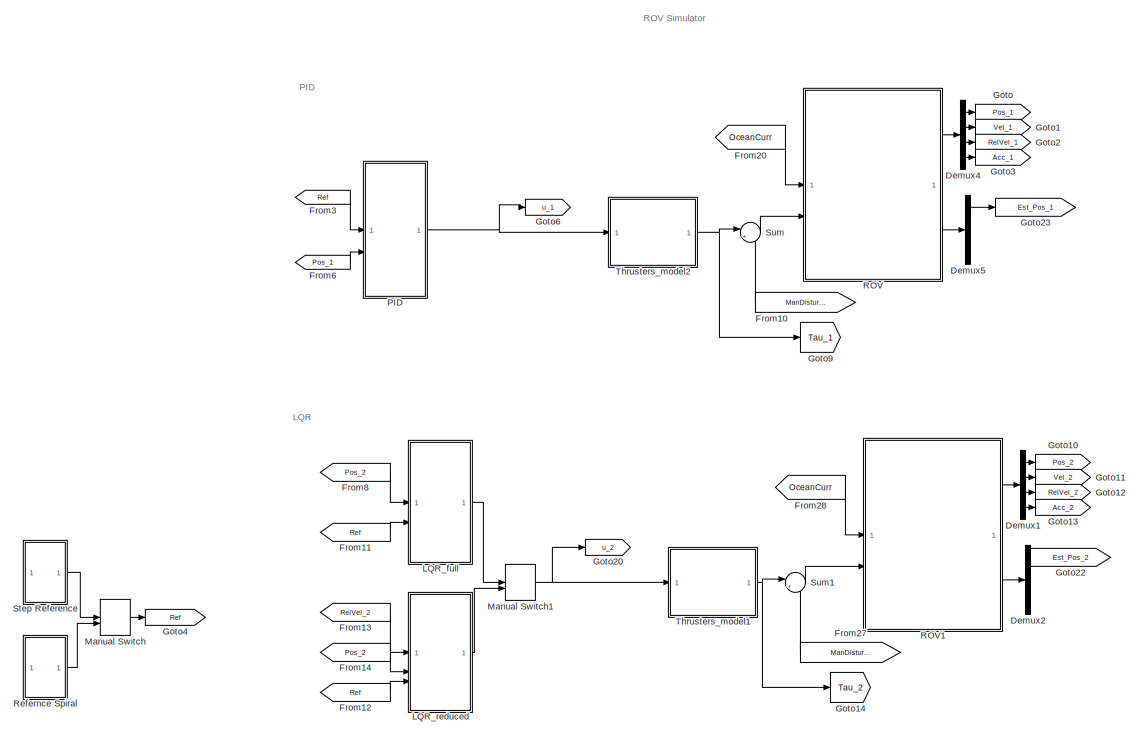
[diagram: root canvas - part 1/3, full width, top band]
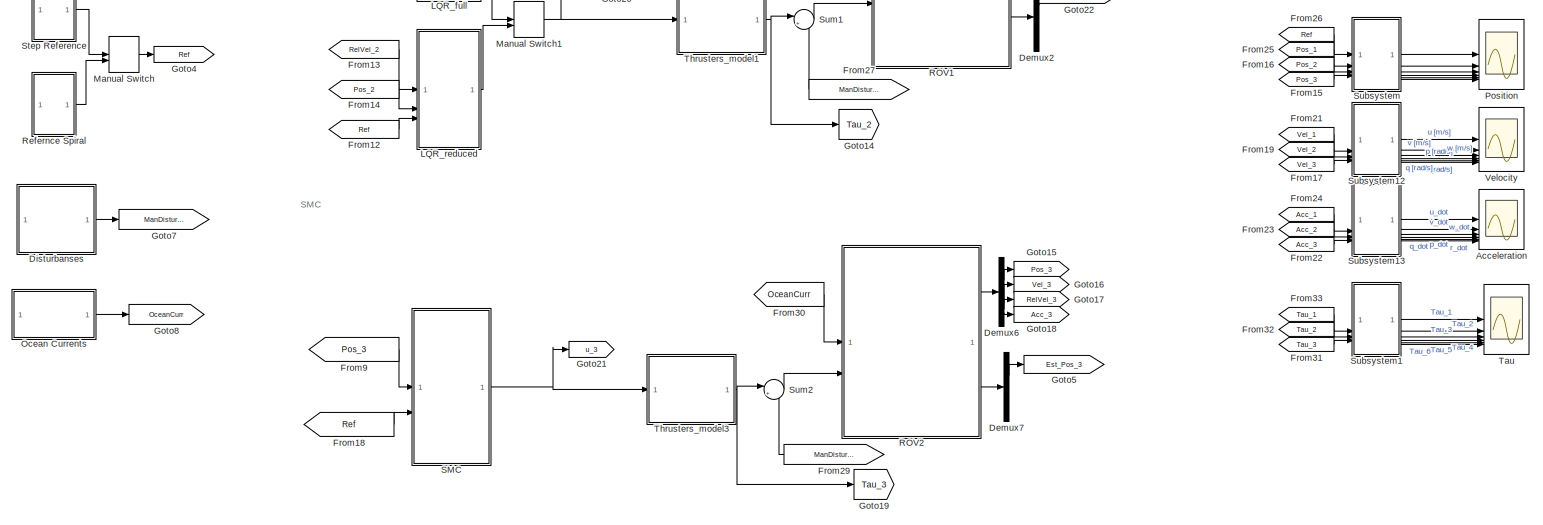
[diagram: root canvas - part 2/3, full width, middle band]
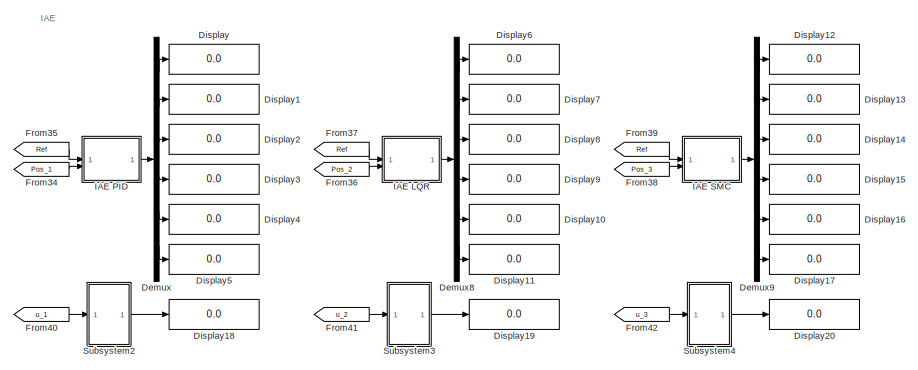
[diagram: root canvas - part 3/3, bottom center region]
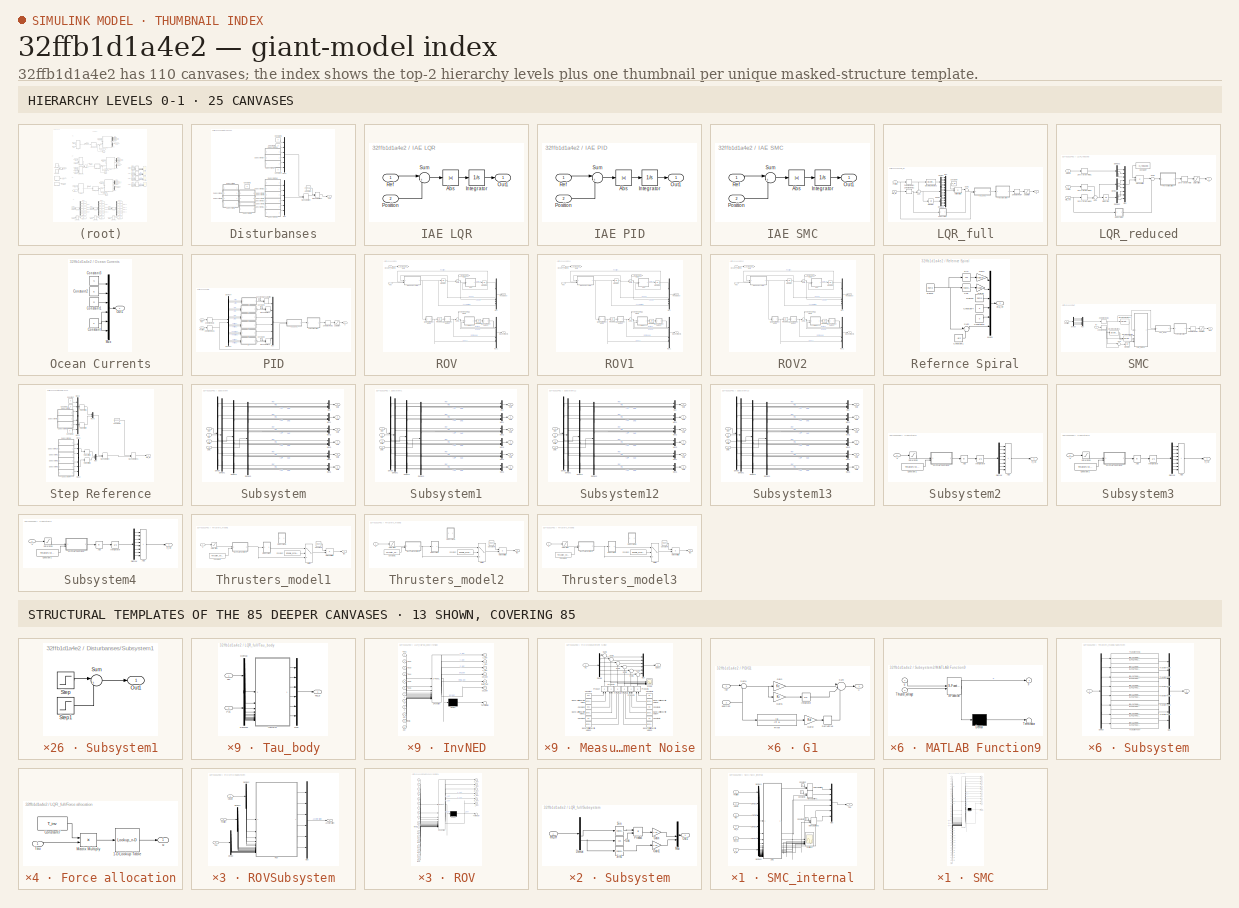
[diagram: thumbnail index - top-2 hierarchy levels (25 canvases) + 13 structural-template representatives of the remaining 85 canvases]
MODEL slx_32ffb1d1a4e2
KIND model
CONFIG AbsTol = auto
CONFIG EnableMultiTasking = off
CONFIG FixedStep = 0.0002
CONFIG MaxStep = auto
CONFIG MinStep = auto
CONFIG RelTol = 1e-3
CONFIG SampleTimeConstraint = Unconstrained
CONFIG SolverName = VariableStepAuto
CONFIG StartTime = 0.0
CONFIG StopTime = 185
BLOCK [Scope] Acceleration
  Floating = off
  NumInputPorts = 6
  ScopeSpecificationString = Simulink.scopes.TimeScopeBlockCfg('CurrentConfiguration', extmgr.ConfigurationSet(extmgr.Configuration('Core','General UI',true,'FigureColor',[1 1 1]),extmgr.Configuration('Core','Source UI',true),extmgr.Configuration('Sources','WiredSimulink',true,'DataLoggingVariableName','ScopeData4'),extmgr.Configuration('Visuals','Time Domain',true,'SerializedDisplays',{struct('MinYLimReal','-1.00000','MaxYLi...<+5667ch>
BLOCK [Demux] Demux
  Outputs = 6
BLOCK [Demux] Demux1
BLOCK [Demux] Demux2
BLOCK [Demux] Demux4
BLOCK [Demux] Demux5
BLOCK [Demux] Demux6
BLOCK [Demux] Demux7
BLOCK [Demux] Demux8
  Outputs = 6
BLOCK [Demux] Demux9
  Outputs = 6
BLOCK [Display] Display
  Decimation = 1
BLOCK [Display] Display1
  Decimation = 1
BLOCK [Display] Display10
  Decimation = 1
BLOCK [Display] Display11
  Decimation = 1
BLOCK [Display] Display12
  Decimation = 1
BLOCK [Display] Display13
  Decimation = 1
BLOCK [Display] Display14
  Decimation = 1
BLOCK [Display] Display15
  Decimation = 1
BLOCK [Display] Display16
  Decimation = 1
BLOCK [Display] Display17
  Decimation = 1
BLOCK [Display] Display18
  Decimation = 1
BLOCK [Display] Display19
  Decimation = 1
BLOCK [Display] Display2
  Decimation = 1
BLOCK [Display] Display20
  Decimation = 1
BLOCK [Display] Display3
  Decimation = 1
BLOCK [Display] Display4
  Decimation = 1
BLOCK [Display] Display5
  Decimation = 1
BLOCK [Display] Display6
  Decimation = 1
BLOCK [Display] Display7
  Decimation = 1
BLOCK [Display] Display8
  Decimation = 1
BLOCK [Display] Display9
  Decimation = 1
BLOCK [SubSystem] Disturbanses
BLOCK [Constant] Disturbanses/Constant
  Value = zeros(1,6)
BLOCK [Constant] Disturbanses/Constant1
  Value = 0
BLOCK [Constant] Disturbanses/Constant2
  Value = 0
BLOCK [Constant] Disturbanses/Constant3
  Value = 0
BLOCK [Constant] Disturbanses/Constant4
  Value = 0
BLOCK [ManualSwitch] Disturbanses/Manual Switch
  CurrentSetting = 0
BLOCK [ManualSwitch] Disturbanses/Manual Switch1
BLOCK [Mux] Disturbanses/Mux
  DisplayOption = bar
  Inputs = 6
BLOCK [Mux] Disturbanses/Mux1
  DisplayOption = bar
  Inputs = 6
BLOCK [Outport] Disturbanses/Out4
BLOCK [SubSystem] Disturbanses/Subsystem1
BLOCK [Outport] Disturbanses/Subsystem1/Out1
BLOCK [Step] Disturbanses/Subsystem1/Step
  After = New_val
  Before = Init_val
  SampleTime = 0
  Time = Step_time_1
BLOCK [Step] Disturbanses/Subsystem1/Step1
  After = New_val
  SampleTime = 0
  Time = Step_time_2
BLOCK [Sum] Disturbanses/Subsystem1/Sum
  Inputs = |+-
BLOCK [SubSystem] Disturbanses/Subsystem10
BLOCK [Outport] Disturbanses/Subsystem10/Out1
BLOCK [Step] Disturbanses/Subsystem10/Step
  After = New_val
  Before = Init_val
  SampleTime = 0
  Time = Step_time_1
BLOCK [Step] Disturbanses/Subsystem10/Step1
  After = New_val
  SampleTime = 0
  Time = Step_time_2
BLOCK [Sum] Disturbanses/Subsystem10/Sum
  Inputs = |+-
BLOCK [SubSystem] Disturbanses/Subsystem11
BLOCK [Outport] Disturbanses/Subsystem11/Out1
BLOCK [Step] Disturbanses/Subsystem11/Step
  After = New_val
  Before = Init_val
  SampleTime = 0
  Time = Step_time_1
BLOCK [Step] Disturbanses/Subsystem11/Step1
  After = New_val
  SampleTime = 0
  Time = Step_time_2
BLOCK [Sum] Disturbanses/Subsystem11/Sum
  Inputs = |+-
BLOCK [SubSystem] Disturbanses/Subsystem12
BLOCK [Outport] Disturbanses/Subsystem12/Out1
BLOCK [Step] Disturbanses/Subsystem12/Step
  After = New_val
  Before = Init_val
  SampleTime = 0
  Time = Step_time_1
BLOCK [Step] Disturbanses/Subsystem12/Step1
  After = New_val
  SampleTime = 0
  Time = Step_time_2
BLOCK [Sum] Disturbanses/Subsystem12/Sum
  Inputs = |+-
BLOCK [SubSystem] Disturbanses/Subsystem13
BLOCK [Outport] Disturbanses/Subsystem13/Out1
BLOCK [Step] Disturbanses/Subsystem13/Step
  After = New_val
  Before = Init_val
  SampleTime = 0
  Time = Step_time_1
BLOCK [Step] Disturbanses/Subsystem13/Step1
  After = New_val
  SampleTime = 0
  Time = Step_time_2
BLOCK [Sum] Disturbanses/Subsystem13/Sum
  Inputs = |+-
BLOCK [SubSystem] Disturbanses/Subsystem14
BLOCK [Outport] Disturbanses/Subsystem14/Out1
BLOCK [Step] Disturbanses/Subsystem14/Step
  After = New_val
  Before = Init_val
  SampleTime = 0
  Time = Step_time_1
BLOCK [Step] Disturbanses/Subsystem14/Step1
  After = New_val
  SampleTime = 0
  Time = Step_time_2
BLOCK [Sum] Disturbanses/Subsystem14/Sum
  Inputs = |+-
BLOCK [SubSystem] Disturbanses/Subsystem15
BLOCK [Outport] Disturbanses/Subsystem15/Out1
BLOCK [Step] Disturbanses/Subsystem15/Step
  After = New_val
  Before = Init_val
  SampleTime = 0
  Time = Step_time_1
BLOCK [Step] Disturbanses/Subsystem15/Step1
  After = New_val
  SampleTime = 0
  Time = Step_time_2
BLOCK [Sum] Disturbanses/Subsystem15/Sum
  Inputs = |+-
BLOCK [SubSystem] Disturbanses/Subsystem16
BLOCK [Outport] Disturbanses/Subsystem16/Out1
BLOCK [Step] Disturbanses/Subsystem16/Step
  After = New_val
  Before = Init_val
  SampleTime = 0
  Time = Step_time_1
BLOCK [Step] Disturbanses/Subsystem16/Step1
  After = New_val
  SampleTime = 0
  Time = Step_time_2
BLOCK [Sum] Disturbanses/Subsystem16/Sum
  Inputs = |+-
BLOCK [SubSystem] Disturbanses/Subsystem17
BLOCK [Outport] Disturbanses/Subsystem17/Out1
BLOCK [Step] Disturbanses/Subsystem17/Step
  After = New_val
  Before = Init_val
  SampleTime = 0
  Time = Step_time_1
BLOCK [Step] Disturbanses/Subsystem17/Step1
  After = New_val
  SampleTime = 0
  Time = Step_time_2
BLOCK [Sum] Disturbanses/Subsystem17/Sum
  Inputs = |+-
BLOCK [SubSystem] Disturbanses/Subsystem2
BLOCK [Outport] Disturbanses/Subsystem2/Out1
BLOCK [Step] Disturbanses/Subsystem2/Step
  After = New_val
  Before = Init_val
  SampleTime = 0
  Time = Step_time_1
BLOCK [Step] Disturbanses/Subsystem2/Step1
  After = New_val
  SampleTime = 0
  Time = Step_time_2
BLOCK [Sum] Disturbanses/Subsystem2/Sum
  Inputs = |+-
BLOCK [SubSystem] Disturbanses/Subsystem3
BLOCK [Outport] Disturbanses/Subsystem3/Out1
BLOCK [Step] Disturbanses/Subsystem3/Step
  After = New_val
  Before = Init_val
  SampleTime = 0
  Time = Step_time_1
BLOCK [Step] Disturbanses/Subsystem3/Step1
  After = New_val
  SampleTime = 0
  Time = Step_time_2
BLOCK [Sum] Disturbanses/Subsystem3/Sum
  Inputs = |+-
BLOCK [SubSystem] Disturbanses/Subsystem4
BLOCK [Outport] Disturbanses/Subsystem4/Out1
BLOCK [Step] Disturbanses/Subsystem4/Step
  After = New_val
  Before = Init_val
  SampleTime = 0
  Time = Step_time_1
BLOCK [Step] Disturbanses/Subsystem4/Step1
  After = New_val
  SampleTime = 0
  Time = Step_time_2
BLOCK [Sum] Disturbanses/Subsystem4/Sum
  Inputs = |+-
BLOCK [SubSystem] Disturbanses/Subsystem5
BLOCK [Outport] Disturbanses/Subsystem5/Out1
BLOCK [Step] Disturbanses/Subsystem5/Step
  After = New_val
  Before = Init_val
  SampleTime = 0
  Time = Step_time_1
BLOCK [Step] Disturbanses/Subsystem5/Step1
  After = New_val
  SampleTime = 0
  Time = Step_time_2
BLOCK [Sum] Disturbanses/Subsystem5/Sum
  Inputs = |+-
BLOCK [SubSystem] Disturbanses/Subsystem6
BLOCK [Outport] Disturbanses/Subsystem6/Out1
BLOCK [Step] Disturbanses/Subsystem6/Step
  After = New_val
  Before = Init_val
  SampleTime = 0
  Time = Step_time_1
BLOCK [Step] Disturbanses/Subsystem6/Step1
  After = New_val
  SampleTime = 0
  Time = Step_time_2
BLOCK [Sum] Disturbanses/Subsystem6/Sum
  Inputs = |+-
BLOCK [SubSystem] Disturbanses/Subsystem7
BLOCK [Outport] Disturbanses/Subsystem7/Out1
BLOCK [Step] Disturbanses/Subsystem7/Step
  After = New_val
  Before = Init_val
  SampleTime = 0
  Time = Step_time_1
BLOCK [Step] Disturbanses/Subsystem7/Step1
  After = New_val
  SampleTime = 0
  Time = Step_time_2
BLOCK [Sum] Disturbanses/Subsystem7/Sum
  Inputs = |+-
BLOCK [SubSystem] Disturbanses/Subsystem8
BLOCK [Outport] Disturbanses/Subsystem8/Out1
BLOCK [Step] Disturbanses/Subsystem8/Step
  After = New_val
  Before = Init_val
  SampleTime = 0
  Time = Step_time_1
BLOCK [Step] Disturbanses/Subsystem8/Step1
  After = New_val
  SampleTime = 0
  Time = Step_time_2
BLOCK [Sum] Disturbanses/Subsystem8/Sum
  Inputs = |+-
BLOCK [SubSystem] Disturbanses/Subsystem9
BLOCK [Outport] Disturbanses/Subsystem9/Out1
BLOCK [Step] Disturbanses/Subsystem9/Step
  After = New_val
  Before = Init_val
  SampleTime = 0
  Time = Step_time_1
BLOCK [Step] Disturbanses/Subsystem9/Step1
  After = New_val
  SampleTime = 0
  Time = Step_time_2
BLOCK [Sum] Disturbanses/Subsystem9/Sum
  Inputs = |+-
BLOCK [From] From10
  GotoTag = ManDisturbances
  NameLocation = top
BLOCK [From] From11
  GotoTag = Ref
BLOCK [From] From12
  GotoTag = Ref
BLOCK [From] From13
  GotoTag = RelVel_2
BLOCK [From] From14
  GotoTag = Pos_2
BLOCK [From] From15
  GotoTag = Pos_3
BLOCK [From] From16
  GotoTag = Pos_2
BLOCK [From] From17
  GotoTag = Vel_3
BLOCK [From] From18
  GotoTag = Ref
BLOCK [From] From19
  GotoTag = Vel_2
BLOCK [From] From20
  GotoTag = OceanCurr
BLOCK [From] From21
  GotoTag = Vel_1
BLOCK [From] From22
  GotoTag = Acc_3
BLOCK [From] From23
  GotoTag = Acc_2
BLOCK [From] From24
  GotoTag = Acc_1
BLOCK [From] From25
  GotoTag = Pos_1
BLOCK [From] From26
  GotoTag = Ref
BLOCK [From] From27
  GotoTag = ManDisturbances
  NameLocation = top
BLOCK [From] From28
  GotoTag = OceanCurr
BLOCK [From] From29
  GotoTag = ManDisturbances
  NameLocation = top
BLOCK [From] From3
  GotoTag = Ref
BLOCK [From] From30
  GotoTag = OceanCurr
BLOCK [From] From31
  GotoTag = Tau_3
BLOCK [From] From32
  GotoTag = Tau_2
BLOCK [From] From33
  GotoTag = Tau_1
BLOCK [From] From34
  GotoTag = Pos_1
BLOCK [From] From35
  GotoTag = Ref
BLOCK [From] From36
  GotoTag = Pos_2
BLOCK [From] From37
  GotoTag = Ref
BLOCK [From] From38
  GotoTag = Pos_3
BLOCK [From] From39
  GotoTag = Ref
BLOCK [From] From40
  GotoTag = u_1
BLOCK [From] From41
  GotoTag = u_2
BLOCK [From] From42
  GotoTag = u_3
BLOCK [From] From6
  GotoTag = Pos_1
BLOCK [From] From8
  GotoTag = Pos_2
BLOCK [From] From9
  GotoTag = Pos_3
BLOCK [Goto] Goto
  GotoTag = Pos_1
BLOCK [Goto] Goto1
  GotoTag = Vel_1
BLOCK [Goto] Goto10
  GotoTag = Pos_2
BLOCK [Goto] Goto11
  GotoTag = Vel_2
BLOCK [Goto] Goto12
  GotoTag = RelVel_2
BLOCK [Goto] Goto13
  GotoTag = Acc_2
BLOCK [Goto] Goto14
  GotoTag = Tau_2
BLOCK [Goto] Goto15
  GotoTag = Pos_3
BLOCK [Goto] Goto16
  GotoTag = Vel_3
BLOCK [Goto] Goto17
  GotoTag = RelVel_3
BLOCK [Goto] Goto18
  GotoTag = Acc_3
BLOCK [Goto] Goto19
  GotoTag = Tau_3
BLOCK [Goto] Goto2
  GotoTag = RelVel_1
BLOCK [Goto] Goto20
  GotoTag = u_2
BLOCK [Goto] Goto21
  GotoTag = u_3
BLOCK [Goto] Goto22
  GotoTag = Est_Pos_2
BLOCK [Goto] Goto23
  GotoTag = Est_Pos_1
BLOCK [Goto] Goto3
  GotoTag = Acc_1
BLOCK [Goto] Goto4
  GotoTag = Ref
BLOCK [Goto] Goto5
  GotoTag = Est_Pos_3
BLOCK [Goto] Goto6
  GotoTag = u_1
BLOCK [Goto] Goto7
  GotoTag = ManDisturbances
BLOCK [Goto] Goto8
  GotoTag = OceanCurr
BLOCK [Goto] Goto9
  GotoTag = Tau_1
BLOCK [SubSystem] IAE LQR
BLOCK [Abs] IAE LQR/Abs
  SaturateOnIntegerOverflow = off
BLOCK [Integrator] IAE LQR/Integrator
BLOCK [Outport] IAE LQR/Out1
BLOCK [Inport] IAE LQR/Position
  Port = 2
BLOCK [Inport] IAE LQR/Ref
BLOCK [Sum] IAE LQR/Sum
  Inputs = |+-
BLOCK [SubSystem] IAE PID
BLOCK [Abs] IAE PID/Abs
  SaturateOnIntegerOverflow = off
BLOCK [Integrator] IAE PID/Integrator
BLOCK [Outport] IAE PID/Out1
BLOCK [Inport] IAE PID/Position
  Port = 2
BLOCK [Inport] IAE PID/Ref
BLOCK [Sum] IAE PID/Sum
  Inputs = |+-
BLOCK [SubSystem] IAE SMC
BLOCK [Abs] IAE SMC/Abs
  SaturateOnIntegerOverflow = off
BLOCK [Integrator] IAE SMC/Integrator
BLOCK [Outport] IAE SMC/Out1
BLOCK [Inport] IAE SMC/Position
  Port = 2
BLOCK [Inport] IAE SMC/Ref
BLOCK [Sum] IAE SMC/Sum
  Inputs = |+-
BLOCK [SubSystem] LQR_full
BLOCK [Constant] LQR_full/Constant7
  NameLocation = top
  Value = -K_full
BLOCK [Demux] LQR_full/Demux
  Outputs = 6
BLOCK [Demux] LQR_full/Demux1
  Outputs = 6
BLOCK [Demux] LQR_full/Demux2
  Outputs = 6
BLOCK [Reference] LQR_full/Discrete Derivative2  REF=simulink/Discrete/Discrete Derivative
  SourceBlock = simulink/Discrete/Discrete Derivative
  SourceType = Discrete Derivative
BLOCK [SubSystem] LQR_full/Force allocation
BLOCK [Lookup_n-D] LQR_full/Force allocation/1-D Lookup Table
  BreakpointsForDimension1 = polyval(p,[-1:0.1:1])
  InputPortMap = u0
  InternalRulePriority = Speed
  NumberOfTableDimensions = 1
  RndMeth = Simplest
  Table = [-1:0.1:1]
BLOCK [Constant] LQR_full/Force allocation/Constant7
  Value = T_inv
BLOCK [Product] LQR_full/Force allocation/Matrix Multiply
  Multiplication = Matrix(*)
BLOCK [Inport] LQR_full/Force allocation/Tau
BLOCK [Outport] LQR_full/Force allocation/u
BLOCK [Integrator] LQR_full/Integrator
BLOCK [Product] LQR_full/Matrix Multiply
  Multiplication = Matrix(*)
BLOCK [Mux] LQR_full/Mux
  DisplayOption = bar
  Inputs = 18
BLOCK [Inport] LQR_full/Position
  PortDimensions = 6
BLOCK [Saturate] LQR_full/Saturation
  LowerLimit = -1
  UpperLimit = 1
BLOCK [SubSystem] LQR_full/Subsystem
BLOCK [Trigonometry] LQR_full/Subsystem/Cos
  Operator = cos
BLOCK [Demux] LQR_full/Subsystem/Demux
  Outputs = 6
BLOCK [Gain] LQR_full/Subsystem/Gain
  Gain = 1.32
BLOCK [Gain] LQR_full/Subsystem/Gain1
  Gain = 1.32
BLOCK [Mux] LQR_full/Subsystem/Mux
  DisplayOption = bar
  Inputs = 6
BLOCK [Outport] LQR_full/Subsystem/Out1
BLOCK [Product] LQR_full/Subsystem/Product
BLOCK [Trigonometry] LQR_full/Subsystem/Sin
BLOCK [Trigonometry] LQR_full/Subsystem/Sin1
BLOCK [Inport] LQR_full/Subsystem/eta_ref
BLOCK [Sum] LQR_full/Sum
  Inputs = +-|
BLOCK [Sum] LQR_full/Sum1
  Inputs = |++
BLOCK [SubSystem] LQR_full/Tau_body
BLOCK [Demux] LQR_full/Tau_body/Demux
  Outputs = 6
BLOCK [Demux] LQR_full/Tau_body/Demux1
  Outputs = 6
BLOCK [SubSystem] LQR_full/Tau_body/InvNED
  ErrorFcn = Stateflow.Translate.translate
  PermitHierarchicalResolution = ExplicitOnly
  SFBlockType = MATLAB Function
  TreatAsAtomicUnit = on
BLOCK [Demux] LQR_full/Tau_body/InvNED/ Demux 
  Outputs = 1
BLOCK [S-Function] LQR_full/Tau_body/InvNED/ SFunction 
  EnableBusSupport = on
  FunctionName = sf_sfun
  PortCounts = [12 7]
  SFcnIsStateOwnerBlock = off
  SFunctionDeploymentMode = off
  Tag = Stateflow S-Function 6
BLOCK [Terminator] LQR_full/Tau_body/InvNED/ Terminator 
BLOCK [Inport] LQR_full/Tau_body/InvNED/Tau1
BLOCK [Inport] LQR_full/Tau_body/InvNED/Tau2
  Port = 2
BLOCK [Inport] LQR_full/Tau_body/InvNED/Tau3
  Port = 3
BLOCK [Inport] LQR_full/Tau_body/InvNED/Tau4
  Port = 4
BLOCK [Inport] LQR_full/Tau_body/InvNED/Tau5
  Port = 5
BLOCK [Inport] LQR_full/Tau_body/InvNED/Tau6
  Port = 6
BLOCK [Inport] LQR_full/Tau_body/InvNED/phi
  Port = 10
BLOCK [Outport] LQR_full/Tau_body/InvNED/phi_dot
  Port = 4
BLOCK [Inport] LQR_full/Tau_body/InvNED/pzi
  Port = 12
BLOCK [Outport] LQR_full/Tau_body/InvNED/pzi_dot
  Port = 6
BLOCK [Inport] LQR_full/Tau_body/InvNED/theta
  Port = 11
BLOCK [Outport] LQR_full/Tau_body/InvNED/theta_dot
  Port = 5
BLOCK [Inport] LQR_full/Tau_body/InvNED/x
  Port = 7
BLOCK [Outport] LQR_full/Tau_body/InvNED/x_dot
BLOCK [Inport] LQR_full/Tau_body/InvNED/y
  Port = 8
BLOCK [Outport] LQR_full/Tau_body/InvNED/y_dot
  Port = 2
BLOCK [Inport] LQR_full/Tau_body/InvNED/z
  Port = 9
BLOCK [Outport] LQR_full/Tau_body/InvNED/z_dot
  Port = 3
BLOCK [Mux] LQR_full/Tau_body/Mux
  DisplayOption = bar
  Inputs = 6
BLOCK [Inport] LQR_full/Tau_body/Pos
  Port = 2
BLOCK [Inport] LQR_full/Tau_body/Tau
BLOCK [Outport] LQR_full/Tau_body/Tau_b
BLOCK [ZeroOrderHold] LQR_full/Zero-Order Hold1
  SampleTime = 1/20
BLOCK [ZeroOrderHold] LQR_full/Zero-Order Hold2
  SampleTime = 1/20
BLOCK [ZeroOrderHold] LQR_full/Zero-Order Hold4
  SampleTime = 1/20
BLOCK [Inport] LQR_full/eta_ref
  Port = 2
  PortDimensions = 6
BLOCK [Outport] LQR_full/u
BLOCK [SubSystem] LQR_reduced
BLOCK [Constant] LQR_reduced/Constant7
  NameLocation = top
  Value = -K_reduced
BLOCK [Demux] LQR_reduced/Demux1
  Outputs = 6
BLOCK [Demux] LQR_reduced/Demux2
  Outputs = 6
BLOCK [Demux] LQR_reduced/Demux3
  Outputs = 6
BLOCK [SubSystem] LQR_reduced/Force allocation
BLOCK [Lookup_n-D] LQR_reduced/Force allocation/1-D Lookup Table
  BreakpointsForDimension1 = polyval(p,[-1:0.1:1])
  InputPortMap = u0
  InternalRulePriority = Speed
  NumberOfTableDimensions = 1
  RndMeth = Simplest
  Table = [-1:0.1:1]
BLOCK [Constant] LQR_reduced/Force allocation/Constant7
  Value = T_inv
BLOCK [Product] LQR_reduced/Force allocation/Matrix Multiply
  Multiplication = Matrix(*)
BLOCK [Inport] LQR_reduced/Force allocation/Tau
BLOCK [Outport] LQR_reduced/Force allocation/u
BLOCK [Integrator] LQR_reduced/Integrator
BLOCK [Product] LQR_reduced/Matrix Multiply
  Multiplication = Matrix(*)
BLOCK [Mux] LQR_reduced/Mux
  DisplayOption = bar
  Inputs = 9
BLOCK [Inport] LQR_reduced/Position
  Port = 2
  PortDimensions = 6
BLOCK [Saturate] LQR_reduced/Saturation
  LowerLimit = -1
  UpperLimit = 1
BLOCK [SubSystem] LQR_reduced/Subsystem
BLOCK [Trigonometry] LQR_reduced/Subsystem/Cos
  Operator = cos
BLOCK [Demux] LQR_reduced/Subsystem/Demux
  Outputs = 6
BLOCK [Gain] LQR_reduced/Subsystem/Gain
  Gain = 1.32
BLOCK [Gain] LQR_reduced/Subsystem/Gain1
  Gain = 1.32
BLOCK [Mux] LQR_reduced/Subsystem/Mux
  DisplayOption = bar
  Inputs = 6
BLOCK [Outport] LQR_reduced/Subsystem/Out1
BLOCK [Product] LQR_reduced/Subsystem/Product
BLOCK [Trigonometry] LQR_reduced/Subsystem/Sin
BLOCK [Trigonometry] LQR_reduced/Subsystem/Sin1
BLOCK [Inport] LQR_reduced/Subsystem/eta_ref
BLOCK [Sum] LQR_reduced/Sum
  Inputs = +-|
BLOCK [Sum] LQR_reduced/Sum1
  Inputs = |++
BLOCK [Inport] LQR_reduced/Velocity
  PortDimensions = 6
BLOCK [ZeroOrderHold] LQR_reduced/Zero-Order Hold
  SampleTime = 1/20
BLOCK [ZeroOrderHold] LQR_reduced/Zero-Order Hold1
  SampleTime = 1/20
BLOCK [ZeroOrderHold] LQR_reduced/Zero-Order Hold2
  SampleTime = 1/20
BLOCK [ZeroOrderHold] LQR_reduced/Zero-Order Hold3
  SampleTime = 1/20
BLOCK [Inport] LQR_reduced/eta_ref
  Port = 3
  PortDimensions = 6
BLOCK [Outport] LQR_reduced/u
BLOCK [ManualSwitch] Manual Switch
BLOCK [ManualSwitch] Manual Switch1
BLOCK [SubSystem] Ocean Currents
BLOCK [Constant] Ocean Currents/Constant
  Value = 0
BLOCK [Constant] Ocean Currents/Constant1
  Value = D
BLOCK [Constant] Ocean Currents/Constant2
  Value = E
BLOCK [Constant] Ocean Currents/Constant3
  Value = N
BLOCK [Mux] Ocean Currents/Mux
  DisplayOption = bar
  Inputs = 6
BLOCK [Outport] Ocean Currents/Out1
BLOCK [SubSystem] PID
BLOCK [Constant] PID/Constant
  Value = 0
BLOCK [Constant] PID/Constant1
  Value = 0
BLOCK [Constant] PID/Constant2
  Value = 0
BLOCK [Demux] PID/Demux1
  Outputs = 6
BLOCK [Demux] PID/Demux4
  Outputs = 6
BLOCK [SubSystem] PID/Force allocation
BLOCK [Lookup_n-D] PID/Force allocation/1-D Lookup Table
  BreakpointsForDimension1 = polyval(p,[-1:0.1:1])
  InputPortMap = u0
  InternalRulePriority = Speed
  NumberOfTableDimensions = 1
  RndMeth = Simplest
  Table = [-1:0.1:1]
BLOCK [Constant] PID/Force allocation/Constant7
  Value = T_inv
BLOCK [Product] PID/Force allocation/Matrix Multiply
  Multiplication = Matrix(*)
BLOCK [Inport] PID/Force allocation/Tau
BLOCK [Outport] PID/Force allocation/u
BLOCK [SubSystem] PID/G1
BLOCK [Derivative] PID/G1/Derivative
BLOCK [TransferFcn] PID/G1/Filter
  Denominator = [Tf 1]
BLOCK [Gain] PID/G1/Gain
  Gain = Kc
BLOCK [Gain] PID/G1/Gain1
  Gain = Ki
BLOCK [Gain] PID/G1/Gain2
  Gain = Kd
BLOCK [Integrator] PID/G1/Integrator
  InitialCondition = Arb_pnk
  LimitOutput = on
  LowerSaturationLimit = -umax
  UpperSaturationLimit = umax
BLOCK [Sum] PID/G1/Sum
  Inputs = ||+++
BLOCK [Sum] PID/G1/Sum1
  Inputs = |+-
BLOCK [Inport] PID/G1/position
  Port = 2
BLOCK [Inport] PID/G1/ref
BLOCK [Outport] PID/G1/u
BLOCK [SubSystem] PID/G2
BLOCK [Derivative] PID/G2/Derivative
BLOCK [TransferFcn] PID/G2/Filter
  Denominator = [Tf 1]
BLOCK [Gain] PID/G2/Gain
  Gain = Kc
BLOCK [Gain] PID/G2/Gain1
  Gain = Ki
BLOCK [Gain] PID/G2/Gain2
  Gain = Kd
BLOCK [Integrator] PID/G2/Integrator
  InitialCondition = Arb_pnk
  LimitOutput = on
  LowerSaturationLimit = -umax
  UpperSaturationLimit = umax
BLOCK [Sum] PID/G2/Sum
  Inputs = ||+++
BLOCK [Sum] PID/G2/Sum1
  Inputs = |+-
BLOCK [Inport] PID/G2/position
  Port = 2
BLOCK [Inport] PID/G2/ref
BLOCK [Outport] PID/G2/u
BLOCK [SubSystem] PID/G3
BLOCK [Derivative] PID/G3/Derivative
BLOCK [TransferFcn] PID/G3/Filter
  Denominator = [Tf 1]
BLOCK [Gain] PID/G3/Gain
  Gain = Kc
BLOCK [Gain] PID/G3/Gain1
  Gain = Ki
BLOCK [Gain] PID/G3/Gain2
  Gain = Kd
BLOCK [Integrator] PID/G3/Integrator
  InitialCondition = Arb_pnk
  LimitOutput = on
  LowerSaturationLimit = -umax
  UpperSaturationLimit = umax
BLOCK [Sum] PID/G3/Sum
  Inputs = ||+++
BLOCK [Sum] PID/G3/Sum1
  Inputs = |+-
BLOCK [Inport] PID/G3/position
  Port = 2
BLOCK [Inport] PID/G3/ref
BLOCK [Outport] PID/G3/u
BLOCK [SubSystem] PID/G4
BLOCK [Derivative] PID/G4/Derivative
BLOCK [TransferFcn] PID/G4/Filter
  Denominator = [Tf 1]
BLOCK [Gain] PID/G4/Gain
  Gain = Kc
BLOCK [Gain] PID/G4/Gain1
  Gain = Ki
BLOCK [Gain] PID/G4/Gain2
  Gain = Kd
BLOCK [Integrator] PID/G4/Integrator
  InitialCondition = Arb_pnk
  LimitOutput = on
  LowerSaturationLimit = -umax
  UpperSaturationLimit = umax
BLOCK [Sum] PID/G4/Sum
  Inputs = ||+++
BLOCK [Sum] PID/G4/Sum1
  Inputs = |+-
BLOCK [Inport] PID/G4/position
  Port = 2
BLOCK [Inport] PID/G4/ref
BLOCK [Outport] PID/G4/u
BLOCK [SubSystem] PID/G5
BLOCK [Derivative] PID/G5/Derivative
BLOCK [TransferFcn] PID/G5/Filter
  Denominator = [Tf 1]
BLOCK [Gain] PID/G5/Gain
  Gain = Kc
BLOCK [Gain] PID/G5/Gain1
  Gain = Ki
BLOCK [Gain] PID/G5/Gain2
  Gain = Kd
BLOCK [Integrator] PID/G5/Integrator
  InitialCondition = Arb_pnk
  LimitOutput = on
  LowerSaturationLimit = -umax
  UpperSaturationLimit = umax
BLOCK [Sum] PID/G5/Sum
  Inputs = ||+++
BLOCK [Sum] PID/G5/Sum1
  Inputs = |+-
BLOCK [Inport] PID/G5/position
  Port = 2
BLOCK [Inport] PID/G5/ref
BLOCK [Outport] PID/G5/u
BLOCK [SubSystem] PID/G6
BLOCK [Derivative] PID/G6/Derivative
BLOCK [TransferFcn] PID/G6/Filter
  Denominator = [Tf 1]
BLOCK [Gain] PID/G6/Gain
  Gain = Kc
BLOCK [Gain] PID/G6/Gain1
  Gain = Ki
BLOCK [Gain] PID/G6/Gain2
  Gain = Kd
BLOCK [Integrator] PID/G6/Integrator
  InitialCondition = Arb_pnk
  LimitOutput = on
  LowerSaturationLimit = -umax
  UpperSaturationLimit = umax
BLOCK [Sum] PID/G6/Sum
  Inputs = ||+++
BLOCK [Sum] PID/G6/Sum1
  Inputs = |+-
BLOCK [Inport] PID/G6/position
  Port = 2
BLOCK [Inport] PID/G6/ref
BLOCK [Outport] PID/G6/u
BLOCK [ManualSwitch] PID/Manual Switch
  CurrentSetting = 0
BLOCK [ManualSwitch] PID/Manual Switch1
  CurrentSetting = 0
BLOCK [ManualSwitch] PID/Manual Switch2
  CurrentSetting = 0
BLOCK [Mux] PID/Mux
  DisplayOption = bar
  Inputs = 6
BLOCK [Inport] PID/Position
  Port = 2
BLOCK [Inport] PID/Ref
BLOCK [Saturate] PID/Saturation
  LowerLimit = -1
  UpperLimit = 1
BLOCK [SubSystem] PID/Tau_body
BLOCK [Demux] PID/Tau_body/Demux
  Outputs = 6
BLOCK [Demux] PID/Tau_body/Demux1
  Outputs = 6
BLOCK [SubSystem] PID/Tau_body/InvNED
  ErrorFcn = Stateflow.Translate.translate
  PermitHierarchicalResolution = ExplicitOnly
  SFBlockType = MATLAB Function
  TreatAsAtomicUnit = on
BLOCK [Demux] PID/Tau_body/InvNED/ Demux 
  Outputs = 1
BLOCK [S-Function] PID/Tau_body/InvNED/ SFunction 
  EnableBusSupport = on
  FunctionName = sf_sfun
  PortCounts = [12 7]
  SFcnIsStateOwnerBlock = off
  SFunctionDeploymentMode = off
  Tag = Stateflow S-Function 5
BLOCK [Terminator] PID/Tau_body/InvNED/ Terminator 
BLOCK [Inport] PID/Tau_body/InvNED/Tau1
BLOCK [Inport] PID/Tau_body/InvNED/Tau2
  Port = 2
BLOCK [Inport] PID/Tau_body/InvNED/Tau3
  Port = 3
BLOCK [Inport] PID/Tau_body/InvNED/Tau4
  Port = 4
BLOCK [Inport] PID/Tau_body/InvNED/Tau5
  Port = 5
BLOCK [Inport] PID/Tau_body/InvNED/Tau6
  Port = 6
BLOCK [Inport] PID/Tau_body/InvNED/phi
  Port = 10
BLOCK [Outport] PID/Tau_body/InvNED/phi_dot
  Port = 4
BLOCK [Inport] PID/Tau_body/InvNED/pzi
  Port = 12
BLOCK [Outport] PID/Tau_body/InvNED/pzi_dot
  Port = 6
BLOCK [Inport] PID/Tau_body/InvNED/theta
  Port = 11
BLOCK [Outport] PID/Tau_body/InvNED/theta_dot
  Port = 5
BLOCK [Inport] PID/Tau_body/InvNED/x
  Port = 7
BLOCK [Outport] PID/Tau_body/InvNED/x_dot
BLOCK [Inport] PID/Tau_body/InvNED/y
  Port = 8
BLOCK [Outport] PID/Tau_body/InvNED/y_dot
  Port = 2
BLOCK [Inport] PID/Tau_body/InvNED/z
  Port = 9
BLOCK [Outport] PID/Tau_body/InvNED/z_dot
  Port = 3
BLOCK [Mux] PID/Tau_body/Mux
  DisplayOption = bar
  Inputs = 6
BLOCK [Inport] PID/Tau_body/Pos
  Port = 2
BLOCK [Inport] PID/Tau_body/Tau
BLOCK [Outport] PID/Tau_body/Tau_b
BLOCK [ZeroOrderHold] PID/Zero-Order Hold
  SampleTime = 1/20
BLOCK [ZeroOrderHold] PID/Zero-Order Hold1
  SampleTime = 1/20
BLOCK [ZeroOrderHold] PID/Zero-Order Hold2
  SampleTime = 1/20
BLOCK [Outport] PID/u
BLOCK [Scope] Position
  Floating = off
  NumInputPorts = 6
  ScopeSpecificationString = Simulink.scopes.TimeScopeBlockCfg('CurrentConfiguration', extmgr.ConfigurationSet(extmgr.Configuration('Core','General UI',true,'FigureColor',[1 1 1]),extmgr.Configuration('Core','Source UI',true),extmgr.Configuration('Sources','WiredSimulink',true),extmgr.Configuration('Visuals','Time Domain',true,'SerializedDisplays',{struct('MinYLimReal','-0.16057','MaxYLimReal','1.16874','YLabelReal','','MinYL...<+7242ch>
BLOCK [SubSystem] ROV
BLOCK [From] ROV/From
  GotoTag = OceanCurrent
  NameLocation = top
BLOCK [From] ROV/From1
  GotoTag = OceanCurrent
  NameLocation = top
BLOCK [Goto] ROV/Goto
  GotoTag = OceanCurrent
BLOCK [Integrator] ROV/Integrator
  InitialCondition = v_init
BLOCK [Integrator] ROV/Integrator1
  InitialCondition = eta_init
BLOCK [Integrator] ROV/Integrator2
  InitialCondition = v_init
BLOCK [Integrator] ROV/Integrator3
  InitialCondition = eta_init
BLOCK [SubSystem] ROV/Measurement Noise
BLOCK [Reference] ROV/Measurement Noise/Band-Limited White Noise  REF=simulink/Sources/Band-Limited
White Noise
  SourceBlock = simulink/Sources/Band-Limited\nWhite Noise
  SourceType = Band-Limited White Noise.
BLOCK [Reference] ROV/Measurement Noise/Band-Limited White Noise1  REF=simulink/Sources/Band-Limited
White Noise
  SourceBlock = simulink/Sources/Band-Limited\nWhite Noise
  SourceType = Band-Limited White Noise.
BLOCK [Reference] ROV/Measurement Noise/Band-Limited White Noise2  REF=simulink/Sources/Band-Limited
White Noise
  SourceBlock = simulink/Sources/Band-Limited\nWhite Noise
  SourceType = Band-Limited White Noise.
BLOCK [Reference] ROV/Measurement Noise/Band-Limited White Noise3  REF=simulink/Sources/Band-Limited
White Noise
  NameLocation = top
  SourceBlock = simulink/Sources/Band-Limited\nWhite Noise
  SourceType = Band-Limited White Noise.
BLOCK [Reference] ROV/Measurement Noise/Band-Limited White Noise4  REF=simulink/Sources/Band-Limited
White Noise
  NameLocation = top
  SourceBlock = simulink/Sources/Band-Limited\nWhite Noise
  SourceType = Band-Limited White Noise.
BLOCK [Reference] ROV/Measurement Noise/Band-Limited White Noise5  REF=simulink/Sources/Band-Limited
White Noise
  NameLocation = top
  SourceBlock = simulink/Sources/Band-Limited\nWhite Noise
  SourceType = Band-Limited White Noise.
BLOCK [Constant] ROV/Measurement Noise/Constant
  Value = 0.01
BLOCK [Constant] ROV/Measurement Noise/Constant1
  Value = 0.01
BLOCK [Constant] ROV/Measurement Noise/Constant2
  Value = 0.0
BLOCK [Constant] ROV/Measurement Noise/Constant3
  NameLocation = top
  Value = 0.0
BLOCK [Constant] ROV/Measurement Noise/Constant4
  NameLocation = top
  Value = 0.0
BLOCK [Constant] ROV/Measurement Noise/Constant5
  NameLocation = top
  Value = 0.0
BLOCK [Demux] ROV/Measurement Noise/Demux
  Outputs = 6
BLOCK [Outport] ROV/Measurement Noise/EstAcc
BLOCK [Inport] ROV/Measurement Noise/In1
BLOCK [Mux] ROV/Measurement Noise/Mux
  DisplayOption = bar
  Inputs = 6
BLOCK [Product] ROV/Measurement Noise/Product
  NameLocation = right
BLOCK [Product] ROV/Measurement Noise/Product1
  NameLocation = right
BLOCK [Product] ROV/Measurement Noise/Product2
  NameLocation = right
BLOCK [Product] ROV/Measurement Noise/Product3
  NameLocation = right
BLOCK [Product] ROV/Measurement Noise/Product4
  NameLocation = right
BLOCK [Product] ROV/Measurement Noise/Product5
  NameLocation = right
BLOCK [Scope] ROV/Measurement Noise/Scope
  Floating = off
  NumInputPorts = 6
  ScopeSpecificationString = Simulink.scopes.TimeScopeBlockCfg('CurrentConfiguration', extmgr.ConfigurationSet(extmgr.Configuration('Core','General UI',true),extmgr.Configuration('Core','Source UI',true),extmgr.Configuration('Sources','WiredSimulink',true,'DataLoggingVariableName','ScopeData1'),extmgr.Configuration('Visuals','Time Domain',true,'SerializedDisplays',{struct('MinYLimReal','-0.00147','MaxYLimReal','0.00155','YLab...<+4897ch>  <repeated x3 — deduplicated; at blocks: Scope>
BLOCK [Sum] ROV/Measurement Noise/Sum2
  Inputs = |++
BLOCK [Sum] ROV/Measurement Noise/Sum3
  Inputs = |++
BLOCK [Sum] ROV/Measurement Noise/Sum4
  Inputs = |++
BLOCK [Sum] ROV/Measurement Noise/Sum5
  Inputs = |++
BLOCK [Sum] ROV/Measurement Noise/Sum6
  Inputs = |++
BLOCK [Sum] ROV/Measurement Noise/Sum7
  Inputs = |++
BLOCK [SubSystem] ROV/Measurement Noise1
BLOCK [Reference] ROV/Measurement Noise1/Band-Limited White Noise  REF=simulink/Sources/Band-Limited
White Noise
  SourceBlock = simulink/Sources/Band-Limited\nWhite Noise
  SourceType = Band-Limited White Noise.
BLOCK [Reference] ROV/Measurement Noise1/Band-Limited White Noise1  REF=simulink/Sources/Band-Limited
White Noise
  SourceBlock = simulink/Sources/Band-Limited\nWhite Noise
  SourceType = Band-Limited White Noise.
BLOCK [Reference] ROV/Measurement Noise1/Band-Limited White Noise2  REF=simulink/Sources/Band-Limited
White Noise
  SourceBlock = simulink/Sources/Band-Limited\nWhite Noise
  SourceType = Band-Limited White Noise.
BLOCK [Reference] ROV/Measurement Noise1/Band-Limited White Noise3  REF=simulink/Sources/Band-Limited
White Noise
  NameLocation = top
  SourceBlock = simulink/Sources/Band-Limited\nWhite Noise
  SourceType = Band-Limited White Noise.
BLOCK [Reference] ROV/Measurement Noise1/Band-Limited White Noise4  REF=simulink/Sources/Band-Limited
White Noise
  NameLocation = top
  SourceBlock = simulink/Sources/Band-Limited\nWhite Noise
  SourceType = Band-Limited White Noise.
BLOCK [Reference] ROV/Measurement Noise1/Band-Limited White Noise5  REF=simulink/Sources/Band-Limited
White Noise
  NameLocation = top
  SourceBlock = simulink/Sources/Band-Limited\nWhite Noise
  SourceType = Band-Limited White Noise.
BLOCK [Constant] ROV/Measurement Noise1/Constant
  Value = 0.0
BLOCK [Constant] ROV/Measurement Noise1/Constant1
  Value = 0.0
BLOCK [Constant] ROV/Measurement Noise1/Constant2
  Value = 0.0
BLOCK [Constant] ROV/Measurement Noise1/Constant3
  NameLocation = top
BLOCK [Constant] ROV/Measurement Noise1/Constant4
  NameLocation = top
BLOCK [Constant] ROV/Measurement Noise1/Constant5
  NameLocation = top
  Value = 0.0
BLOCK [Demux] ROV/Measurement Noise1/Demux
  Outputs = 6
BLOCK [Outport] ROV/Measurement Noise1/EstVelo
BLOCK [Inport] ROV/Measurement Noise1/In1
BLOCK [Mux] ROV/Measurement Noise1/Mux
  DisplayOption = bar
  Inputs = 6
BLOCK [Product] ROV/Measurement Noise1/Product
  NameLocation = right
BLOCK [Product] ROV/Measurement Noise1/Product1
  NameLocation = right
BLOCK [Product] ROV/Measurement Noise1/Product2
  NameLocation = right
BLOCK [Product] ROV/Measurement Noise1/Product3
  NameLocation = right
BLOCK [Product] ROV/Measurement Noise1/Product4
  NameLocation = right
BLOCK [Product] ROV/Measurement Noise1/Product5
  NameLocation = right
BLOCK [Scope] ROV/Measurement Noise1/Scope
  Floating = off
  NumInputPorts = 6
  ScopeSpecificationString = Simulink.scopes.TimeScopeBlockCfg('CurrentConfiguration', extmgr.ConfigurationSet(extmgr.Configuration('Core','General UI',true),extmgr.Configuration('Core','Source UI',true),extmgr.Configuration('Sources','WiredSimulink',true,'DataLoggingVariableName','ScopeData1'),extmgr.Configuration('Visuals','Time Domain',true,'SerializedDisplays',{struct('MinYLimReal','-1.00000','MaxYLimReal','1.00000','YLab...<+4895ch>  <repeated x3 — deduplicated; at blocks: Scope>
BLOCK [Sum] ROV/Measurement Noise1/Sum2
  Inputs = |++
BLOCK [Sum] ROV/Measurement Noise1/Sum3
  Inputs = |++
BLOCK [Sum] ROV/Measurement Noise1/Sum4
  Inputs = |++
BLOCK [Sum] ROV/Measurement Noise1/Sum5
  Inputs = |++
BLOCK [Sum] ROV/Measurement Noise1/Sum6
  Inputs = |++
BLOCK [Sum] ROV/Measurement Noise1/Sum7
  Inputs = |++
BLOCK [SubSystem] ROV/Measurement Noise2
BLOCK [Reference] ROV/Measurement Noise2/Band-Limited White Noise  REF=simulink/Sources/Band-Limited
White Noise
  SourceBlock = simulink/Sources/Band-Limited\nWhite Noise
  SourceType = Band-Limited White Noise.
BLOCK [Reference] ROV/Measurement Noise2/Band-Limited White Noise1  REF=simulink/Sources/Band-Limited
White Noise
  SourceBlock = simulink/Sources/Band-Limited\nWhite Noise
  SourceType = Band-Limited White Noise.
BLOCK [Reference] ROV/Measurement Noise2/Band-Limited White Noise2  REF=simulink/Sources/Band-Limited
White Noise
  SourceBlock = simulink/Sources/Band-Limited\nWhite Noise
  SourceType = Band-Limited White Noise.
BLOCK [Reference] ROV/Measurement Noise2/Band-Limited White Noise3  REF=simulink/Sources/Band-Limited
White Noise
  NameLocation = top
  SourceBlock = simulink/Sources/Band-Limited\nWhite Noise
  SourceType = Band-Limited White Noise.
BLOCK [Reference] ROV/Measurement Noise2/Band-Limited White Noise4  REF=simulink/Sources/Band-Limited
White Noise
  NameLocation = top
  SourceBlock = simulink/Sources/Band-Limited\nWhite Noise
  SourceType = Band-Limited White Noise.
BLOCK [Reference] ROV/Measurement Noise2/Band-Limited White Noise5  REF=simulink/Sources/Band-Limited
White Noise
  NameLocation = top
  SourceBlock = simulink/Sources/Band-Limited\nWhite Noise
  SourceType = Band-Limited White Noise.
BLOCK [Constant] ROV/Measurement Noise2/Constant
  Value = 0.0
BLOCK [Constant] ROV/Measurement Noise2/Constant1
  Value = 0.0
BLOCK [Constant] ROV/Measurement Noise2/Constant2
BLOCK [Constant] ROV/Measurement Noise2/Constant3
  NameLocation = top
  Value = 0.0
BLOCK [Constant] ROV/Measurement Noise2/Constant4
  NameLocation = top
  Value = 0.0
BLOCK [Constant] ROV/Measurement Noise2/Constant5
  NameLocation = top
  Value = 0.1
BLOCK [Demux] ROV/Measurement Noise2/Demux
  Outputs = 6
BLOCK [Outport] ROV/Measurement Noise2/EstPos
BLOCK [Inport] ROV/Measurement Noise2/In1
BLOCK [Mux] ROV/Measurement Noise2/Mux
  DisplayOption = bar
  Inputs = 6
BLOCK [Product] ROV/Measurement Noise2/Product
  NameLocation = right
BLOCK [Product] ROV/Measurement Noise2/Product1
  NameLocation = right
BLOCK [Product] ROV/Measurement Noise2/Product2
  NameLocation = right
BLOCK [Product] ROV/Measurement Noise2/Product3
  NameLocation = right
BLOCK [Product] ROV/Measurement Noise2/Product4
  NameLocation = right
BLOCK [Product] ROV/Measurement Noise2/Product5
  NameLocation = right
BLOCK [Scope] ROV/Measurement Noise2/Scope
  Floating = off
  NumInputPorts = 6
  ScopeSpecificationString = Simulink.scopes.TimeScopeBlockCfg('CurrentConfiguration', extmgr.ConfigurationSet(extmgr.Configuration('Core','General UI',true),extmgr.Configuration('Core','Source UI',true),extmgr.Configuration('Sources','WiredSimulink',true,'DataLoggingVariableName','ScopeData1'),extmgr.Configuration('Visuals','Time Domain',true,'SerializedDisplays',{struct('MinYLimReal','-0.00147','MaxYLimReal','0.00155','YLab...<+4896ch>  <repeated x3 — deduplicated; at blocks: Scope>
BLOCK [Sum] ROV/Measurement Noise2/Sum2
  Inputs = |++
BLOCK [Sum] ROV/Measurement Noise2/Sum3
  Inputs = |++
BLOCK [Sum] ROV/Measurement Noise2/Sum4
  Inputs = |++
BLOCK [Sum] ROV/Measurement Noise2/Sum5
  Inputs = |++
BLOCK [Sum] ROV/Measurement Noise2/Sum6
  Inputs = |++
BLOCK [Sum] ROV/Measurement Noise2/Sum7
  Inputs = |++
BLOCK [Outport] ROV/Measurments
  Port = 2
BLOCK [Mux] ROV/Mux
  DisplayOption = bar
BLOCK [Mux] ROV/Mux1
  DisplayOption = bar
BLOCK [SubSystem] ROV/NED
BLOCK [Demux] ROV/NED/Demux
  Outputs = 6
BLOCK [Demux] ROV/NED/Demux1
  Outputs = 6
BLOCK [Mux] ROV/NED/Mux
  DisplayOption = bar
  Inputs = 6
BLOCK [Outport] ROV/NED/Velocity_NED
BLOCK [SubSystem] ROV/NED/calcNED
  ErrorFcn = Stateflow.Translate.translate
  PermitHierarchicalResolution = ExplicitOnly
  SFBlockType = MATLAB Function
  TreatAsAtomicUnit = on
BLOCK [Demux] ROV/NED/calcNED/ Demux 
  Outputs = 1
BLOCK [S-Function] ROV/NED/calcNED/ SFunction 
  EnableBusSupport = on
  FunctionName = sf_sfun
  PortCounts = [12 7]
  SFcnIsStateOwnerBlock = off
  SFunctionDeploymentMode = off
  Tag = Stateflow S-Function 1
BLOCK [Terminator] ROV/NED/calcNED/ Terminator 
BLOCK [Inport] ROV/NED/calcNED/p
  Port = 4
BLOCK [Inport] ROV/NED/calcNED/phi
  Port = 10
BLOCK [Outport] ROV/NED/calcNED/phi_dot
  Port = 4
BLOCK [Inport] ROV/NED/calcNED/pzi
  Port = 12
BLOCK [Outport] ROV/NED/calcNED/pzi_dot
  Port = 6
BLOCK [Inport] ROV/NED/calcNED/q
  Port = 5
BLOCK [Inport] ROV/NED/calcNED/r
  Port = 6
BLOCK [Inport] ROV/NED/calcNED/theta
  Port = 11
BLOCK [Outport] ROV/NED/calcNED/theta_dot
  Port = 5
BLOCK [Inport] ROV/NED/calcNED/u
BLOCK [Inport] ROV/NED/calcNED/v
  Port = 2
BLOCK [Inport] ROV/NED/calcNED/w
  Port = 3
BLOCK [Inport] ROV/NED/calcNED/x
  Port = 7
BLOCK [Outport] ROV/NED/calcNED/x_dot
BLOCK [Inport] ROV/NED/calcNED/y
  Port = 8
BLOCK [Outport] ROV/NED/calcNED/y_dot
  Port = 2
BLOCK [Inport] ROV/NED/calcNED/z
  Port = 9
BLOCK [Outport] ROV/NED/calcNED/z_dot
  Port = 3
BLOCK [Inport] ROV/NED/position_NED
  Port = 2
BLOCK [Inport] ROV/NED/velocity
BLOCK [SubSystem] ROV/NED1
BLOCK [Demux] ROV/NED1/Demux
  Outputs = 6
BLOCK [Demux] ROV/NED1/Demux1
  Outputs = 6
BLOCK [Mux] ROV/NED1/Mux
  DisplayOption = bar
  Inputs = 6
BLOCK [Outport] ROV/NED1/Velocity_NED
BLOCK [SubSystem] ROV/NED1/calcNED
  ErrorFcn = Stateflow.Translate.translate
  PermitHierarchicalResolution = ExplicitOnly
  SFBlockType = MATLAB Function
  TreatAsAtomicUnit = on
BLOCK [Demux] ROV/NED1/calcNED/ Demux 
  Outputs = 1
BLOCK [S-Function] ROV/NED1/calcNED/ SFunction 
  EnableBusSupport = on
  FunctionName = sf_sfun
  PortCounts = [12 7]
  SFcnIsStateOwnerBlock = off
  SFunctionDeploymentMode = off
  Tag = Stateflow S-Function 3
BLOCK [Terminator] ROV/NED1/calcNED/ Terminator 
BLOCK [Inport] ROV/NED1/calcNED/p
  Port = 4
BLOCK [Inport] ROV/NED1/calcNED/phi
  Port = 10
BLOCK [Outport] ROV/NED1/calcNED/phi_dot
  Port = 4
BLOCK [Inport] ROV/NED1/calcNED/pzi
  Port = 12
BLOCK [Outport] ROV/NED1/calcNED/pzi_dot
  Port = 6
BLOCK [Inport] ROV/NED1/calcNED/q
  Port = 5
BLOCK [Inport] ROV/NED1/calcNED/r
  Port = 6
BLOCK [Inport] ROV/NED1/calcNED/theta
  Port = 11
BLOCK [Outport] ROV/NED1/calcNED/theta_dot
  Port = 5
BLOCK [Inport] ROV/NED1/calcNED/u
BLOCK [Inport] ROV/NED1/calcNED/v
  Port = 2
BLOCK [Inport] ROV/NED1/calcNED/w
  Port = 3
BLOCK [Inport] ROV/NED1/calcNED/x
  Port = 7
BLOCK [Outport] ROV/NED1/calcNED/x_dot
BLOCK [Inport] ROV/NED1/calcNED/y
  Port = 8
BLOCK [Outport] ROV/NED1/calcNED/y_dot
  Port = 2
BLOCK [Inport] ROV/NED1/calcNED/z
  Port = 9
BLOCK [Outport] ROV/NED1/calcNED/z_dot
  Port = 3
BLOCK [Inport] ROV/NED1/position_NED
  Port = 2
BLOCK [Inport] ROV/NED1/velocity
BLOCK [Inport] ROV/Ocean_currents
BLOCK [SubSystem] ROV/ROVSubsystem
BLOCK [Outport] ROV/ROVSubsystem/Acceleration
BLOCK [Demux] ROV/ROVSubsystem/Demux
  Outputs = 6
BLOCK [Demux] ROV/ROVSubsystem/Demux1
  Outputs = 6
BLOCK [Demux] ROV/ROVSubsystem/Demux2
  Outputs = 6
BLOCK [Mux] ROV/ROVSubsystem/Mux
  DisplayOption = bar
  Inputs = 6
BLOCK [Inport] ROV/ROVSubsystem/Position
  Port = 2
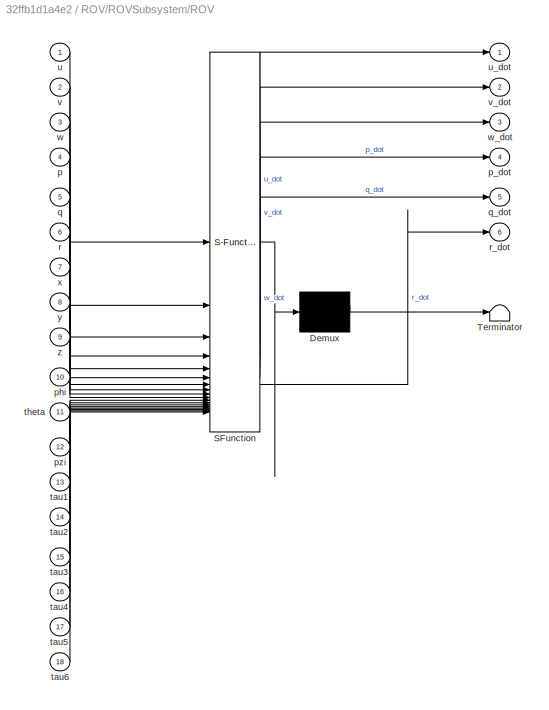
BLOCK [SubSystem] ROV/ROVSubsystem/ROV
  ErrorFcn = Stateflow.Translate.translate
  PermitHierarchicalResolution = ExplicitOnly
  SFBlockType = MATLAB Function
  TreatAsAtomicUnit = on
BLOCK [Demux] ROV/ROVSubsystem/ROV/ Demux 
  Outputs = 1
BLOCK [S-Function] ROV/ROVSubsystem/ROV/ SFunction 
  EnableBusSupport = on
  FunctionName = sf_sfun
  PortCounts = [18 7]
  SFcnIsStateOwnerBlock = off
  SFunctionDeploymentMode = off
  Tag = Stateflow S-Function 2
BLOCK [Terminator] ROV/ROVSubsystem/ROV/ Terminator 
BLOCK [Inport] ROV/ROVSubsystem/ROV/p
  Port = 4
BLOCK [Outport] ROV/ROVSubsystem/ROV/p_dot
  Port = 4
BLOCK [Inport] ROV/ROVSubsystem/ROV/phi
  Port = 10
BLOCK [Inport] ROV/ROVSubsystem/ROV/pzi
  Port = 12
BLOCK [Inport] ROV/ROVSubsystem/ROV/q
  Port = 5
BLOCK [Outport] ROV/ROVSubsystem/ROV/q_dot
  Port = 5
BLOCK [Inport] ROV/ROVSubsystem/ROV/r
  Port = 6
BLOCK [Outport] ROV/ROVSubsystem/ROV/r_dot
  Port = 6
BLOCK [Inport] ROV/ROVSubsystem/ROV/tau1
  Port = 13
BLOCK [Inport] ROV/ROVSubsystem/ROV/tau2
  Port = 14
BLOCK [Inport] ROV/ROVSubsystem/ROV/tau3
  Port = 15
BLOCK [Inport] ROV/ROVSubsystem/ROV/tau4
  Port = 16
BLOCK [Inport] ROV/ROVSubsystem/ROV/tau5
  Port = 17
BLOCK [Inport] ROV/ROVSubsystem/ROV/tau6
  Port = 18
BLOCK [Inport] ROV/ROVSubsystem/ROV/theta
  Port = 11
BLOCK [Inport] ROV/ROVSubsystem/ROV/u
BLOCK [Outport] ROV/ROVSubsystem/ROV/u_dot
BLOCK [Inport] ROV/ROVSubsystem/ROV/v
  Port = 2
BLOCK [Outport] ROV/ROVSubsystem/ROV/v_dot
  Port = 2
BLOCK [Inport] ROV/ROVSubsystem/ROV/w
  Port = 3
BLOCK [Outport] ROV/ROVSubsystem/ROV/w_dot
  Port = 3
BLOCK [Inport] ROV/ROVSubsystem/ROV/x
  Port = 7
BLOCK [Inport] ROV/ROVSubsystem/ROV/y
  Port = 8
BLOCK [Inport] ROV/ROVSubsystem/ROV/z
  Port = 9
BLOCK [Inport] ROV/ROVSubsystem/Tau
  Port = 3
BLOCK [Inport] ROV/ROVSubsystem/Velocity
BLOCK [Outport] ROV/Real Output
BLOCK [Sum] ROV/Sum
  Inputs = ++|
BLOCK [Sum] ROV/Sum1
  Inputs = ++|
BLOCK [Inport] ROV/Tau
  Port = 2
BLOCK [SubSystem] ROV1
BLOCK [From] ROV1/From
  GotoTag = OceanCurrent
  NameLocation = top
BLOCK [From] ROV1/From1
  GotoTag = OceanCurrent
  NameLocation = top
BLOCK [Goto] ROV1/Goto
  GotoTag = OceanCurrent
BLOCK [Integrator] ROV1/Integrator
  InitialCondition = v_init
BLOCK [Integrator] ROV1/Integrator1
  InitialCondition = eta_init
BLOCK [Integrator] ROV1/Integrator2
  InitialCondition = v_init
BLOCK [Integrator] ROV1/Integrator3
  InitialCondition = eta_init
BLOCK [SubSystem] ROV1/Measurement Noise
BLOCK [Reference] ROV1/Measurement Noise/Band-Limited White Noise  REF=simulink/Sources/Band-Limited
White Noise
  SourceBlock = simulink/Sources/Band-Limited\nWhite Noise
  SourceType = Band-Limited White Noise.
BLOCK [Reference] ROV1/Measurement Noise/Band-Limited White Noise1  REF=simulink/Sources/Band-Limited
White Noise
  SourceBlock = simulink/Sources/Band-Limited\nWhite Noise
  SourceType = Band-Limited White Noise.
BLOCK [Reference] ROV1/Measurement Noise/Band-Limited White Noise2  REF=simulink/Sources/Band-Limited
White Noise
  SourceBlock = simulink/Sources/Band-Limited\nWhite Noise
  SourceType = Band-Limited White Noise.
BLOCK [Reference] ROV1/Measurement Noise/Band-Limited White Noise3  REF=simulink/Sources/Band-Limited
White Noise
  NameLocation = top
  SourceBlock = simulink/Sources/Band-Limited\nWhite Noise
  SourceType = Band-Limited White Noise.
BLOCK [Reference] ROV1/Measurement Noise/Band-Limited White Noise4  REF=simulink/Sources/Band-Limited
White Noise
  NameLocation = top
  SourceBlock = simulink/Sources/Band-Limited\nWhite Noise
  SourceType = Band-Limited White Noise.
BLOCK [Reference] ROV1/Measurement Noise/Band-Limited White Noise5  REF=simulink/Sources/Band-Limited
White Noise
  NameLocation = top
  SourceBlock = simulink/Sources/Band-Limited\nWhite Noise
  SourceType = Band-Limited White Noise.
BLOCK [Constant] ROV1/Measurement Noise/Constant
  Value = 0.01
BLOCK [Constant] ROV1/Measurement Noise/Constant1
  Value = 0.01
BLOCK [Constant] ROV1/Measurement Noise/Constant2
  Value = 0.0
BLOCK [Constant] ROV1/Measurement Noise/Constant3
  NameLocation = top
  Value = 0.0
BLOCK [Constant] ROV1/Measurement Noise/Constant4
  NameLocation = top
  Value = 0.0
BLOCK [Constant] ROV1/Measurement Noise/Constant5
  NameLocation = top
  Value = 0.0
BLOCK [Demux] ROV1/Measurement Noise/Demux
  Outputs = 6
BLOCK [Outport] ROV1/Measurement Noise/EstAcc
BLOCK [Inport] ROV1/Measurement Noise/In1
BLOCK [Mux] ROV1/Measurement Noise/Mux
  DisplayOption = bar
  Inputs = 6
BLOCK [Product] ROV1/Measurement Noise/Product
  NameLocation = right
BLOCK [Product] ROV1/Measurement Noise/Product1
  NameLocation = right
BLOCK [Product] ROV1/Measurement Noise/Product2
  NameLocation = right
BLOCK [Product] ROV1/Measurement Noise/Product3
  NameLocation = right
BLOCK [Product] ROV1/Measurement Noise/Product4
  NameLocation = right
BLOCK [Product] ROV1/Measurement Noise/Product5
  NameLocation = right
BLOCK [Scope] ROV1/Measurement Noise/Scope
  Floating = off
  NumInputPorts = 6
BLOCK [Sum] ROV1/Measurement Noise/Sum2
  Inputs = |++
BLOCK [Sum] ROV1/Measurement Noise/Sum3
  Inputs = |++
BLOCK [Sum] ROV1/Measurement Noise/Sum4
  Inputs = |++
BLOCK [Sum] ROV1/Measurement Noise/Sum5
  Inputs = |++
BLOCK [Sum] ROV1/Measurement Noise/Sum6
  Inputs = |++
BLOCK [Sum] ROV1/Measurement Noise/Sum7
  Inputs = |++
BLOCK [SubSystem] ROV1/Measurement Noise1
BLOCK [Reference] ROV1/Measurement Noise1/Band-Limited White Noise  REF=simulink/Sources/Band-Limited
White Noise
  SourceBlock = simulink/Sources/Band-Limited\nWhite Noise
  SourceType = Band-Limited White Noise.
BLOCK [Reference] ROV1/Measurement Noise1/Band-Limited White Noise1  REF=simulink/Sources/Band-Limited
White Noise
  SourceBlock = simulink/Sources/Band-Limited\nWhite Noise
  SourceType = Band-Limited White Noise.
BLOCK [Reference] ROV1/Measurement Noise1/Band-Limited White Noise2  REF=simulink/Sources/Band-Limited
White Noise
  SourceBlock = simulink/Sources/Band-Limited\nWhite Noise
  SourceType = Band-Limited White Noise.
BLOCK [Reference] ROV1/Measurement Noise1/Band-Limited White Noise3  REF=simulink/Sources/Band-Limited
White Noise
  NameLocation = top
  SourceBlock = simulink/Sources/Band-Limited\nWhite Noise
  SourceType = Band-Limited White Noise.
BLOCK [Reference] ROV1/Measurement Noise1/Band-Limited White Noise4  REF=simulink/Sources/Band-Limited
White Noise
  NameLocation = top
  SourceBlock = simulink/Sources/Band-Limited\nWhite Noise
  SourceType = Band-Limited White Noise.
BLOCK [Reference] ROV1/Measurement Noise1/Band-Limited White Noise5  REF=simulink/Sources/Band-Limited
White Noise
  NameLocation = top
  SourceBlock = simulink/Sources/Band-Limited\nWhite Noise
  SourceType = Band-Limited White Noise.
BLOCK [Constant] ROV1/Measurement Noise1/Constant
  Value = 0.0
BLOCK [Constant] ROV1/Measurement Noise1/Constant1
  Value = 0.0
BLOCK [Constant] ROV1/Measurement Noise1/Constant2
  Value = 0.0
BLOCK [Constant] ROV1/Measurement Noise1/Constant3
  NameLocation = top
BLOCK [Constant] ROV1/Measurement Noise1/Constant4
  NameLocation = top
BLOCK [Constant] ROV1/Measurement Noise1/Constant5
  NameLocation = top
  Value = 0.0
BLOCK [Demux] ROV1/Measurement Noise1/Demux
  Outputs = 6
BLOCK [Outport] ROV1/Measurement Noise1/EstVelo
BLOCK [Inport] ROV1/Measurement Noise1/In1
BLOCK [Mux] ROV1/Measurement Noise1/Mux
  DisplayOption = bar
  Inputs = 6
BLOCK [Product] ROV1/Measurement Noise1/Product
  NameLocation = right
BLOCK [Product] ROV1/Measurement Noise1/Product1
  NameLocation = right
BLOCK [Product] ROV1/Measurement Noise1/Product2
  NameLocation = right
BLOCK [Product] ROV1/Measurement Noise1/Product3
  NameLocation = right
BLOCK [Product] ROV1/Measurement Noise1/Product4
  NameLocation = right
BLOCK [Product] ROV1/Measurement Noise1/Product5
  NameLocation = right
BLOCK [Scope] ROV1/Measurement Noise1/Scope
  Floating = off
  NumInputPorts = 6
BLOCK [Sum] ROV1/Measurement Noise1/Sum2
  Inputs = |++
BLOCK [Sum] ROV1/Measurement Noise1/Sum3
  Inputs = |++
BLOCK [Sum] ROV1/Measurement Noise1/Sum4
  Inputs = |++
BLOCK [Sum] ROV1/Measurement Noise1/Sum5
  Inputs = |++
BLOCK [Sum] ROV1/Measurement Noise1/Sum6
  Inputs = |++
BLOCK [Sum] ROV1/Measurement Noise1/Sum7
  Inputs = |++
BLOCK [SubSystem] ROV1/Measurement Noise2
BLOCK [Reference] ROV1/Measurement Noise2/Band-Limited White Noise  REF=simulink/Sources/Band-Limited
White Noise
  SourceBlock = simulink/Sources/Band-Limited\nWhite Noise
  SourceType = Band-Limited White Noise.
BLOCK [Reference] ROV1/Measurement Noise2/Band-Limited White Noise1  REF=simulink/Sources/Band-Limited
White Noise
  SourceBlock = simulink/Sources/Band-Limited\nWhite Noise
  SourceType = Band-Limited White Noise.
BLOCK [Reference] ROV1/Measurement Noise2/Band-Limited White Noise2  REF=simulink/Sources/Band-Limited
White Noise
  SourceBlock = simulink/Sources/Band-Limited\nWhite Noise
  SourceType = Band-Limited White Noise.
BLOCK [Reference] ROV1/Measurement Noise2/Band-Limited White Noise3  REF=simulink/Sources/Band-Limited
White Noise
  NameLocation = top
  SourceBlock = simulink/Sources/Band-Limited\nWhite Noise
  SourceType = Band-Limited White Noise.
BLOCK [Reference] ROV1/Measurement Noise2/Band-Limited White Noise4  REF=simulink/Sources/Band-Limited
White Noise
  NameLocation = top
  SourceBlock = simulink/Sources/Band-Limited\nWhite Noise
  SourceType = Band-Limited White Noise.
BLOCK [Reference] ROV1/Measurement Noise2/Band-Limited White Noise5  REF=simulink/Sources/Band-Limited
White Noise
  NameLocation = top
  SourceBlock = simulink/Sources/Band-Limited\nWhite Noise
  SourceType = Band-Limited White Noise.
BLOCK [Constant] ROV1/Measurement Noise2/Constant
  Value = 0.0
BLOCK [Constant] ROV1/Measurement Noise2/Constant1
  Value = 0.0
BLOCK [Constant] ROV1/Measurement Noise2/Constant2
BLOCK [Constant] ROV1/Measurement Noise2/Constant3
  NameLocation = top
  Value = 0.0
BLOCK [Constant] ROV1/Measurement Noise2/Constant4
  NameLocation = top
  Value = 0.0
BLOCK [Constant] ROV1/Measurement Noise2/Constant5
  NameLocation = top
  Value = 0.1
BLOCK [Demux] ROV1/Measurement Noise2/Demux
  Outputs = 6
BLOCK [Outport] ROV1/Measurement Noise2/EstPos
BLOCK [Inport] ROV1/Measurement Noise2/In1
BLOCK [Mux] ROV1/Measurement Noise2/Mux
  DisplayOption = bar
  Inputs = 6
BLOCK [Product] ROV1/Measurement Noise2/Product
  NameLocation = right
BLOCK [Product] ROV1/Measurement Noise2/Product1
  NameLocation = right
BLOCK [Product] ROV1/Measurement Noise2/Product2
  NameLocation = right
BLOCK [Product] ROV1/Measurement Noise2/Product3
  NameLocation = right
BLOCK [Product] ROV1/Measurement Noise2/Product4
  NameLocation = right
BLOCK [Product] ROV1/Measurement Noise2/Product5
  NameLocation = right
BLOCK [Scope] ROV1/Measurement Noise2/Scope
  Floating = off
  NumInputPorts = 6
BLOCK [Sum] ROV1/Measurement Noise2/Sum2
  Inputs = |++
BLOCK [Sum] ROV1/Measurement Noise2/Sum3
  Inputs = |++
BLOCK [Sum] ROV1/Measurement Noise2/Sum4
  Inputs = |++
BLOCK [Sum] ROV1/Measurement Noise2/Sum5
  Inputs = |++
BLOCK [Sum] ROV1/Measurement Noise2/Sum6
  Inputs = |++
BLOCK [Sum] ROV1/Measurement Noise2/Sum7
  Inputs = |++
BLOCK [Outport] ROV1/Measurments
  Port = 2
BLOCK [Mux] ROV1/Mux
  DisplayOption = bar
BLOCK [Mux] ROV1/Mux1
  DisplayOption = bar
BLOCK [SubSystem] ROV1/NED
BLOCK [Demux] ROV1/NED/Demux
  Outputs = 6
BLOCK [Demux] ROV1/NED/Demux1
  Outputs = 6
BLOCK [Mux] ROV1/NED/Mux
  DisplayOption = bar
  Inputs = 6
BLOCK [Outport] ROV1/NED/Velocity_NED
BLOCK [SubSystem] ROV1/NED/calcNED
  ErrorFcn = Stateflow.Translate.translate
  PermitHierarchicalResolution = ExplicitOnly
  SFBlockType = MATLAB Function
  TreatAsAtomicUnit = on
BLOCK [Demux] ROV1/NED/calcNED/ Demux 
  Outputs = 1
BLOCK [S-Function] ROV1/NED/calcNED/ SFunction 
  EnableBusSupport = on
  FunctionName = sf_sfun
  PortCounts = [12 7]
  SFcnIsStateOwnerBlock = off
  SFunctionDeploymentMode = off
  Tag = Stateflow S-Function 9
BLOCK [Terminator] ROV1/NED/calcNED/ Terminator 
BLOCK [Inport] ROV1/NED/calcNED/p
  Port = 4
BLOCK [Inport] ROV1/NED/calcNED/phi
  Port = 10
BLOCK [Outport] ROV1/NED/calcNED/phi_dot
  Port = 4
BLOCK [Inport] ROV1/NED/calcNED/pzi
  Port = 12
BLOCK [Outport] ROV1/NED/calcNED/pzi_dot
  Port = 6
BLOCK [Inport] ROV1/NED/calcNED/q
  Port = 5
BLOCK [Inport] ROV1/NED/calcNED/r
  Port = 6
BLOCK [Inport] ROV1/NED/calcNED/theta
  Port = 11
BLOCK [Outport] ROV1/NED/calcNED/theta_dot
  Port = 5
BLOCK [Inport] ROV1/NED/calcNED/u
BLOCK [Inport] ROV1/NED/calcNED/v
  Port = 2
BLOCK [Inport] ROV1/NED/calcNED/w
  Port = 3
BLOCK [Inport] ROV1/NED/calcNED/x
  Port = 7
BLOCK [Outport] ROV1/NED/calcNED/x_dot
BLOCK [Inport] ROV1/NED/calcNED/y
  Port = 8
BLOCK [Outport] ROV1/NED/calcNED/y_dot
  Port = 2
BLOCK [Inport] ROV1/NED/calcNED/z
  Port = 9
BLOCK [Outport] ROV1/NED/calcNED/z_dot
  Port = 3
BLOCK [Inport] ROV1/NED/position_NED
  Port = 2
BLOCK [Inport] ROV1/NED/velocity
BLOCK [SubSystem] ROV1/NED1
BLOCK [Demux] ROV1/NED1/Demux
  Outputs = 6
BLOCK [Demux] ROV1/NED1/Demux1
  Outputs = 6
BLOCK [Mux] ROV1/NED1/Mux
  DisplayOption = bar
  Inputs = 6
BLOCK [Outport] ROV1/NED1/Velocity_NED
BLOCK [SubSystem] ROV1/NED1/calcNED
  ErrorFcn = Stateflow.Translate.translate
  PermitHierarchicalResolution = ExplicitOnly
  SFBlockType = MATLAB Function
  TreatAsAtomicUnit = on
BLOCK [Demux] ROV1/NED1/calcNED/ Demux 
  Outputs = 1
BLOCK [S-Function] ROV1/NED1/calcNED/ SFunction 
  EnableBusSupport = on
  FunctionName = sf_sfun
  PortCounts = [12 7]
  SFcnIsStateOwnerBlock = off
  SFunctionDeploymentMode = off
  Tag = Stateflow S-Function 10
BLOCK [Terminator] ROV1/NED1/calcNED/ Terminator 
BLOCK [Inport] ROV1/NED1/calcNED/p
  Port = 4
BLOCK [Inport] ROV1/NED1/calcNED/phi
  Port = 10
BLOCK [Outport] ROV1/NED1/calcNED/phi_dot
  Port = 4
BLOCK [Inport] ROV1/NED1/calcNED/pzi
  Port = 12
BLOCK [Outport] ROV1/NED1/calcNED/pzi_dot
  Port = 6
BLOCK [Inport] ROV1/NED1/calcNED/q
  Port = 5
BLOCK [Inport] ROV1/NED1/calcNED/r
  Port = 6
BLOCK [Inport] ROV1/NED1/calcNED/theta
  Port = 11
BLOCK [Outport] ROV1/NED1/calcNED/theta_dot
  Port = 5
BLOCK [Inport] ROV1/NED1/calcNED/u
BLOCK [Inport] ROV1/NED1/calcNED/v
  Port = 2
BLOCK [Inport] ROV1/NED1/calcNED/w
  Port = 3
BLOCK [Inport] ROV1/NED1/calcNED/x
  Port = 7
BLOCK [Outport] ROV1/NED1/calcNED/x_dot
BLOCK [Inport] ROV1/NED1/calcNED/y
  Port = 8
BLOCK [Outport] ROV1/NED1/calcNED/y_dot
  Port = 2
BLOCK [Inport] ROV1/NED1/calcNED/z
  Port = 9
BLOCK [Outport] ROV1/NED1/calcNED/z_dot
  Port = 3
BLOCK [Inport] ROV1/NED1/position_NED
  Port = 2
BLOCK [Inport] ROV1/NED1/velocity
BLOCK [Inport] ROV1/Ocean_currents
BLOCK [SubSystem] ROV1/ROVSubsystem
BLOCK [Outport] ROV1/ROVSubsystem/Acceleration
BLOCK [Demux] ROV1/ROVSubsystem/Demux
  Outputs = 6
BLOCK [Demux] ROV1/ROVSubsystem/Demux1
  Outputs = 6
BLOCK [Demux] ROV1/ROVSubsystem/Demux2
  Outputs = 6
BLOCK [Mux] ROV1/ROVSubsystem/Mux
  DisplayOption = bar
  Inputs = 6
BLOCK [Inport] ROV1/ROVSubsystem/Position
  Port = 2
BLOCK [SubSystem] ROV1/ROVSubsystem/ROV
  ErrorFcn = Stateflow.Translate.translate
  PermitHierarchicalResolution = ExplicitOnly
  SFBlockType = MATLAB Function
  TreatAsAtomicUnit = on
BLOCK [Demux] ROV1/ROVSubsystem/ROV/ Demux 
  Outputs = 1
BLOCK [S-Function] ROV1/ROVSubsystem/ROV/ SFunction 
  EnableBusSupport = on
  FunctionName = sf_sfun
  PortCounts = [18 7]
  SFcnIsStateOwnerBlock = off
  SFunctionDeploymentMode = off
  Tag = Stateflow S-Function 11
BLOCK [Terminator] ROV1/ROVSubsystem/ROV/ Terminator 
BLOCK [Inport] ROV1/ROVSubsystem/ROV/p
  Port = 4
BLOCK [Outport] ROV1/ROVSubsystem/ROV/p_dot
  Port = 4
BLOCK [Inport] ROV1/ROVSubsystem/ROV/phi
  Port = 10
BLOCK [Inport] ROV1/ROVSubsystem/ROV/pzi
  Port = 12
BLOCK [Inport] ROV1/ROVSubsystem/ROV/q
  Port = 5
BLOCK [Outport] ROV1/ROVSubsystem/ROV/q_dot
  Port = 5
BLOCK [Inport] ROV1/ROVSubsystem/ROV/r
  Port = 6
BLOCK [Outport] ROV1/ROVSubsystem/ROV/r_dot
  Port = 6
BLOCK [Inport] ROV1/ROVSubsystem/ROV/tau1
  Port = 13
BLOCK [Inport] ROV1/ROVSubsystem/ROV/tau2
  Port = 14
BLOCK [Inport] ROV1/ROVSubsystem/ROV/tau3
  Port = 15
BLOCK [Inport] ROV1/ROVSubsystem/ROV/tau4
  Port = 16
BLOCK [Inport] ROV1/ROVSubsystem/ROV/tau5
  Port = 17
BLOCK [Inport] ROV1/ROVSubsystem/ROV/tau6
  Port = 18
BLOCK [Inport] ROV1/ROVSubsystem/ROV/theta
  Port = 11
BLOCK [Inport] ROV1/ROVSubsystem/ROV/u
BLOCK [Outport] ROV1/ROVSubsystem/ROV/u_dot
BLOCK [Inport] ROV1/ROVSubsystem/ROV/v
  Port = 2
BLOCK [Outport] ROV1/ROVSubsystem/ROV/v_dot
  Port = 2
BLOCK [Inport] ROV1/ROVSubsystem/ROV/w
  Port = 3
BLOCK [Outport] ROV1/ROVSubsystem/ROV/w_dot
  Port = 3
BLOCK [Inport] ROV1/ROVSubsystem/ROV/x
  Port = 7
BLOCK [Inport] ROV1/ROVSubsystem/ROV/y
  Port = 8
BLOCK [Inport] ROV1/ROVSubsystem/ROV/z
  Port = 9
BLOCK [Inport] ROV1/ROVSubsystem/Tau
  Port = 3
BLOCK [Inport] ROV1/ROVSubsystem/Velocity
BLOCK [Outport] ROV1/Real Output
BLOCK [Sum] ROV1/Sum
  Inputs = ++|
BLOCK [Sum] ROV1/Sum1
  Inputs = ++|
BLOCK [Inport] ROV1/Tau
  Port = 2
BLOCK [SubSystem] ROV2
BLOCK [From] ROV2/From
  GotoTag = OceanCurrent
  NameLocation = top
BLOCK [From] ROV2/From1
  GotoTag = OceanCurrent
  NameLocation = top
BLOCK [Goto] ROV2/Goto
  GotoTag = OceanCurrent
BLOCK [Integrator] ROV2/Integrator
  InitialCondition = v_init
BLOCK [Integrator] ROV2/Integrator1
  InitialCondition = eta_init
BLOCK [Integrator] ROV2/Integrator2
  InitialCondition = v_init
BLOCK [Integrator] ROV2/Integrator3
  InitialCondition = eta_init
BLOCK [SubSystem] ROV2/Measurement Noise
BLOCK [Reference] ROV2/Measurement Noise/Band-Limited White Noise  REF=simulink/Sources/Band-Limited
White Noise
  SourceBlock = simulink/Sources/Band-Limited\nWhite Noise
  SourceType = Band-Limited White Noise.
BLOCK [Reference] ROV2/Measurement Noise/Band-Limited White Noise1  REF=simulink/Sources/Band-Limited
White Noise
  SourceBlock = simulink/Sources/Band-Limited\nWhite Noise
  SourceType = Band-Limited White Noise.
BLOCK [Reference] ROV2/Measurement Noise/Band-Limited White Noise2  REF=simulink/Sources/Band-Limited
White Noise
  SourceBlock = simulink/Sources/Band-Limited\nWhite Noise
  SourceType = Band-Limited White Noise.
BLOCK [Reference] ROV2/Measurement Noise/Band-Limited White Noise3  REF=simulink/Sources/Band-Limited
White Noise
  NameLocation = top
  SourceBlock = simulink/Sources/Band-Limited\nWhite Noise
  SourceType = Band-Limited White Noise.
BLOCK [Reference] ROV2/Measurement Noise/Band-Limited White Noise4  REF=simulink/Sources/Band-Limited
White Noise
  NameLocation = top
  SourceBlock = simulink/Sources/Band-Limited\nWhite Noise
  SourceType = Band-Limited White Noise.
BLOCK [Reference] ROV2/Measurement Noise/Band-Limited White Noise5  REF=simulink/Sources/Band-Limited
White Noise
  NameLocation = top
  SourceBlock = simulink/Sources/Band-Limited\nWhite Noise
  SourceType = Band-Limited White Noise.
BLOCK [Constant] ROV2/Measurement Noise/Constant
  Value = 0.01
BLOCK [Constant] ROV2/Measurement Noise/Constant1
  Value = 0.01
BLOCK [Constant] ROV2/Measurement Noise/Constant2
  Value = 0.0
BLOCK [Constant] ROV2/Measurement Noise/Constant3
  NameLocation = top
  Value = 0.0
BLOCK [Constant] ROV2/Measurement Noise/Constant4
  NameLocation = top
  Value = 0.0
BLOCK [Constant] ROV2/Measurement Noise/Constant5
  NameLocation = top
  Value = 0.0
BLOCK [Demux] ROV2/Measurement Noise/Demux
  Outputs = 6
BLOCK [Outport] ROV2/Measurement Noise/EstAcc
BLOCK [Inport] ROV2/Measurement Noise/In1
BLOCK [Mux] ROV2/Measurement Noise/Mux
  DisplayOption = bar
  Inputs = 6
BLOCK [Product] ROV2/Measurement Noise/Product
  NameLocation = right
BLOCK [Product] ROV2/Measurement Noise/Product1
  NameLocation = right
BLOCK [Product] ROV2/Measurement Noise/Product2
  NameLocation = right
BLOCK [Product] ROV2/Measurement Noise/Product3
  NameLocation = right
BLOCK [Product] ROV2/Measurement Noise/Product4
  NameLocation = right
BLOCK [Product] ROV2/Measurement Noise/Product5
  NameLocation = right
BLOCK [Scope] ROV2/Measurement Noise/Scope
  Floating = off
  NumInputPorts = 6
BLOCK [Sum] ROV2/Measurement Noise/Sum2
  Inputs = |++
BLOCK [Sum] ROV2/Measurement Noise/Sum3
  Inputs = |++
BLOCK [Sum] ROV2/Measurement Noise/Sum4
  Inputs = |++
BLOCK [Sum] ROV2/Measurement Noise/Sum5
  Inputs = |++
BLOCK [Sum] ROV2/Measurement Noise/Sum6
  Inputs = |++
BLOCK [Sum] ROV2/Measurement Noise/Sum7
  Inputs = |++
BLOCK [SubSystem] ROV2/Measurement Noise1
BLOCK [Reference] ROV2/Measurement Noise1/Band-Limited White Noise  REF=simulink/Sources/Band-Limited
White Noise
  SourceBlock = simulink/Sources/Band-Limited\nWhite Noise
  SourceType = Band-Limited White Noise.
BLOCK [Reference] ROV2/Measurement Noise1/Band-Limited White Noise1  REF=simulink/Sources/Band-Limited
White Noise
  SourceBlock = simulink/Sources/Band-Limited\nWhite Noise
  SourceType = Band-Limited White Noise.
BLOCK [Reference] ROV2/Measurement Noise1/Band-Limited White Noise2  REF=simulink/Sources/Band-Limited
White Noise
  SourceBlock = simulink/Sources/Band-Limited\nWhite Noise
  SourceType = Band-Limited White Noise.
BLOCK [Reference] ROV2/Measurement Noise1/Band-Limited White Noise3  REF=simulink/Sources/Band-Limited
White Noise
  NameLocation = top
  SourceBlock = simulink/Sources/Band-Limited\nWhite Noise
  SourceType = Band-Limited White Noise.
BLOCK [Reference] ROV2/Measurement Noise1/Band-Limited White Noise4  REF=simulink/Sources/Band-Limited
White Noise
  NameLocation = top
  SourceBlock = simulink/Sources/Band-Limited\nWhite Noise
  SourceType = Band-Limited White Noise.
BLOCK [Reference] ROV2/Measurement Noise1/Band-Limited White Noise5  REF=simulink/Sources/Band-Limited
White Noise
  NameLocation = top
  SourceBlock = simulink/Sources/Band-Limited\nWhite Noise
  SourceType = Band-Limited White Noise.
BLOCK [Constant] ROV2/Measurement Noise1/Constant
  Value = 0.0
BLOCK [Constant] ROV2/Measurement Noise1/Constant1
  Value = 0.0
BLOCK [Constant] ROV2/Measurement Noise1/Constant2
  Value = 0.0
BLOCK [Constant] ROV2/Measurement Noise1/Constant3
  NameLocation = top
BLOCK [Constant] ROV2/Measurement Noise1/Constant4
  NameLocation = top
BLOCK [Constant] ROV2/Measurement Noise1/Constant5
  NameLocation = top
  Value = 0.0
BLOCK [Demux] ROV2/Measurement Noise1/Demux
  Outputs = 6
BLOCK [Outport] ROV2/Measurement Noise1/EstVelo
BLOCK [Inport] ROV2/Measurement Noise1/In1
BLOCK [Mux] ROV2/Measurement Noise1/Mux
  DisplayOption = bar
  Inputs = 6
BLOCK [Product] ROV2/Measurement Noise1/Product
  NameLocation = right
BLOCK [Product] ROV2/Measurement Noise1/Product1
  NameLocation = right
BLOCK [Product] ROV2/Measurement Noise1/Product2
  NameLocation = right
BLOCK [Product] ROV2/Measurement Noise1/Product3
  NameLocation = right
BLOCK [Product] ROV2/Measurement Noise1/Product4
  NameLocation = right
BLOCK [Product] ROV2/Measurement Noise1/Product5
  NameLocation = right
BLOCK [Scope] ROV2/Measurement Noise1/Scope
  Floating = off
  NumInputPorts = 6
BLOCK [Sum] ROV2/Measurement Noise1/Sum2
  Inputs = |++
BLOCK [Sum] ROV2/Measurement Noise1/Sum3
  Inputs = |++
BLOCK [Sum] ROV2/Measurement Noise1/Sum4
  Inputs = |++
BLOCK [Sum] ROV2/Measurement Noise1/Sum5
  Inputs = |++
BLOCK [Sum] ROV2/Measurement Noise1/Sum6
  Inputs = |++
BLOCK [Sum] ROV2/Measurement Noise1/Sum7
  Inputs = |++
BLOCK [SubSystem] ROV2/Measurement Noise2
BLOCK [Reference] ROV2/Measurement Noise2/Band-Limited White Noise  REF=simulink/Sources/Band-Limited
White Noise
  SourceBlock = simulink/Sources/Band-Limited\nWhite Noise
  SourceType = Band-Limited White Noise.
BLOCK [Reference] ROV2/Measurement Noise2/Band-Limited White Noise1  REF=simulink/Sources/Band-Limited
White Noise
  SourceBlock = simulink/Sources/Band-Limited\nWhite Noise
  SourceType = Band-Limited White Noise.
BLOCK [Reference] ROV2/Measurement Noise2/Band-Limited White Noise2  REF=simulink/Sources/Band-Limited
White Noise
  SourceBlock = simulink/Sources/Band-Limited\nWhite Noise
  SourceType = Band-Limited White Noise.
BLOCK [Reference] ROV2/Measurement Noise2/Band-Limited White Noise3  REF=simulink/Sources/Band-Limited
White Noise
  NameLocation = top
  SourceBlock = simulink/Sources/Band-Limited\nWhite Noise
  SourceType = Band-Limited White Noise.
BLOCK [Reference] ROV2/Measurement Noise2/Band-Limited White Noise4  REF=simulink/Sources/Band-Limited
White Noise
  NameLocation = top
  SourceBlock = simulink/Sources/Band-Limited\nWhite Noise
  SourceType = Band-Limited White Noise.
BLOCK [Reference] ROV2/Measurement Noise2/Band-Limited White Noise5  REF=simulink/Sources/Band-Limited
White Noise
  NameLocation = top
  SourceBlock = simulink/Sources/Band-Limited\nWhite Noise
  SourceType = Band-Limited White Noise.
BLOCK [Constant] ROV2/Measurement Noise2/Constant
  Value = 0.0
BLOCK [Constant] ROV2/Measurement Noise2/Constant1
  Value = 0.0
BLOCK [Constant] ROV2/Measurement Noise2/Constant2
BLOCK [Constant] ROV2/Measurement Noise2/Constant3
  NameLocation = top
  Value = 0.0
BLOCK [Constant] ROV2/Measurement Noise2/Constant4
  NameLocation = top
  Value = 0.0
BLOCK [Constant] ROV2/Measurement Noise2/Constant5
  NameLocation = top
  Value = 0.1
BLOCK [Demux] ROV2/Measurement Noise2/Demux
  Outputs = 6
BLOCK [Outport] ROV2/Measurement Noise2/EstPos
BLOCK [Inport] ROV2/Measurement Noise2/In1
BLOCK [Mux] ROV2/Measurement Noise2/Mux
  DisplayOption = bar
  Inputs = 6
BLOCK [Product] ROV2/Measurement Noise2/Product
  NameLocation = right
BLOCK [Product] ROV2/Measurement Noise2/Product1
  NameLocation = right
BLOCK [Product] ROV2/Measurement Noise2/Product2
  NameLocation = right
BLOCK [Product] ROV2/Measurement Noise2/Product3
  NameLocation = right
BLOCK [Product] ROV2/Measurement Noise2/Product4
  NameLocation = right
BLOCK [Product] ROV2/Measurement Noise2/Product5
  NameLocation = right
BLOCK [Scope] ROV2/Measurement Noise2/Scope
  Floating = off
  NumInputPorts = 6
BLOCK [Sum] ROV2/Measurement Noise2/Sum2
  Inputs = |++
BLOCK [Sum] ROV2/Measurement Noise2/Sum3
  Inputs = |++
BLOCK [Sum] ROV2/Measurement Noise2/Sum4
  Inputs = |++
BLOCK [Sum] ROV2/Measurement Noise2/Sum5
  Inputs = |++
BLOCK [Sum] ROV2/Measurement Noise2/Sum6
  Inputs = |++
BLOCK [Sum] ROV2/Measurement Noise2/Sum7
  Inputs = |++
BLOCK [Outport] ROV2/Measurments
  Port = 2
BLOCK [Mux] ROV2/Mux
  DisplayOption = bar
BLOCK [Mux] ROV2/Mux1
  DisplayOption = bar
BLOCK [SubSystem] ROV2/NED
BLOCK [Demux] ROV2/NED/Demux
  Outputs = 6
BLOCK [Demux] ROV2/NED/Demux1
  Outputs = 6
BLOCK [Mux] ROV2/NED/Mux
  DisplayOption = bar
  Inputs = 6
BLOCK [Outport] ROV2/NED/Velocity_NED
BLOCK [SubSystem] ROV2/NED/calcNED
  ErrorFcn = Stateflow.Translate.translate
  PermitHierarchicalResolution = ExplicitOnly
  SFBlockType = MATLAB Function
  TreatAsAtomicUnit = on
BLOCK [Demux] ROV2/NED/calcNED/ Demux 
  Outputs = 1
BLOCK [S-Function] ROV2/NED/calcNED/ SFunction 
  EnableBusSupport = on
  FunctionName = sf_sfun
  PortCounts = [12 7]
  SFcnIsStateOwnerBlock = off
  SFunctionDeploymentMode = off
  Tag = Stateflow S-Function 13
BLOCK [Terminator] ROV2/NED/calcNED/ Terminator 
BLOCK [Inport] ROV2/NED/calcNED/p
  Port = 4
BLOCK [Inport] ROV2/NED/calcNED/phi
  Port = 10
BLOCK [Outport] ROV2/NED/calcNED/phi_dot
  Port = 4
BLOCK [Inport] ROV2/NED/calcNED/pzi
  Port = 12
BLOCK [Outport] ROV2/NED/calcNED/pzi_dot
  Port = 6
BLOCK [Inport] ROV2/NED/calcNED/q
  Port = 5
BLOCK [Inport] ROV2/NED/calcNED/r
  Port = 6
BLOCK [Inport] ROV2/NED/calcNED/theta
  Port = 11
BLOCK [Outport] ROV2/NED/calcNED/theta_dot
  Port = 5
BLOCK [Inport] ROV2/NED/calcNED/u
BLOCK [Inport] ROV2/NED/calcNED/v
  Port = 2
BLOCK [Inport] ROV2/NED/calcNED/w
  Port = 3
BLOCK [Inport] ROV2/NED/calcNED/x
  Port = 7
BLOCK [Outport] ROV2/NED/calcNED/x_dot
BLOCK [Inport] ROV2/NED/calcNED/y
  Port = 8
BLOCK [Outport] ROV2/NED/calcNED/y_dot
  Port = 2
BLOCK [Inport] ROV2/NED/calcNED/z
  Port = 9
BLOCK [Outport] ROV2/NED/calcNED/z_dot
  Port = 3
BLOCK [Inport] ROV2/NED/position_NED
  Port = 2
BLOCK [Inport] ROV2/NED/velocity
BLOCK [SubSystem] ROV2/NED1
BLOCK [Demux] ROV2/NED1/Demux
  Outputs = 6
BLOCK [Demux] ROV2/NED1/Demux1
  Outputs = 6
BLOCK [Mux] ROV2/NED1/Mux
  DisplayOption = bar
  Inputs = 6
BLOCK [Outport] ROV2/NED1/Velocity_NED
BLOCK [SubSystem] ROV2/NED1/calcNED
  ErrorFcn = Stateflow.Translate.translate
  PermitHierarchicalResolution = ExplicitOnly
  SFBlockType = MATLAB Function
  TreatAsAtomicUnit = on
BLOCK [Demux] ROV2/NED1/calcNED/ Demux 
  Outputs = 1
BLOCK [S-Function] ROV2/NED1/calcNED/ SFunction 
  EnableBusSupport = on
  FunctionName = sf_sfun
  PortCounts = [12 7]
  SFcnIsStateOwnerBlock = off
  SFunctionDeploymentMode = off
  Tag = Stateflow S-Function 14
BLOCK [Terminator] ROV2/NED1/calcNED/ Terminator 
BLOCK [Inport] ROV2/NED1/calcNED/p
  Port = 4
BLOCK [Inport] ROV2/NED1/calcNED/phi
  Port = 10
BLOCK [Outport] ROV2/NED1/calcNED/phi_dot
  Port = 4
BLOCK [Inport] ROV2/NED1/calcNED/pzi
  Port = 12
BLOCK [Outport] ROV2/NED1/calcNED/pzi_dot
  Port = 6
BLOCK [Inport] ROV2/NED1/calcNED/q
  Port = 5
BLOCK [Inport] ROV2/NED1/calcNED/r
  Port = 6
BLOCK [Inport] ROV2/NED1/calcNED/theta
  Port = 11
BLOCK [Outport] ROV2/NED1/calcNED/theta_dot
  Port = 5
BLOCK [Inport] ROV2/NED1/calcNED/u
BLOCK [Inport] ROV2/NED1/calcNED/v
  Port = 2
BLOCK [Inport] ROV2/NED1/calcNED/w
  Port = 3
BLOCK [Inport] ROV2/NED1/calcNED/x
  Port = 7
BLOCK [Outport] ROV2/NED1/calcNED/x_dot
BLOCK [Inport] ROV2/NED1/calcNED/y
  Port = 8
BLOCK [Outport] ROV2/NED1/calcNED/y_dot
  Port = 2
BLOCK [Inport] ROV2/NED1/calcNED/z
  Port = 9
BLOCK [Outport] ROV2/NED1/calcNED/z_dot
  Port = 3
BLOCK [Inport] ROV2/NED1/position_NED
  Port = 2
BLOCK [Inport] ROV2/NED1/velocity
BLOCK [Inport] ROV2/Ocean_currents
BLOCK [SubSystem] ROV2/ROVSubsystem
BLOCK [Outport] ROV2/ROVSubsystem/Acceleration
BLOCK [Demux] ROV2/ROVSubsystem/Demux
  Outputs = 6
BLOCK [Demux] ROV2/ROVSubsystem/Demux1
  Outputs = 6
BLOCK [Demux] ROV2/ROVSubsystem/Demux2
  Outputs = 6
BLOCK [Mux] ROV2/ROVSubsystem/Mux
  DisplayOption = bar
  Inputs = 6
BLOCK [Inport] ROV2/ROVSubsystem/Position
  Port = 2
BLOCK [SubSystem] ROV2/ROVSubsystem/ROV
  ErrorFcn = Stateflow.Translate.translate
  PermitHierarchicalResolution = ExplicitOnly
  SFBlockType = MATLAB Function
  TreatAsAtomicUnit = on
BLOCK [Demux] ROV2/ROVSubsystem/ROV/ Demux 
  Outputs = 1
BLOCK [S-Function] ROV2/ROVSubsystem/ROV/ SFunction 
  EnableBusSupport = on
  FunctionName = sf_sfun
  PortCounts = [18 7]
  SFcnIsStateOwnerBlock = off
  SFunctionDeploymentMode = off
  Tag = Stateflow S-Function 15
BLOCK [Terminator] ROV2/ROVSubsystem/ROV/ Terminator 
BLOCK [Inport] ROV2/ROVSubsystem/ROV/p
  Port = 4
BLOCK [Outport] ROV2/ROVSubsystem/ROV/p_dot
  Port = 4
BLOCK [Inport] ROV2/ROVSubsystem/ROV/phi
  Port = 10
BLOCK [Inport] ROV2/ROVSubsystem/ROV/pzi
  Port = 12
BLOCK [Inport] ROV2/ROVSubsystem/ROV/q
  Port = 5
BLOCK [Outport] ROV2/ROVSubsystem/ROV/q_dot
  Port = 5
BLOCK [Inport] ROV2/ROVSubsystem/ROV/r
  Port = 6
BLOCK [Outport] ROV2/ROVSubsystem/ROV/r_dot
  Port = 6
BLOCK [Inport] ROV2/ROVSubsystem/ROV/tau1
  Port = 13
BLOCK [Inport] ROV2/ROVSubsystem/ROV/tau2
  Port = 14
BLOCK [Inport] ROV2/ROVSubsystem/ROV/tau3
  Port = 15
BLOCK [Inport] ROV2/ROVSubsystem/ROV/tau4
  Port = 16
BLOCK [Inport] ROV2/ROVSubsystem/ROV/tau5
  Port = 17
BLOCK [Inport] ROV2/ROVSubsystem/ROV/tau6
  Port = 18
BLOCK [Inport] ROV2/ROVSubsystem/ROV/theta
  Port = 11
BLOCK [Inport] ROV2/ROVSubsystem/ROV/u
BLOCK [Outport] ROV2/ROVSubsystem/ROV/u_dot
BLOCK [Inport] ROV2/ROVSubsystem/ROV/v
  Port = 2
BLOCK [Outport] ROV2/ROVSubsystem/ROV/v_dot
  Port = 2
BLOCK [Inport] ROV2/ROVSubsystem/ROV/w
  Port = 3
BLOCK [Outport] ROV2/ROVSubsystem/ROV/w_dot
  Port = 3
BLOCK [Inport] ROV2/ROVSubsystem/ROV/x
  Port = 7
BLOCK [Inport] ROV2/ROVSubsystem/ROV/y
  Port = 8
BLOCK [Inport] ROV2/ROVSubsystem/ROV/z
  Port = 9
BLOCK [Inport] ROV2/ROVSubsystem/Tau
  Port = 3
BLOCK [Inport] ROV2/ROVSubsystem/Velocity
BLOCK [Outport] ROV2/Real Output
BLOCK [Sum] ROV2/Sum
  Inputs = ++|
BLOCK [Sum] ROV2/Sum1
  Inputs = ++|
BLOCK [Inport] ROV2/Tau
  Port = 2
BLOCK [SubSystem] Refernce Spiral
BLOCK [Constant] Refernce Spiral/Constant1
  Value = -pi/2
BLOCK [Constant] Refernce Spiral/Constant4
  Value = 0
BLOCK [Constant] Refernce Spiral/Constant5
  Value = 0
BLOCK [Trigonometry] Refernce Spiral/Cos
BLOCK [Gain] Refernce Spiral/Gain
  Gain = radius
BLOCK [Gain] Refernce Spiral/Gain1
  Gain = radius
BLOCK [Mux] Refernce Spiral/Mux3
  DisplayOption = bar
  Inputs = 6
BLOCK [Reference] Refernce Spiral/Ramp  REF=simulink/Sources/Ramp
  SourceBlock = simulink/Sources/Ramp
  SourceType = Ramp
BLOCK [Reference] Refernce Spiral/Ramp1  REF=simulink/Sources/Ramp
  SourceBlock = simulink/Sources/Ramp
  SourceType = Ramp
BLOCK [Trigonometry] Refernce Spiral/Sin
  Operator = cos
BLOCK [Sum] Refernce Spiral/Sum
  Inputs = |++
BLOCK [Outport] Refernce Spiral/eta_ref
BLOCK [SubSystem] SMC
BLOCK [Demux] SMC/Demux
  Outputs = 6
BLOCK [Reference] SMC/Discrete Derivative  REF=simulink/Discrete/Discrete Derivative
  SourceBlock = simulink/Discrete/Discrete Derivative
  SourceType = Discrete Derivative
BLOCK [Reference] SMC/Discrete Derivative1  REF=simulink/Discrete/Discrete Derivative
  SourceBlock = simulink/Discrete/Discrete Derivative
  SourceType = Discrete Derivative
BLOCK [Reference] SMC/Discrete Derivative2  REF=simulink/Discrete/Discrete Derivative
  SourceBlock = simulink/Discrete/Discrete Derivative
  SourceType = Discrete Derivative
BLOCK [SubSystem] SMC/Force allocation
BLOCK [Lookup_n-D] SMC/Force allocation/1-D Lookup Table
  BreakpointsForDimension1 = polyval(p,[-1:0.1:1])
  InputPortMap = u0
  InternalRulePriority = Speed
  NumberOfTableDimensions = 1
  RndMeth = Simplest
  Table = [-1:0.1:1]
BLOCK [Constant] SMC/Force allocation/Constant7
  Value = T_inv
BLOCK [Product] SMC/Force allocation/Matrix Multiply
  Multiplication = Matrix(*)
BLOCK [Inport] SMC/Force allocation/Tau
BLOCK [Outport] SMC/Force allocation/u
BLOCK [Integrator] SMC/Integrator
BLOCK [Mux] SMC/Mux
  DisplayOption = bar
  Inputs = 6
BLOCK [Outport] SMC/Out1
BLOCK [Inport] SMC/Position
BLOCK [SubSystem] SMC/SMC_internal
BLOCK [Constant] SMC/SMC_internal/Constant
  Value = 0
BLOCK [Constant] SMC/SMC_internal/Constant1
  Value = 0
BLOCK [Constant] SMC/SMC_internal/Constant2
  Value = 0
BLOCK [Demux] SMC/SMC_internal/Demux
  Outputs = 6
BLOCK [Demux] SMC/SMC_internal/Demux1
  Outputs = 6
BLOCK [Demux] SMC/SMC_internal/Demux2
  Outputs = 6
BLOCK [Demux] SMC/SMC_internal/Demux3
  Outputs = 6
BLOCK [Demux] SMC/SMC_internal/Demux4
  Outputs = 6
BLOCK [Demux] SMC/SMC_internal/Demux5
  Outputs = 6
BLOCK [ManualSwitch] SMC/SMC_internal/Manual Switch
  CurrentSetting = 0
BLOCK [ManualSwitch] SMC/SMC_internal/Manual Switch1
  CurrentSetting = 0
BLOCK [ManualSwitch] SMC/SMC_internal/Manual Switch2
  CurrentSetting = 0
BLOCK [Mux] SMC/SMC_internal/Mux
  DisplayOption = bar
  Inputs = 6
BLOCK [Inport] SMC/SMC_internal/Position
BLOCK [Scope] SMC/SMC_internal/Position1
  Floating = off
  NumInputPorts = 6
  ScopeSpecificationString = Simulink.scopes.TimeScopeBlockCfg('CurrentConfiguration', extmgr.ConfigurationSet(extmgr.Configuration('Core','General UI',true,'FigureColor',[1 1 1]),extmgr.Configuration('Core','Source UI',true),extmgr.Configuration('Sources','WiredSimulink',true,'DataLoggingVariableName','ScopeData1'),extmgr.Configuration('Visuals','Time Domain',true,'SerializedDisplays',{struct('MinYLimReal','-0.00072','MaxYLi...<+7268ch>
BLOCK [Inport] SMC/SMC_internal/Ref
  Port = 3
BLOCK [Inport] SMC/SMC_internal/Ref_d
  Port = 4
BLOCK [Inport] SMC/SMC_internal/Ref_dd
  Port = 5
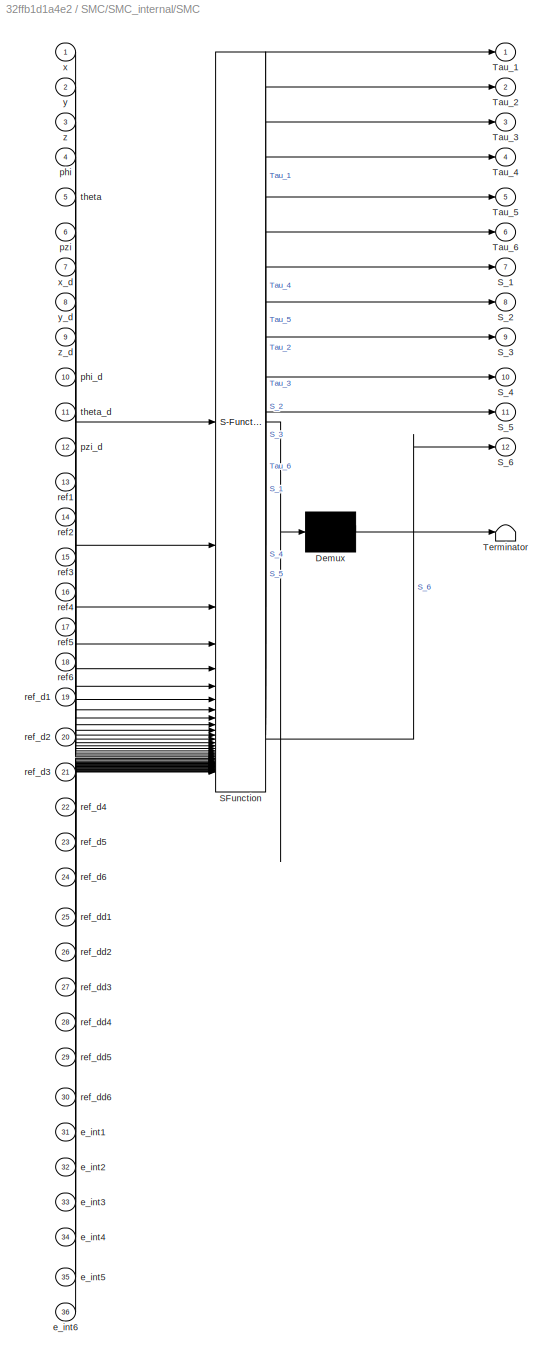
BLOCK [SubSystem] SMC/SMC_internal/SMC
  ErrorFcn = Stateflow.Translate.translate
  PermitHierarchicalResolution = ExplicitOnly
  SFBlockType = MATLAB Function
  TreatAsAtomicUnit = on
BLOCK [Demux] SMC/SMC_internal/SMC/ Demux 
  Outputs = 1
BLOCK [S-Function] SMC/SMC_internal/SMC/ SFunction 
  EnableBusSupport = on
  FunctionName = sf_sfun
  PortCounts = [36 13]
  SFcnIsStateOwnerBlock = off
  SFunctionDeploymentMode = off
  Tag = Stateflow S-Function 7
BLOCK [Terminator] SMC/SMC_internal/SMC/ Terminator 
BLOCK [Outport] SMC/SMC_internal/SMC/S_1
  Port = 7
BLOCK [Outport] SMC/SMC_internal/SMC/S_2
  Port = 8
BLOCK [Outport] SMC/SMC_internal/SMC/S_3
  Port = 9
BLOCK [Outport] SMC/SMC_internal/SMC/S_4
  Port = 10
BLOCK [Outport] SMC/SMC_internal/SMC/S_5
  Port = 11
BLOCK [Outport] SMC/SMC_internal/SMC/S_6
  Port = 12
BLOCK [Outport] SMC/SMC_internal/SMC/Tau_1
BLOCK [Outport] SMC/SMC_internal/SMC/Tau_2
  Port = 2
BLOCK [Outport] SMC/SMC_internal/SMC/Tau_3
  Port = 3
BLOCK [Outport] SMC/SMC_internal/SMC/Tau_4
  Port = 4
BLOCK [Outport] SMC/SMC_internal/SMC/Tau_5
  Port = 5
BLOCK [Outport] SMC/SMC_internal/SMC/Tau_6
  Port = 6
BLOCK [Inport] SMC/SMC_internal/SMC/e_int1
  Port = 31
BLOCK [Inport] SMC/SMC_internal/SMC/e_int2
  Port = 32
BLOCK [Inport] SMC/SMC_internal/SMC/e_int3
  Port = 33
BLOCK [Inport] SMC/SMC_internal/SMC/e_int4
  Port = 34
BLOCK [Inport] SMC/SMC_internal/SMC/e_int5
  Port = 35
BLOCK [Inport] SMC/SMC_internal/SMC/e_int6
  Port = 36
BLOCK [Inport] SMC/SMC_internal/SMC/phi
  Port = 4
BLOCK [Inport] SMC/SMC_internal/SMC/phi_d
  Port = 10
BLOCK [Inport] SMC/SMC_internal/SMC/pzi
  Port = 6
BLOCK [Inport] SMC/SMC_internal/SMC/pzi_d
  Port = 12
BLOCK [Inport] SMC/SMC_internal/SMC/ref1
  Port = 13
BLOCK [Inport] SMC/SMC_internal/SMC/ref2
  Port = 14
BLOCK [Inport] SMC/SMC_internal/SMC/ref3
  Port = 15
BLOCK [Inport] SMC/SMC_internal/SMC/ref4
  Port = 16
BLOCK [Inport] SMC/SMC_internal/SMC/ref5
  Port = 17
BLOCK [Inport] SMC/SMC_internal/SMC/ref6
  Port = 18
BLOCK [Inport] SMC/SMC_internal/SMC/ref_d1
  Port = 19
BLOCK [Inport] SMC/SMC_internal/SMC/ref_d2
  Port = 20
BLOCK [Inport] SMC/SMC_internal/SMC/ref_d3
  Port = 21
BLOCK [Inport] SMC/SMC_internal/SMC/ref_d4
  Port = 22
BLOCK [Inport] SMC/SMC_internal/SMC/ref_d5
  Port = 23
BLOCK [Inport] SMC/SMC_internal/SMC/ref_d6
  Port = 24
BLOCK [Inport] SMC/SMC_internal/SMC/ref_dd1
  Port = 25
BLOCK [Inport] SMC/SMC_internal/SMC/ref_dd2
  Port = 26
BLOCK [Inport] SMC/SMC_internal/SMC/ref_dd3
  Port = 27
BLOCK [Inport] SMC/SMC_internal/SMC/ref_dd4
  Port = 28
BLOCK [Inport] SMC/SMC_internal/SMC/ref_dd5
  Port = 29
BLOCK [Inport] SMC/SMC_internal/SMC/ref_dd6
  Port = 30
BLOCK [Inport] SMC/SMC_internal/SMC/theta
  Port = 5
BLOCK [Inport] SMC/SMC_internal/SMC/theta_d
  Port = 11
BLOCK [Inport] SMC/SMC_internal/SMC/x
BLOCK [Inport] SMC/SMC_internal/SMC/x_d
  Port = 7
BLOCK [Inport] SMC/SMC_internal/SMC/y
  Port = 2
BLOCK [Inport] SMC/SMC_internal/SMC/y_d
  Port = 8
BLOCK [Inport] SMC/SMC_internal/SMC/z
  Port = 3
BLOCK [Inport] SMC/SMC_internal/SMC/z_d
  Port = 9
BLOCK [Outport] SMC/SMC_internal/Tau
BLOCK [Inport] SMC/SMC_internal/Velocity
  Port = 2
BLOCK [Inport] SMC/SMC_internal/e_int
  Port = 6
BLOCK [Saturate] SMC/Saturation
  LowerLimit = -1
  UpperLimit = 1
BLOCK [Sum] SMC/Sum
  Inputs = |+-
BLOCK [SubSystem] SMC/Tau_body
BLOCK [Demux] SMC/Tau_body/Demux
  Outputs = 6
BLOCK [Demux] SMC/Tau_body/Demux1
  Outputs = 6
BLOCK [SubSystem] SMC/Tau_body/InvNED
  ErrorFcn = Stateflow.Translate.translate
  PermitHierarchicalResolution = ExplicitOnly
  SFBlockType = MATLAB Function
  TreatAsAtomicUnit = on
BLOCK [Demux] SMC/Tau_body/InvNED/ Demux 
  Outputs = 1
BLOCK [S-Function] SMC/Tau_body/InvNED/ SFunction 
  EnableBusSupport = on
  FunctionName = sf_sfun
  PortCounts = [12 7]
  SFcnIsStateOwnerBlock = off
  SFunctionDeploymentMode = off
  Tag = Stateflow S-Function 8
BLOCK [Terminator] SMC/Tau_body/InvNED/ Terminator 
BLOCK [Inport] SMC/Tau_body/InvNED/p
  Port = 4
BLOCK [Inport] SMC/Tau_body/InvNED/phi
  Port = 10
BLOCK [Outport] SMC/Tau_body/InvNED/phi_dot
  Port = 4
BLOCK [Inport] SMC/Tau_body/InvNED/pzi
  Port = 12
BLOCK [Outport] SMC/Tau_body/InvNED/pzi_dot
  Port = 6
BLOCK [Inport] SMC/Tau_body/InvNED/q
  Port = 5
BLOCK [Inport] SMC/Tau_body/InvNED/r
  Port = 6
BLOCK [Inport] SMC/Tau_body/InvNED/theta
  Port = 11
BLOCK [Outport] SMC/Tau_body/InvNED/theta_dot
  Port = 5
BLOCK [Inport] SMC/Tau_body/InvNED/u
BLOCK [Inport] SMC/Tau_body/InvNED/v
  Port = 2
BLOCK [Inport] SMC/Tau_body/InvNED/w
  Port = 3
BLOCK [Inport] SMC/Tau_body/InvNED/x
  Port = 7
BLOCK [Outport] SMC/Tau_body/InvNED/x_dot
BLOCK [Inport] SMC/Tau_body/InvNED/y
  Port = 8
BLOCK [Outport] SMC/Tau_body/InvNED/y_dot
  Port = 2
BLOCK [Inport] SMC/Tau_body/InvNED/z
  Port = 9
BLOCK [Outport] SMC/Tau_body/InvNED/z_dot
  Port = 3
BLOCK [Mux] SMC/Tau_body/Mux
  DisplayOption = bar
  Inputs = 6
BLOCK [Inport] SMC/Tau_body/Pos
BLOCK [Inport] SMC/Tau_body/Tau
  Port = 2
BLOCK [Outport] SMC/Tau_body/Tau_b
BLOCK [ZeroOrderHold] SMC/Zero-Order Hold
  SampleTime = 1/20
BLOCK [ZeroOrderHold] SMC/Zero-Order Hold1
  SampleTime = 1/20
BLOCK [ZeroOrderHold] SMC/Zero-Order Hold2
  SampleTime = 1/20
BLOCK [Inport] SMC/ref
  Port = 2
BLOCK [SubSystem] Step Reference
BLOCK [Constant] Step Reference/Constant
  Value = 0
BLOCK [Constant] Step Reference/Constant1
  Value = 0
BLOCK [Constant] Step Reference/Constant2
  Value = 0
BLOCK [Constant] Step Reference/Constant3
  Value = [0 0 0 0 0 0]'
BLOCK [ManualSwitch] Step Reference/Manual Switch
  CurrentSetting = 0
BLOCK [ManualSwitch] Step Reference/Manual Switch1
  CurrentSetting = 0
BLOCK [Mux] Step Reference/Mux
  DisplayOption = bar
  Inputs = 2
BLOCK [Mux] Step Reference/Mux1
  DisplayOption = bar
  Inputs = 3
BLOCK [Mux] Step Reference/Mux2
  DisplayOption = bar
  Inputs = 3
BLOCK [Mux] Step Reference/Mux3
  DisplayOption = bar
  Inputs = 3
BLOCK [Mux] Step Reference/Mux4
  DisplayOption = bar
  Inputs = 3
BLOCK [Mux] Step Reference/Mux5
  DisplayOption = bar
  Inputs = 2
BLOCK [RateLimiter] Step Reference/Rate Limiter1
  FallingSlewLimit = -0.5
  RisingSlewLimit = 0.5
  SampleTimeMode = inherited
BLOCK [RateLimiter] Step Reference/Rate Limiter2
  FallingSlewLimit = -0.4
  RisingSlewLimit = 0.4
  SampleTimeMode = inherited
BLOCK [RateLimiter] Step Reference/Rate Limiter3
  FallingSlewLimit = -0.5
  RisingSlewLimit = 0.5
  SampleTimeMode = inherited
BLOCK [RateLimiter] Step Reference/Rate Limiter4
  FallingSlewLimit = -0.5
  RisingSlewLimit = 0.5
  SampleTimeMode = inherited
BLOCK [SubSystem] Step Reference/Subsystem1
BLOCK [Outport] Step Reference/Subsystem1/Out1
BLOCK [Step] Step Reference/Subsystem1/Step
  After = New_val
  Before = Init_val
  SampleTime = 0
  Time = Step_time_1
BLOCK [Step] Step Reference/Subsystem1/Step1
  After = New_val
  SampleTime = 0
  Time = Step_time_2
BLOCK [Sum] Step Reference/Subsystem1/Sum
  Inputs = |+-
BLOCK [SubSystem] Step Reference/Subsystem15
BLOCK [Outport] Step Reference/Subsystem15/Out1
BLOCK [Step] Step Reference/Subsystem15/Step
  After = New_val
  Before = Init_val
  SampleTime = 0
  Time = Step_time_1
BLOCK [Step] Step Reference/Subsystem15/Step1
  After = New_val
  SampleTime = 0
  Time = Step_time_2
BLOCK [Sum] Step Reference/Subsystem15/Sum
  Inputs = |+-
BLOCK [SubSystem] Step Reference/Subsystem16
BLOCK [Outport] Step Reference/Subsystem16/Out1
BLOCK [Step] Step Reference/Subsystem16/Step
  After = New_val
  Before = Init_val
  SampleTime = 0
  Time = Step_time_1
BLOCK [Step] Step Reference/Subsystem16/Step1
  After = New_val
  SampleTime = 0
  Time = Step_time_2
BLOCK [Sum] Step Reference/Subsystem16/Sum
  Inputs = |+-
BLOCK [SubSystem] Step Reference/Subsystem2
BLOCK [Outport] Step Reference/Subsystem2/Out1
BLOCK [Step] Step Reference/Subsystem2/Step
  After = New_val
  Before = Init_val
  SampleTime = 0
  Time = Step_time_1
BLOCK [Step] Step Reference/Subsystem2/Step1
  After = New_val
  SampleTime = 0
  Time = Step_time_2
BLOCK [Sum] Step Reference/Subsystem2/Sum
  Inputs = |+-
BLOCK [SubSystem] Step Reference/Subsystem3
BLOCK [Outport] Step Reference/Subsystem3/Out1
BLOCK [Step] Step Reference/Subsystem3/Step
  After = New_val
  Before = Init_val
  SampleTime = 0
  Time = Step_time_1
BLOCK [Step] Step Reference/Subsystem3/Step1
  After = New_val
  SampleTime = 0
  Time = Step_time_2
BLOCK [Sum] Step Reference/Subsystem3/Sum
  Inputs = |+-
BLOCK [SubSystem] Step Reference/Subsystem4
BLOCK [Outport] Step Reference/Subsystem4/Out1
BLOCK [Step] Step Reference/Subsystem4/Step
  After = New_val
  Before = Init_val
  SampleTime = 0
  Time = Step_time_1
BLOCK [Step] Step Reference/Subsystem4/Step1
  After = New_val
  SampleTime = 0
  Time = Step_time_2
BLOCK [Sum] Step Reference/Subsystem4/Sum
  Inputs = |+-
BLOCK [SubSystem] Step Reference/Subsystem6
BLOCK [Outport] Step Reference/Subsystem6/Out1
BLOCK [Step] Step Reference/Subsystem6/Step
  After = New_val
  Before = Init_val
  SampleTime = 0
  Time = Step_time_1
BLOCK [Step] Step Reference/Subsystem6/Step1
  After = New_val
  SampleTime = 0
  Time = Step_time_2
BLOCK [Sum] Step Reference/Subsystem6/Sum
  Inputs = |+-
BLOCK [SubSystem] Step Reference/Subsystem8
BLOCK [Outport] Step Reference/Subsystem8/Out1
BLOCK [Step] Step Reference/Subsystem8/Step
  After = New_val
  Before = Init_val
  SampleTime = 0
  Time = Step_time_1
BLOCK [Step] Step Reference/Subsystem8/Step1
  After = New_val
  SampleTime = 0
  Time = Step_time_2
BLOCK [Sum] Step Reference/Subsystem8/Sum
  Inputs = |+-
BLOCK [SubSystem] Step Reference/Subsystem9
BLOCK [Outport] Step Reference/Subsystem9/Out1
BLOCK [Step] Step Reference/Subsystem9/Step
  After = New_val
  Before = Init_val
  SampleTime = 0
  Time = Step_time_1
BLOCK [Step] Step Reference/Subsystem9/Step1
  After = New_val
  SampleTime = 0
  Time = Step_time_2
BLOCK [Sum] Step Reference/Subsystem9/Sum
  Inputs = |+-
BLOCK [Outport] Step Reference/eta_ref
BLOCK [SubSystem] Subsystem
BLOCK [Demux] Subsystem/Demux
  Outputs = 6
BLOCK [Demux] Subsystem/Demux1
  Outputs = 6
BLOCK [Demux] Subsystem/Demux2
  Outputs = 6
BLOCK [Demux] Subsystem/Demux3
  Outputs = 6
BLOCK [Inport] Subsystem/LQR
  Port = 3
BLOCK [Mux] Subsystem/Mux
  DisplayOption = bar
BLOCK [Mux] Subsystem/Mux1
  DisplayOption = bar
BLOCK [Mux] Subsystem/Mux2
  DisplayOption = bar
BLOCK [Mux] Subsystem/Mux3
  DisplayOption = bar
BLOCK [Mux] Subsystem/Mux4
  DisplayOption = bar
BLOCK [Mux] Subsystem/Mux5
  DisplayOption = bar
BLOCK [Outport] Subsystem/Out1
BLOCK [Outport] Subsystem/Out2
  Port = 2
BLOCK [Outport] Subsystem/Out3
  Port = 3
BLOCK [Outport] Subsystem/Out4
  Port = 4
BLOCK [Outport] Subsystem/Out5
  Port = 5
BLOCK [Outport] Subsystem/Out6
  Port = 6
BLOCK [Inport] Subsystem/PID
  Port = 2
BLOCK [Inport] Subsystem/Ref
BLOCK [Inport] Subsystem/SMC
  Port = 4
BLOCK [SubSystem] Subsystem1
BLOCK [Demux] Subsystem1/Demux
  Outputs = 6
BLOCK [Demux] Subsystem1/Demux1
  Outputs = 6
BLOCK [Demux] Subsystem1/Demux2
  Outputs = 6
BLOCK [Demux] Subsystem1/Demux3
  Outputs = 6
BLOCK [Inport] Subsystem1/LQR
  Port = 3
BLOCK [Mux] Subsystem1/Mux
  DisplayOption = bar
BLOCK [Mux] Subsystem1/Mux1
  DisplayOption = bar
BLOCK [Mux] Subsystem1/Mux2
  DisplayOption = bar
BLOCK [Mux] Subsystem1/Mux3
  DisplayOption = bar
BLOCK [Mux] Subsystem1/Mux4
  DisplayOption = bar
BLOCK [Mux] Subsystem1/Mux5
  DisplayOption = bar
BLOCK [Outport] Subsystem1/Out1
BLOCK [Outport] Subsystem1/Out2
  Port = 2
BLOCK [Outport] Subsystem1/Out3
  Port = 3
BLOCK [Outport] Subsystem1/Out4
  Port = 4
BLOCK [Outport] Subsystem1/Out5
  Port = 5
BLOCK [Outport] Subsystem1/Out6
  Port = 6
BLOCK [Inport] Subsystem1/PID
  Port = 2
BLOCK [Inport] Subsystem1/Ref
BLOCK [Inport] Subsystem1/SMC
  Port = 4
BLOCK [SubSystem] Subsystem12
BLOCK [Demux] Subsystem12/Demux
  Outputs = 6
BLOCK [Demux] Subsystem12/Demux1
  Outputs = 6
BLOCK [Demux] Subsystem12/Demux2
  Outputs = 6
BLOCK [Demux] Subsystem12/Demux3
  Outputs = 6
BLOCK [Inport] Subsystem12/LQR
  Port = 3
BLOCK [Mux] Subsystem12/Mux
  DisplayOption = bar
BLOCK [Mux] Subsystem12/Mux1
  DisplayOption = bar
BLOCK [Mux] Subsystem12/Mux2
  DisplayOption = bar
BLOCK [Mux] Subsystem12/Mux3
  DisplayOption = bar
BLOCK [Mux] Subsystem12/Mux4
  DisplayOption = bar
BLOCK [Mux] Subsystem12/Mux5
  DisplayOption = bar
BLOCK [Outport] Subsystem12/Out1
BLOCK [Outport] Subsystem12/Out2
  Port = 2
BLOCK [Outport] Subsystem12/Out3
  Port = 3
BLOCK [Outport] Subsystem12/Out4
  Port = 4
BLOCK [Outport] Subsystem12/Out5
  Port = 5
BLOCK [Outport] Subsystem12/Out6
  Port = 6
BLOCK [Inport] Subsystem12/PID
  Port = 2
BLOCK [Inport] Subsystem12/Ref
BLOCK [Inport] Subsystem12/SMC
  Port = 4
BLOCK [SubSystem] Subsystem13
BLOCK [Demux] Subsystem13/Demux
  Outputs = 6
BLOCK [Demux] Subsystem13/Demux1
  Outputs = 6
BLOCK [Demux] Subsystem13/Demux2
  Outputs = 6
BLOCK [Demux] Subsystem13/Demux3
  Outputs = 6
BLOCK [Inport] Subsystem13/LQR
  Port = 3
BLOCK [Mux] Subsystem13/Mux
  DisplayOption = bar
BLOCK [Mux] Subsystem13/Mux1
  DisplayOption = bar
BLOCK [Mux] Subsystem13/Mux2
  DisplayOption = bar
BLOCK [Mux] Subsystem13/Mux3
  DisplayOption = bar
BLOCK [Mux] Subsystem13/Mux4
  DisplayOption = bar
BLOCK [Mux] Subsystem13/Mux5
  DisplayOption = bar
BLOCK [Outport] Subsystem13/Out1
BLOCK [Outport] Subsystem13/Out2
  Port = 2
BLOCK [Outport] Subsystem13/Out3
  Port = 3
BLOCK [Outport] Subsystem13/Out4
  Port = 4
BLOCK [Outport] Subsystem13/Out5
  Port = 5
BLOCK [Outport] Subsystem13/Out6
  Port = 6
BLOCK [Inport] Subsystem13/PID
  Port = 2
BLOCK [Inport] Subsystem13/Ref
BLOCK [Inport] Subsystem13/SMC
  Port = 4
BLOCK [SubSystem] Subsystem2
BLOCK [Abs] Subsystem2/Abs
  SaturateOnIntegerOverflow = off
BLOCK [Sum] Subsystem2/Add
  IconShape = rectangular
  Inputs = ++++++++
BLOCK [Constant] Subsystem2/Constant1
  Value = ThrusterVoltage
BLOCK [Demux] Subsystem2/Demux
  Outputs = 8
BLOCK [Outport] Subsystem2/F_tot
BLOCK [Integrator] Subsystem2/Integrator
BLOCK [SubSystem] Subsystem2/MATLAB Function9
  ErrorFcn = Stateflow.Translate.translate
  PermitHierarchicalResolution = ExplicitOnly
  SFBlockType = MATLAB Function
  TreatAsAtomicUnit = on
BLOCK [Demux] Subsystem2/MATLAB Function9/ Demux 
  Outputs = 1
BLOCK [S-Function] Subsystem2/MATLAB Function9/ SFunction 
  EnableBusSupport = on
  FunctionName = sf_sfun
  PortCounts = [2 2]
  SFcnIsStateOwnerBlock = off
  SFunctionDeploymentMode = off
  Tag = Stateflow S-Function 17
BLOCK [Terminator] Subsystem2/MATLAB Function9/ Terminator 
BLOCK [Outport] Subsystem2/MATLAB Function9/F
BLOCK [Inport] Subsystem2/MATLAB Function9/Thruster_voltage
  Port = 2
BLOCK [Inport] Subsystem2/MATLAB Function9/u
BLOCK [Saturate] Subsystem2/Saturation
  LockScale = on
  LowerLimit = -1
  UpperLimit = 1
  ZeroCross = off
BLOCK [Inport] Subsystem2/u
BLOCK [SubSystem] Subsystem3
BLOCK [Abs] Subsystem3/Abs
  SaturateOnIntegerOverflow = off
BLOCK [Sum] Subsystem3/Add
  IconShape = rectangular
  Inputs = ++++++++
BLOCK [Constant] Subsystem3/Constant1
  Value = ThrusterVoltage
BLOCK [Demux] Subsystem3/Demux
  Outputs = 8
BLOCK [Outport] Subsystem3/F_tot
BLOCK [Integrator] Subsystem3/Integrator
BLOCK [SubSystem] Subsystem3/MATLAB Function9
  ErrorFcn = Stateflow.Translate.translate
  PermitHierarchicalResolution = ExplicitOnly
  SFBlockType = MATLAB Function
  TreatAsAtomicUnit = on
BLOCK [Demux] Subsystem3/MATLAB Function9/ Demux 
  Outputs = 1
BLOCK [S-Function] Subsystem3/MATLAB Function9/ SFunction 
  EnableBusSupport = on
  FunctionName = sf_sfun
  PortCounts = [2 2]
  SFcnIsStateOwnerBlock = off
  SFunctionDeploymentMode = off
  Tag = Stateflow S-Function 19
BLOCK [Terminator] Subsystem3/MATLAB Function9/ Terminator 
BLOCK [Outport] Subsystem3/MATLAB Function9/F
BLOCK [Inport] Subsystem3/MATLAB Function9/Thruster_voltage
  Port = 2
BLOCK [Inport] Subsystem3/MATLAB Function9/u
BLOCK [Saturate] Subsystem3/Saturation
  LockScale = on
  LowerLimit = -1
  UpperLimit = 1
  ZeroCross = off
BLOCK [Inport] Subsystem3/u
BLOCK [SubSystem] Subsystem4
BLOCK [Abs] Subsystem4/Abs
  SaturateOnIntegerOverflow = off
BLOCK [Sum] Subsystem4/Add
  IconShape = rectangular
  Inputs = ++++++++
BLOCK [Constant] Subsystem4/Constant1
  Value = ThrusterVoltage
BLOCK [Demux] Subsystem4/Demux
  Outputs = 8
BLOCK [Outport] Subsystem4/F_tot
BLOCK [Integrator] Subsystem4/Integrator
BLOCK [SubSystem] Subsystem4/MATLAB Function9
  ErrorFcn = Stateflow.Translate.translate
  PermitHierarchicalResolution = ExplicitOnly
  SFBlockType = MATLAB Function
  TreatAsAtomicUnit = on
BLOCK [Demux] Subsystem4/MATLAB Function9/ Demux 
  Outputs = 1
BLOCK [S-Function] Subsystem4/MATLAB Function9/ SFunction 
  EnableBusSupport = on
  FunctionName = sf_sfun
  PortCounts = [2 2]
  SFcnIsStateOwnerBlock = off
  SFunctionDeploymentMode = off
  Tag = Stateflow S-Function 20
BLOCK [Terminator] Subsystem4/MATLAB Function9/ Terminator 
BLOCK [Outport] Subsystem4/MATLAB Function9/F
BLOCK [Inport] Subsystem4/MATLAB Function9/Thruster_voltage
  Port = 2
BLOCK [Inport] Subsystem4/MATLAB Function9/u
BLOCK [Saturate] Subsystem4/Saturation
  LockScale = on
  LowerLimit = -1
  UpperLimit = 1
  ZeroCross = off
BLOCK [Inport] Subsystem4/u
BLOCK [Sum] Sum
  Inputs = |++
BLOCK [Sum] Sum1
  Inputs = |++
BLOCK [Sum] Sum2
  Inputs = |++
BLOCK [Scope] Tau
  Floating = off
  NumInputPorts = 6
  ScopeSpecificationString = Simulink.scopes.TimeScopeBlockCfg('CurrentConfiguration', extmgr.ConfigurationSet(extmgr.Configuration('Core','General UI',true,'FigureColor',[1 1 1]),extmgr.Configuration('Core','Source UI',true),extmgr.Configuration('Sources','WiredSimulink',true,'DataLoggingVariableName','ScopeData1'),extmgr.Configuration('Visuals','Time Domain',true,'SerializedDisplays',{struct('MinYLimReal','-0.00275','MaxYLi...<+7385ch>
BLOCK [SubSystem] Thrusters_model1
BLOCK [Constant] Thrusters_model1/Constant
  Value = Enable_dynamics
BLOCK [Constant] Thrusters_model1/Constant1
  Value = Thruster_voltage
BLOCK [Constant] Thrusters_model1/Constant7
  Value = ROV.T
BLOCK [SubSystem] Thrusters_model1/MATLAB Function9
  ErrorFcn = Stateflow.Translate.translate
  PermitHierarchicalResolution = ExplicitOnly
  SFBlockType = MATLAB Function
  TreatAsAtomicUnit = on
BLOCK [Demux] Thrusters_model1/MATLAB Function9/ Demux 
  Outputs = 1
BLOCK [S-Function] Thrusters_model1/MATLAB Function9/ SFunction 
  EnableBusSupport = on
  FunctionName = sf_sfun
  PortCounts = [2 2]
  SFcnIsStateOwnerBlock = off
  SFunctionDeploymentMode = off
  Tag = Stateflow S-Function 12
BLOCK [Terminator] Thrusters_model1/MATLAB Function9/ Terminator 
BLOCK [Outport] Thrusters_model1/MATLAB Function9/F
BLOCK [Inport] Thrusters_model1/MATLAB Function9/Thruster_voltage
  Port = 2
BLOCK [Inport] Thrusters_model1/MATLAB Function9/u
BLOCK [Product] Thrusters_model1/Matrix Multiply
  Multiplication = Matrix(*)
BLOCK [Saturate] Thrusters_model1/Saturation
  LockScale = on
  LowerLimit = -1
  UpperLimit = 1
  ZeroCross = off
BLOCK [SubSystem] Thrusters_model1/Subsystem
BLOCK [Demux] Thrusters_model1/Subsystem/Demux
  Outputs = 8
BLOCK [Inport] Thrusters_model1/Subsystem/F
BLOCK [Mux] Thrusters_model1/Subsystem/Mux
  DisplayOption = bar
  Inputs = 8
BLOCK [Outport] Thrusters_model1/Subsystem/Out1
BLOCK [TransferFcn] Thrusters_model1/Subsystem/Transfer Fcn1
  Denominator = [1 143.2756 2.9302e+04 2.6574e+06]
  Numerator = [0 0 -2.1766e+03 2.6574e+06]
BLOCK [TransferFcn] Thrusters_model1/Subsystem/Transfer Fcn2
  Denominator = [1 143.2756 2.9302e+04 2.6574e+06]
  Numerator = [0 0 -2.1766e+03 2.6574e+06]
BLOCK [TransferFcn] Thrusters_model1/Subsystem/Transfer Fcn3
  Denominator = [1 143.2756 2.9302e+04 2.6574e+06]
  Numerator = [0 0 -2.1766e+03 2.6574e+06]
BLOCK [TransferFcn] Thrusters_model1/Subsystem/Transfer Fcn4
  Denominator = [1 143.2756 2.9302e+04 2.6574e+06]
  Numerator = [0 0 -2.1766e+03 2.6574e+06]
BLOCK [TransferFcn] Thrusters_model1/Subsystem/Transfer Fcn5
  Denominator = [1 143.2756 2.9302e+04 2.6574e+06]
  Numerator = [0 0 -2.1766e+03 2.6574e+06]
BLOCK [TransferFcn] Thrusters_model1/Subsystem/Transfer Fcn6
  Denominator = [1 143.2756 2.9302e+04 2.6574e+06]
  Numerator = [0 0 -2.1766e+03 2.6574e+06]
BLOCK [TransferFcn] Thrusters_model1/Subsystem/Transfer Fcn7
  Denominator = [1 143.2756 2.9302e+04 2.6574e+06]
  Numerator = [0 0 -2.1766e+03 2.6574e+06]
BLOCK [TransferFcn] Thrusters_model1/Subsystem/Transfer Fcn8
  Denominator = [1 143.2756 2.9302e+04 2.6574e+06]
  Numerator = [0 0 -2.1766e+03 2.6574e+06]
BLOCK [SubSystem] Thrusters_model1/Subsystem1
  Commented = on
BLOCK [Demux] Thrusters_model1/Subsystem1/Demux
  Outputs = 8
BLOCK [Inport] Thrusters_model1/Subsystem1/F
BLOCK [Mux] Thrusters_model1/Subsystem1/Mux
  DisplayOption = bar
  Inputs = 8
BLOCK [Outport] Thrusters_model1/Subsystem1/Out1
BLOCK [TransferFcn] Thrusters_model1/Subsystem1/Transfer Fcn1
  Denominator = [1/2 1]
BLOCK [TransferFcn] Thrusters_model1/Subsystem1/Transfer Fcn2
  Denominator = [1/2 1]
BLOCK [TransferFcn] Thrusters_model1/Subsystem1/Transfer Fcn3
  Denominator = [1/2 1]
BLOCK [TransferFcn] Thrusters_model1/Subsystem1/Transfer Fcn4
  Denominator = [1/2 1]
BLOCK [TransferFcn] Thrusters_model1/Subsystem1/Transfer Fcn5
  Denominator = [1/2 1]
BLOCK [TransferFcn] Thrusters_model1/Subsystem1/Transfer Fcn6
  Denominator = [1/2 1]
BLOCK [TransferFcn] Thrusters_model1/Subsystem1/Transfer Fcn7
  Denominator = [1/2 1]
BLOCK [TransferFcn] Thrusters_model1/Subsystem1/Transfer Fcn8
  Denominator = [1/2 1]
BLOCK [Switch] Thrusters_model1/Switch
  Criteria = u2 > Threshold
  InputSameDT = off
  RndMeth = Simplest
  SaturateOnIntegerOverflow = off
BLOCK [Outport] Thrusters_model1/tau
BLOCK [Inport] Thrusters_model1/u
BLOCK [SubSystem] Thrusters_model2
BLOCK [Constant] Thrusters_model2/Constant
  Value = Enable_dynamics
BLOCK [Constant] Thrusters_model2/Constant1
  Value = Thruster_voltage
BLOCK [Constant] Thrusters_model2/Constant7
  Value = ROV.T
BLOCK [SubSystem] Thrusters_model2/MATLAB Function9
  ErrorFcn = Stateflow.Translate.translate
  PermitHierarchicalResolution = ExplicitOnly
  SFBlockType = MATLAB Function
  TreatAsAtomicUnit = on
BLOCK [Demux] Thrusters_model2/MATLAB Function9/ Demux 
  Outputs = 1
BLOCK [S-Function] Thrusters_model2/MATLAB Function9/ SFunction 
  EnableBusSupport = on
  FunctionName = sf_sfun
  PortCounts = [2 2]
  SFcnIsStateOwnerBlock = off
  SFunctionDeploymentMode = off
  Tag = Stateflow S-Function 4
BLOCK [Terminator] Thrusters_model2/MATLAB Function9/ Terminator 
BLOCK [Outport] Thrusters_model2/MATLAB Function9/F
BLOCK [Inport] Thrusters_model2/MATLAB Function9/Thruster_voltage
  Port = 2
BLOCK [Inport] Thrusters_model2/MATLAB Function9/u
BLOCK [Product] Thrusters_model2/Matrix Multiply
  Multiplication = Matrix(*)
BLOCK [Saturate] Thrusters_model2/Saturation
  LockScale = on
  LowerLimit = -1
  UpperLimit = 1
  ZeroCross = off
BLOCK [SubSystem] Thrusters_model2/Subsystem
BLOCK [Demux] Thrusters_model2/Subsystem/Demux
  Outputs = 8
BLOCK [Inport] Thrusters_model2/Subsystem/F
BLOCK [Mux] Thrusters_model2/Subsystem/Mux
  DisplayOption = bar
  Inputs = 8
BLOCK [Outport] Thrusters_model2/Subsystem/Out1
BLOCK [TransferFcn] Thrusters_model2/Subsystem/Transfer Fcn1
  Denominator = [1 143.2756 2.9302e+04 2.6574e+06]
  Numerator = [0 0 -2.1766e+03 2.6574e+06]
BLOCK [TransferFcn] Thrusters_model2/Subsystem/Transfer Fcn2
  Denominator = [1 143.2756 2.9302e+04 2.6574e+06]
  Numerator = [0 0 -2.1766e+03 2.6574e+06]
BLOCK [TransferFcn] Thrusters_model2/Subsystem/Transfer Fcn3
  Denominator = [1 143.2756 2.9302e+04 2.6574e+06]
  Numerator = [0 0 -2.1766e+03 2.6574e+06]
BLOCK [TransferFcn] Thrusters_model2/Subsystem/Transfer Fcn4
  Denominator = [1 143.2756 2.9302e+04 2.6574e+06]
  Numerator = [0 0 -2.1766e+03 2.6574e+06]
BLOCK [TransferFcn] Thrusters_model2/Subsystem/Transfer Fcn5
  Denominator = [1 143.2756 2.9302e+04 2.6574e+06]
  Numerator = [0 0 -2.1766e+03 2.6574e+06]
BLOCK [TransferFcn] Thrusters_model2/Subsystem/Transfer Fcn6
  Denominator = [1 143.2756 2.9302e+04 2.6574e+06]
  Numerator = [0 0 -2.1766e+03 2.6574e+06]
BLOCK [TransferFcn] Thrusters_model2/Subsystem/Transfer Fcn7
  Denominator = [1 143.2756 2.9302e+04 2.6574e+06]
  Numerator = [0 0 -2.1766e+03 2.6574e+06]
BLOCK [TransferFcn] Thrusters_model2/Subsystem/Transfer Fcn8
  Denominator = [1 143.2756 2.9302e+04 2.6574e+06]
  Numerator = [0 0 -2.1766e+03 2.6574e+06]
BLOCK [SubSystem] Thrusters_model2/Subsystem1
  Commented = on
BLOCK [Demux] Thrusters_model2/Subsystem1/Demux
  Outputs = 8
BLOCK [Inport] Thrusters_model2/Subsystem1/F
BLOCK [Mux] Thrusters_model2/Subsystem1/Mux
  DisplayOption = bar
  Inputs = 8
BLOCK [Outport] Thrusters_model2/Subsystem1/Out1
BLOCK [TransferFcn] Thrusters_model2/Subsystem1/Transfer Fcn1
  Denominator = [1/2 1]
BLOCK [TransferFcn] Thrusters_model2/Subsystem1/Transfer Fcn2
  Denominator = [1/2 1]
BLOCK [TransferFcn] Thrusters_model2/Subsystem1/Transfer Fcn3
  Denominator = [1/2 1]
BLOCK [TransferFcn] Thrusters_model2/Subsystem1/Transfer Fcn4
  Denominator = [1/2 1]
BLOCK [TransferFcn] Thrusters_model2/Subsystem1/Transfer Fcn5
  Denominator = [1/2 1]
BLOCK [TransferFcn] Thrusters_model2/Subsystem1/Transfer Fcn6
  Denominator = [1/2 1]
BLOCK [TransferFcn] Thrusters_model2/Subsystem1/Transfer Fcn7
  Denominator = [1/2 1]
BLOCK [TransferFcn] Thrusters_model2/Subsystem1/Transfer Fcn8
  Denominator = [1/2 1]
BLOCK [Switch] Thrusters_model2/Switch
  Criteria = u2 > Threshold
  InputSameDT = off
  RndMeth = Simplest
  SaturateOnIntegerOverflow = off
BLOCK [Outport] Thrusters_model2/tau
BLOCK [Inport] Thrusters_model2/u
BLOCK [SubSystem] Thrusters_model3
BLOCK [Constant] Thrusters_model3/Constant
  Value = Enable_dynamics
BLOCK [Constant] Thrusters_model3/Constant1
  Value = Thruster_voltage
BLOCK [Constant] Thrusters_model3/Constant7
  Value = ROV.T
BLOCK [SubSystem] Thrusters_model3/MATLAB Function9
  ErrorFcn = Stateflow.Translate.translate
  PermitHierarchicalResolution = ExplicitOnly
  SFBlockType = MATLAB Function
  TreatAsAtomicUnit = on
BLOCK [Demux] Thrusters_model3/MATLAB Function9/ Demux 
  Outputs = 1
BLOCK [S-Function] Thrusters_model3/MATLAB Function9/ SFunction 
  EnableBusSupport = on
  FunctionName = sf_sfun
  PortCounts = [2 2]
  SFcnIsStateOwnerBlock = off
  SFunctionDeploymentMode = off
  Tag = Stateflow S-Function 16
BLOCK [Terminator] Thrusters_model3/MATLAB Function9/ Terminator 
BLOCK [Outport] Thrusters_model3/MATLAB Function9/F
BLOCK [Inport] Thrusters_model3/MATLAB Function9/Thruster_voltage
  Port = 2
BLOCK [Inport] Thrusters_model3/MATLAB Function9/u
BLOCK [Product] Thrusters_model3/Matrix Multiply
  Multiplication = Matrix(*)
BLOCK [Saturate] Thrusters_model3/Saturation
  LockScale = on
  LowerLimit = -1
  UpperLimit = 1
  ZeroCross = off
BLOCK [SubSystem] Thrusters_model3/Subsystem
BLOCK [Demux] Thrusters_model3/Subsystem/Demux
  Outputs = 8
BLOCK [Inport] Thrusters_model3/Subsystem/F
BLOCK [Mux] Thrusters_model3/Subsystem/Mux
  DisplayOption = bar
  Inputs = 8
BLOCK [Outport] Thrusters_model3/Subsystem/Out1
BLOCK [TransferFcn] Thrusters_model3/Subsystem/Transfer Fcn1
  Denominator = [1 143.2756 2.9302e+04 2.6574e+06]
  Numerator = [0 0 -2.1766e+03 2.6574e+06]
BLOCK [TransferFcn] Thrusters_model3/Subsystem/Transfer Fcn2
  Denominator = [1 143.2756 2.9302e+04 2.6574e+06]
  Numerator = [0 0 -2.1766e+03 2.6574e+06]
BLOCK [TransferFcn] Thrusters_model3/Subsystem/Transfer Fcn3
  Denominator = [1 143.2756 2.9302e+04 2.6574e+06]
  Numerator = [0 0 -2.1766e+03 2.6574e+06]
BLOCK [TransferFcn] Thrusters_model3/Subsystem/Transfer Fcn4
  Denominator = [1 143.2756 2.9302e+04 2.6574e+06]
  Numerator = [0 0 -2.1766e+03 2.6574e+06]
BLOCK [TransferFcn] Thrusters_model3/Subsystem/Transfer Fcn5
  Denominator = [1 143.2756 2.9302e+04 2.6574e+06]
  Numerator = [0 0 -2.1766e+03 2.6574e+06]
BLOCK [TransferFcn] Thrusters_model3/Subsystem/Transfer Fcn6
  Denominator = [1 143.2756 2.9302e+04 2.6574e+06]
  Numerator = [0 0 -2.1766e+03 2.6574e+06]
BLOCK [TransferFcn] Thrusters_model3/Subsystem/Transfer Fcn7
  Denominator = [1 143.2756 2.9302e+04 2.6574e+06]
  Numerator = [0 0 -2.1766e+03 2.6574e+06]
BLOCK [TransferFcn] Thrusters_model3/Subsystem/Transfer Fcn8
  Denominator = [1 143.2756 2.9302e+04 2.6574e+06]
  Numerator = [0 0 -2.1766e+03 2.6574e+06]
BLOCK [SubSystem] Thrusters_model3/Subsystem2
  Commented = on
BLOCK [Demux] Thrusters_model3/Subsystem2/Demux
  Outputs = 8
BLOCK [Inport] Thrusters_model3/Subsystem2/F
BLOCK [Mux] Thrusters_model3/Subsystem2/Mux
  DisplayOption = bar
  Inputs = 8
BLOCK [Outport] Thrusters_model3/Subsystem2/Out1
BLOCK [TransferFcn] Thrusters_model3/Subsystem2/Transfer Fcn1
  Denominator = [1/2 1]
BLOCK [TransferFcn] Thrusters_model3/Subsystem2/Transfer Fcn2
  Denominator = [1/2 1]
BLOCK [TransferFcn] Thrusters_model3/Subsystem2/Transfer Fcn3
  Denominator = [1/2 1]
BLOCK [TransferFcn] Thrusters_model3/Subsystem2/Transfer Fcn4
  Denominator = [1/2 1]
BLOCK [TransferFcn] Thrusters_model3/Subsystem2/Transfer Fcn5
  Denominator = [1/2 1]
BLOCK [TransferFcn] Thrusters_model3/Subsystem2/Transfer Fcn6
  Denominator = [1/2 1]
BLOCK [TransferFcn] Thrusters_model3/Subsystem2/Transfer Fcn7
  Denominator = [1/2 1]
BLOCK [TransferFcn] Thrusters_model3/Subsystem2/Transfer Fcn8
  Denominator = [1/2 1]
BLOCK [Switch] Thrusters_model3/Switch
  Criteria = u2 > Threshold
  InputSameDT = off
  RndMeth = Simplest
  SaturateOnIntegerOverflow = off
BLOCK [Outport] Thrusters_model3/tau
BLOCK [Inport] Thrusters_model3/u
BLOCK [Scope] Velocity
  Floating = off
  NumInputPorts = 6
  ScopeSpecificationString = Simulink.scopes.TimeScopeBlockCfg('CurrentConfiguration', extmgr.ConfigurationSet(extmgr.Configuration('Core','General UI',true,'FigureColor',[1 1 1]),extmgr.Configuration('Core','Source UI',true),extmgr.Configuration('Sources','WiredSimulink',true,'DataLoggingVariableName','ScopeData1'),extmgr.Configuration('Visuals','Time Domain',true,'SerializedDisplays',{struct('MinYLimReal','-1.02039','MaxYLi...<+6335ch>
ANNOTATION (root): IAE
ANNOTATION (root): LQR
ANNOTATION (root): PID
ANNOTATION (root): SMC
ANNOTATION (root): ROV Simulator
LINE Demux1:1 -> Goto10:1
LINE Demux1:2 -> Goto11:1
LINE Demux1:3 -> Goto12:1
LINE Demux1:4 -> Goto13:1
LINE Demux2:1 -> Goto22:1
LINE Demux4:1 -> Goto:1
LINE Demux4:2 -> Goto1:1
LINE Demux4:3 -> Goto2:1
LINE Demux4:4 -> Goto3:1
LINE Demux5:1 -> Goto23:1
LINE Demux6:1 -> Goto15:1
LINE Demux6:2 -> Goto16:1
LINE Demux6:3 -> Goto17:1
LINE Demux6:4 -> Goto18:1
LINE Demux7:1 -> Goto5:1
LINE Demux8:1 -> Display6:1
LINE Demux8:2 -> Display7:1
LINE Demux8:3 -> Display8:1
LINE Demux8:4 -> Display9:1
LINE Demux8:5 -> Display10:1
LINE Demux8:6 -> Display11:1
LINE Demux9:1 -> Display12:1
LINE Demux9:2 -> Display13:1
LINE Demux9:3 -> Display14:1
LINE Demux9:4 -> Display15:1
LINE Demux9:5 -> Display16:1
LINE Demux9:6 -> Display17:1
LINE Demux:1 -> Display:1
LINE Demux:2 -> Display1:1
LINE Demux:3 -> Display2:1
LINE Demux:4 -> Display3:1
LINE Demux:5 -> Display4:1
LINE Demux:6 -> Display5:1
LINE Disturbanses/Constant1:1 -> Disturbanses/Mux1:1
LINE Disturbanses/Constant3:1 -> Disturbanses/Mux1:2
LINE Disturbanses/Constant4:1 -> Disturbanses/Mux1:6
LINE Disturbanses/Constant:1 -> Disturbanses/Manual Switch1:1
LINE Disturbanses/Manual Switch1:1 -> Disturbanses/Out4:1
LINE Disturbanses/Manual Switch:1 -> Disturbanses/Manual Switch1:2
LINE Disturbanses/Mux1:1 -> Disturbanses/Manual Switch:1
LINE Disturbanses/Mux:1 -> Disturbanses/Manual Switch:2
LINE Disturbanses/Subsystem1/Step1:1 -> Disturbanses/Subsystem1/Sum:2
LINE Disturbanses/Subsystem1/Step:1 -> Disturbanses/Subsystem1/Sum:1
LINE Disturbanses/Subsystem1/Sum:1 -> Disturbanses/Subsystem1/Out1:1
LINE Disturbanses/Subsystem10/Step1:1 -> Disturbanses/Subsystem10/Sum:2
LINE Disturbanses/Subsystem10/Step:1 -> Disturbanses/Subsystem10/Sum:1
LINE Disturbanses/Subsystem10/Sum:1 -> Disturbanses/Subsystem10/Out1:1
LINE Disturbanses/Subsystem10:1 -> Disturbanses/Mux:4
LINE Disturbanses/Subsystem11/Step1:1 -> Disturbanses/Subsystem11/Sum:2
LINE Disturbanses/Subsystem11/Step:1 -> Disturbanses/Subsystem11/Sum:1
LINE Disturbanses/Subsystem11/Sum:1 -> Disturbanses/Subsystem11/Out1:1
LINE Disturbanses/Subsystem11:1 -> Disturbanses/Mux:5
LINE Disturbanses/Subsystem12/Step1:1 -> Disturbanses/Subsystem12/Sum:2
LINE Disturbanses/Subsystem12/Step:1 -> Disturbanses/Subsystem12/Sum:1
LINE Disturbanses/Subsystem12/Sum:1 -> Disturbanses/Subsystem12/Out1:1
LINE Disturbanses/Subsystem12:1 -> Disturbanses/Mux:6
LINE Disturbanses/Subsystem13/Step1:1 -> Disturbanses/Subsystem13/Sum:2
LINE Disturbanses/Subsystem13/Step:1 -> Disturbanses/Subsystem13/Sum:1
LINE Disturbanses/Subsystem13/Sum:1 -> Disturbanses/Subsystem13/Out1:1
LINE Disturbanses/Subsystem13:1 -> Disturbanses/Mux1:3
LINE Disturbanses/Subsystem14/Step1:1 -> Disturbanses/Subsystem14/Sum:2
LINE Disturbanses/Subsystem14/Step:1 -> Disturbanses/Subsystem14/Sum:1
LINE Disturbanses/Subsystem14/Sum:1 -> Disturbanses/Subsystem14/Out1:1
LINE Disturbanses/Subsystem14:1 -> Disturbanses/Mux1:4
LINE Disturbanses/Subsystem15/Step1:1 -> Disturbanses/Subsystem15/Sum:2
LINE Disturbanses/Subsystem15/Step:1 -> Disturbanses/Subsystem15/Sum:1
LINE Disturbanses/Subsystem15/Sum:1 -> Disturbanses/Subsystem15/Out1:1
LINE Disturbanses/Subsystem15:1 -> Disturbanses/Mux:1
LINE Disturbanses/Subsystem16/Step1:1 -> Disturbanses/Subsystem16/Sum:2
LINE Disturbanses/Subsystem16/Step:1 -> Disturbanses/Subsystem16/Sum:1
LINE Disturbanses/Subsystem16/Sum:1 -> Disturbanses/Subsystem16/Out1:1
LINE Disturbanses/Subsystem16:1 -> Disturbanses/Mux:2
LINE Disturbanses/Subsystem17/Step1:1 -> Disturbanses/Subsystem17/Sum:2
LINE Disturbanses/Subsystem17/Step:1 -> Disturbanses/Subsystem17/Sum:1
LINE Disturbanses/Subsystem17/Sum:1 -> Disturbanses/Subsystem17/Out1:1
LINE Disturbanses/Subsystem17:1 -> Disturbanses/Mux1:5
LINE Disturbanses/Subsystem2/Step1:1 -> Disturbanses/Subsystem2/Sum:2
LINE Disturbanses/Subsystem2/Step:1 -> Disturbanses/Subsystem2/Sum:1
LINE Disturbanses/Subsystem2/Sum:1 -> Disturbanses/Subsystem2/Out1:1
LINE Disturbanses/Subsystem3/Step1:1 -> Disturbanses/Subsystem3/Sum:2
LINE Disturbanses/Subsystem3/Step:1 -> Disturbanses/Subsystem3/Sum:1
LINE Disturbanses/Subsystem3/Sum:1 -> Disturbanses/Subsystem3/Out1:1
LINE Disturbanses/Subsystem4/Step1:1 -> Disturbanses/Subsystem4/Sum:2
LINE Disturbanses/Subsystem4/Step:1 -> Disturbanses/Subsystem4/Sum:1
LINE Disturbanses/Subsystem4/Sum:1 -> Disturbanses/Subsystem4/Out1:1
LINE Disturbanses/Subsystem5/Step1:1 -> Disturbanses/Subsystem5/Sum:2
LINE Disturbanses/Subsystem5/Step:1 -> Disturbanses/Subsystem5/Sum:1
LINE Disturbanses/Subsystem5/Sum:1 -> Disturbanses/Subsystem5/Out1:1
LINE Disturbanses/Subsystem6/Step1:1 -> Disturbanses/Subsystem6/Sum:2
LINE Disturbanses/Subsystem6/Step:1 -> Disturbanses/Subsystem6/Sum:1
LINE Disturbanses/Subsystem6/Sum:1 -> Disturbanses/Subsystem6/Out1:1
LINE Disturbanses/Subsystem7/Step1:1 -> Disturbanses/Subsystem7/Sum:2
LINE Disturbanses/Subsystem7/Step:1 -> Disturbanses/Subsystem7/Sum:1
LINE Disturbanses/Subsystem7/Sum:1 -> Disturbanses/Subsystem7/Out1:1
LINE Disturbanses/Subsystem8/Step1:1 -> Disturbanses/Subsystem8/Sum:2
LINE Disturbanses/Subsystem8/Step:1 -> Disturbanses/Subsystem8/Sum:1
LINE Disturbanses/Subsystem8/Sum:1 -> Disturbanses/Subsystem8/Out1:1
LINE Disturbanses/Subsystem9/Step1:1 -> Disturbanses/Subsystem9/Sum:2
LINE Disturbanses/Subsystem9/Step:1 -> Disturbanses/Subsystem9/Sum:1
LINE Disturbanses/Subsystem9/Sum:1 -> Disturbanses/Subsystem9/Out1:1
LINE Disturbanses/Subsystem9:1 -> Disturbanses/Mux:3
LINE Disturbanses:1 -> Goto7:1
LINE From10:1 -> Sum:2
LINE From11:1 -> LQR_full:2
LINE From12:1 -> LQR_reduced:3
LINE From13:1 -> LQR_reduced:1
LINE From14:1 -> LQR_reduced:2
LINE From15:1 -> Subsystem:4
LINE From16:1 -> Subsystem:3
LINE From17:1 -> Subsystem12:4
LINE From18:1 -> SMC:2
LINE From19:1 -> Subsystem12:3
LINE From20:1 -> ROV:1
LINE From21:1 -> Subsystem12:2
LINE From22:1 -> Subsystem13:4
LINE From23:1 -> Subsystem13:3
LINE From24:1 -> Subsystem13:2
LINE From25:1 -> Subsystem:2
LINE From26:1 -> Subsystem:1
LINE From27:1 -> Sum1:2
LINE From28:1 -> ROV1:1
LINE From29:1 -> Sum2:2
LINE From30:1 -> ROV2:1
LINE From31:1 -> Subsystem1:4
LINE From32:1 -> Subsystem1:3
LINE From33:1 -> Subsystem1:2
LINE From34:1 -> IAE PID:2
LINE From35:1 -> IAE PID:1
LINE From36:1 -> IAE LQR:2
LINE From37:1 -> IAE LQR:1
LINE From38:1 -> IAE SMC:2
LINE From39:1 -> IAE SMC:1
LINE From3:1 -> PID:1
LINE From40:1 -> Subsystem2:1
LINE From41:1 -> Subsystem3:1
LINE From42:1 -> Subsystem4:1
LINE From6:1 -> PID:2
LINE From8:1 -> LQR_full:1
LINE From9:1 -> SMC:1
LINE IAE LQR/Abs:1 -> IAE LQR/Integrator:1
LINE IAE LQR/Integrator:1 -> IAE LQR/Out1:1
LINE IAE LQR/Position:1 -> IAE LQR/Sum:2
LINE IAE LQR/Ref:1 -> IAE LQR/Sum:1
LINE IAE LQR/Sum:1 -> IAE LQR/Abs:1
LINE IAE LQR:1 -> Demux8:1
LINE IAE PID/Abs:1 -> IAE PID/Integrator:1
LINE IAE PID/Integrator:1 -> IAE PID/Out1:1
LINE IAE PID/Position:1 -> IAE PID/Sum:2
LINE IAE PID/Ref:1 -> IAE PID/Sum:1
LINE IAE PID/Sum:1 -> IAE PID/Abs:1
LINE IAE PID:1 -> Demux:1
LINE IAE SMC/Abs:1 -> IAE SMC/Integrator:1
LINE IAE SMC/Integrator:1 -> IAE SMC/Out1:1
LINE IAE SMC/Position:1 -> IAE SMC/Sum:2
LINE IAE SMC/Ref:1 -> IAE SMC/Sum:1
LINE IAE SMC/Sum:1 -> IAE SMC/Abs:1
LINE IAE SMC:1 -> Demux9:1
LINE LQR_full/Constant7:1 -> LQR_full/Matrix Multiply:1
LINE LQR_full/Demux1:1 -> LQR_full/Mux:7
LINE LQR_full/Demux1:2 -> LQR_full/Mux:8
LINE LQR_full/Demux1:3 -> LQR_full/Mux:9
LINE LQR_full/Demux1:4 -> LQR_full/Mux:10
LINE LQR_full/Demux1:5 -> LQR_full/Mux:11
LINE LQR_full/Demux1:6 -> LQR_full/Mux:12
LINE LQR_full/Demux2:1 -> LQR_full/Mux:13
LINE LQR_full/Demux2:2 -> LQR_full/Mux:14
LINE LQR_full/Demux2:3 -> LQR_full/Mux:15
LINE LQR_full/Demux2:4 -> LQR_full/Mux:16
LINE LQR_full/Demux2:5 -> LQR_full/Mux:17
LINE LQR_full/Demux2:6 -> LQR_full/Mux:18
LINE LQR_full/Demux:1 -> LQR_full/Mux:1
LINE LQR_full/Demux:2 -> LQR_full/Mux:2
LINE LQR_full/Demux:3 -> LQR_full/Mux:3
LINE LQR_full/Demux:4 -> LQR_full/Mux:4
LINE LQR_full/Demux:5 -> LQR_full/Mux:5
LINE LQR_full/Demux:6 -> LQR_full/Mux:6
LINE LQR_full/Discrete Derivative2:1 -> LQR_full/Demux:1
LINE LQR_full/Force allocation/1-D Lookup Table:1 -> LQR_full/Force allocation/u:1
LINE LQR_full/Force allocation/Constant7:1 -> LQR_full/Force allocation/Matrix Multiply:1
LINE LQR_full/Force allocation/Matrix Multiply:1 -> LQR_full/Force allocation/1-D Lookup Table:1
LINE LQR_full/Force allocation/Tau:1 -> LQR_full/Force allocation/Matrix Multiply:2
LINE LQR_full/Force allocation:1 -> LQR_full/Zero-Order Hold4:1
LINE LQR_full/Integrator:1 -> LQR_full/Demux2:1
LINE LQR_full/Matrix Multiply:1 -> LQR_full/Sum1:1
LINE LQR_full/Mux:1 -> LQR_full/Matrix Multiply:2
NET LQR_full/Position:1 -> LQR_full/Tau_body:2, LQR_full/Zero-Order Hold1:1
LINE LQR_full/Saturation:1 -> LQR_full/u:1
LINE LQR_full/Subsystem/Cos:1 -> LQR_full/Subsystem/Product:2
LINE LQR_full/Subsystem/Demux:4 -> LQR_full/Subsystem/Sin:1
NET LQR_full/Subsystem/Demux:5 -> LQR_full/Subsystem/Cos:1, LQR_full/Subsystem/Sin1:1
LINE LQR_full/Subsystem/Gain1:1 -> LQR_full/Subsystem/Mux:5
LINE LQR_full/Subsystem/Gain:1 -> LQR_full/Subsystem/Mux:4
LINE LQR_full/Subsystem/Mux:1 -> LQR_full/Subsystem/Out1:1
LINE LQR_full/Subsystem/Product:1 -> LQR_full/Subsystem/Gain:1
LINE LQR_full/Subsystem/Sin1:1 -> LQR_full/Subsystem/Gain1:1
LINE LQR_full/Subsystem/Sin:1 -> LQR_full/Subsystem/Product:1
LINE LQR_full/Subsystem/eta_ref:1 -> LQR_full/Subsystem/Demux:1
LINE LQR_full/Subsystem:1 -> LQR_full/Sum1:2
LINE LQR_full/Sum1:1 -> LQR_full/Tau_body:1
NET LQR_full/Sum:1 -> LQR_full/Demux1:1, LQR_full/Integrator:1
LINE LQR_full/Tau_body/Demux1:1 -> LQR_full/Tau_body/InvNED:7
LINE LQR_full/Tau_body/Demux1:2 -> LQR_full/Tau_body/InvNED:8
LINE LQR_full/Tau_body/Demux1:3 -> LQR_full/Tau_body/InvNED:9
LINE LQR_full/Tau_body/Demux1:4 -> LQR_full/Tau_body/InvNED:10
LINE LQR_full/Tau_body/Demux1:5 -> LQR_full/Tau_body/InvNED:11
LINE LQR_full/Tau_body/Demux1:6 -> LQR_full/Tau_body/InvNED:12
LINE LQR_full/Tau_body/Demux:1 -> LQR_full/Tau_body/InvNED:1
LINE LQR_full/Tau_body/Demux:2 -> LQR_full/Tau_body/InvNED:2
LINE LQR_full/Tau_body/Demux:3 -> LQR_full/Tau_body/InvNED:3
LINE LQR_full/Tau_body/Demux:4 -> LQR_full/Tau_body/InvNED:4
LINE LQR_full/Tau_body/Demux:5 -> LQR_full/Tau_body/InvNED:5
LINE LQR_full/Tau_body/Demux:6 -> LQR_full/Tau_body/InvNED:6
LINE LQR_full/Tau_body/InvNED:1 -> LQR_full/Tau_body/Mux:1
LINE LQR_full/Tau_body/InvNED:2 -> LQR_full/Tau_body/Mux:2
LINE LQR_full/Tau_body/InvNED:3 -> LQR_full/Tau_body/Mux:3
LINE LQR_full/Tau_body/InvNED:4 -> LQR_full/Tau_body/Mux:4
LINE LQR_full/Tau_body/InvNED:5 -> LQR_full/Tau_body/Mux:5
LINE LQR_full/Tau_body/InvNED:6 -> LQR_full/Tau_body/Mux:6
LINE LQR_full/Tau_body/Mux:1 -> LQR_full/Tau_body/Tau_b:1
LINE LQR_full/Tau_body/Pos:1 -> LQR_full/Tau_body/Demux1:1
LINE LQR_full/Tau_body/Tau:1 -> LQR_full/Tau_body/Demux:1
LINE LQR_full/Tau_body:1 -> LQR_full/Force allocation:1
NET LQR_full/Zero-Order Hold1:1 -> LQR_full/Discrete Derivative2:1, LQR_full/Sum:1
NET LQR_full/Zero-Order Hold2:1 -> LQR_full/Subsystem:1, LQR_full/Sum:2
LINE LQR_full/Zero-Order Hold4:1 -> LQR_full/Saturation:1
LINE LQR_full/eta_ref:1 -> LQR_full/Zero-Order Hold2:1
LINE LQR_full:1 -> Manual Switch1:1
LINE LQR_reduced/Constant7:1 -> LQR_reduced/Matrix Multiply:1
LINE LQR_reduced/Demux1:3 -> LQR_reduced/Mux:4
LINE LQR_reduced/Demux1:4 -> LQR_reduced/Mux:5
LINE LQR_reduced/Demux1:5 -> LQR_reduced/Mux:6
LINE LQR_reduced/Demux2:3 -> LQR_reduced/Mux:7
LINE LQR_reduced/Demux2:4 -> LQR_reduced/Mux:8
LINE LQR_reduced/Demux2:5 -> LQR_reduced/Mux:9
LINE LQR_reduced/Demux3:3 -> LQR_reduced/Mux:1
LINE LQR_reduced/Demux3:4 -> LQR_reduced/Mux:2
LINE LQR_reduced/Demux3:5 -> LQR_reduced/Mux:3
LINE LQR_reduced/Force allocation/1-D Lookup Table:1 -> LQR_reduced/Force allocation/u:1
LINE LQR_reduced/Force allocation/Constant7:1 -> LQR_reduced/Force allocation/Matrix Multiply:1
LINE LQR_reduced/Force allocation/Matrix Multiply:1 -> LQR_reduced/Force allocation/1-D Lookup Table:1
LINE LQR_reduced/Force allocation/Tau:1 -> LQR_reduced/Force allocation/Matrix Multiply:2
LINE LQR_reduced/Force allocation:1 -> LQR_reduced/Zero-Order Hold:1
LINE LQR_reduced/Integrator:1 -> LQR_reduced/Demux2:1
LINE LQR_reduced/Matrix Multiply:1 -> LQR_reduced/Sum1:1
LINE LQR_reduced/Mux:1 -> LQR_reduced/Matrix Multiply:2
LINE LQR_reduced/Position:1 -> LQR_reduced/Zero-Order Hold2:1
LINE LQR_reduced/Saturation:1 -> LQR_reduced/u:1
LINE LQR_reduced/Subsystem/Cos:1 -> LQR_reduced/Subsystem/Product:2
LINE LQR_reduced/Subsystem/Demux:4 -> LQR_reduced/Subsystem/Sin:1
NET LQR_reduced/Subsystem/Demux:5 -> LQR_reduced/Subsystem/Cos:1, LQR_reduced/Subsystem/Sin1:1
LINE LQR_reduced/Subsystem/Gain1:1 -> LQR_reduced/Subsystem/Mux:5
LINE LQR_reduced/Subsystem/Gain:1 -> LQR_reduced/Subsystem/Mux:4
LINE LQR_reduced/Subsystem/Mux:1 -> LQR_reduced/Subsystem/Out1:1
LINE LQR_reduced/Subsystem/Product:1 -> LQR_reduced/Subsystem/Gain:1
LINE LQR_reduced/Subsystem/Sin1:1 -> LQR_reduced/Subsystem/Gain1:1
LINE LQR_reduced/Subsystem/Sin:1 -> LQR_reduced/Subsystem/Product:1
LINE LQR_reduced/Subsystem/eta_ref:1 -> LQR_reduced/Subsystem/Demux:1
LINE LQR_reduced/Subsystem:1 -> LQR_reduced/Sum1:2
LINE LQR_reduced/Sum1:1 -> LQR_reduced/Force allocation:1
NET LQR_reduced/Sum:1 -> LQR_reduced/Demux1:1, LQR_reduced/Integrator:1
LINE LQR_reduced/Velocity:1 -> LQR_reduced/Zero-Order Hold1:1
LINE LQR_reduced/Zero-Order Hold1:1 -> LQR_reduced/Demux3:1
LINE LQR_reduced/Zero-Order Hold2:1 -> LQR_reduced/Sum:1
LINE LQR_reduced/Zero-Order Hold3:1 -> LQR_reduced/Sum:2
LINE LQR_reduced/Zero-Order Hold:1 -> LQR_reduced/Saturation:1
NET LQR_reduced/eta_ref:1 -> LQR_reduced/Subsystem:1, LQR_reduced/Zero-Order Hold3:1
LINE LQR_reduced:1 -> Manual Switch1:2
NET Manual Switch1:1 -> Goto20:1, Thrusters_model1:1
LINE Manual Switch:1 -> Goto4:1
LINE Ocean Currents/Constant1:1 -> Ocean Currents/Mux:3
LINE Ocean Currents/Constant2:1 -> Ocean Currents/Mux:2
LINE Ocean Currents/Constant3:1 -> Ocean Currents/Mux:1
NET Ocean Currents/Constant:1 -> Ocean Currents/Mux:4, Ocean Currents/Mux:5, Ocean Currents/Mux:6
LINE Ocean Currents/Mux:1 -> Ocean Currents/Out1:1
LINE Ocean Currents:1 -> Goto8:1
LINE PID/Constant1:1 -> PID/Manual Switch1:1
LINE PID/Constant2:1 -> PID/Manual Switch2:1
LINE PID/Constant:1 -> PID/Manual Switch:1
LINE PID/Demux1:1 -> PID/G1:2
LINE PID/Demux1:2 -> PID/G2:2
LINE PID/Demux1:3 -> PID/G3:2
LINE PID/Demux1:4 -> PID/G4:2
LINE PID/Demux1:5 -> PID/G5:2
LINE PID/Demux1:6 -> PID/G6:2
LINE PID/Demux4:1 -> PID/G1:1
LINE PID/Demux4:2 -> PID/G2:1
LINE PID/Demux4:3 -> PID/G3:1
LINE PID/Demux4:4 -> PID/G4:1
LINE PID/Demux4:5 -> PID/G5:1
LINE PID/Demux4:6 -> PID/G6:1
LINE PID/Force allocation/1-D Lookup Table:1 -> PID/Force allocation/u:1
LINE PID/Force allocation/Constant7:1 -> PID/Force allocation/Matrix Multiply:1
LINE PID/Force allocation/Matrix Multiply:1 -> PID/Force allocation/1-D Lookup Table:1
LINE PID/Force allocation/Tau:1 -> PID/Force allocation/Matrix Multiply:2
LINE PID/Force allocation:1 -> PID/Zero-Order Hold2:1
LINE PID/G1/Derivative:1 -> PID/G1/Sum:3
LINE PID/G1/Filter:1 -> PID/G1/Gain2:1
LINE PID/G1/Gain1:1 -> PID/G1/Integrator:1
LINE PID/G1/Gain2:1 -> PID/G1/Derivative:1
LINE PID/G1/Gain:1 -> PID/G1/Sum:1
LINE PID/G1/Integrator:1 -> PID/G1/Sum:2
NET PID/G1/Sum1:1 -> PID/G1/Gain1:1, PID/G1/Gain:1
LINE PID/G1/Sum:1 -> PID/G1/u:1
NET PID/G1/position:1 -> PID/G1/Filter:1, PID/G1/Sum1:2
LINE PID/G1/ref:1 -> PID/G1/Sum1:1
LINE PID/G1:1 -> PID/Manual Switch:2
LINE PID/G2/Derivative:1 -> PID/G2/Sum:3
LINE PID/G2/Filter:1 -> PID/G2/Gain2:1
LINE PID/G2/Gain1:1 -> PID/G2/Integrator:1
LINE PID/G2/Gain2:1 -> PID/G2/Derivative:1
LINE PID/G2/Gain:1 -> PID/G2/Sum:1
LINE PID/G2/Integrator:1 -> PID/G2/Sum:2
NET PID/G2/Sum1:1 -> PID/G2/Gain1:1, PID/G2/Gain:1
LINE PID/G2/Sum:1 -> PID/G2/u:1
NET PID/G2/position:1 -> PID/G2/Filter:1, PID/G2/Sum1:2
LINE PID/G2/ref:1 -> PID/G2/Sum1:1
LINE PID/G2:1 -> PID/Manual Switch1:2
LINE PID/G3/Derivative:1 -> PID/G3/Sum:3
LINE PID/G3/Filter:1 -> PID/G3/Gain2:1
LINE PID/G3/Gain1:1 -> PID/G3/Integrator:1
LINE PID/G3/Gain2:1 -> PID/G3/Derivative:1
LINE PID/G3/Gain:1 -> PID/G3/Sum:1
LINE PID/G3/Integrator:1 -> PID/G3/Sum:2
NET PID/G3/Sum1:1 -> PID/G3/Gain1:1, PID/G3/Gain:1
LINE PID/G3/Sum:1 -> PID/G3/u:1
NET PID/G3/position:1 -> PID/G3/Filter:1, PID/G3/Sum1:2
LINE PID/G3/ref:1 -> PID/G3/Sum1:1
LINE PID/G3:1 -> PID/Mux:3
LINE PID/G4/Derivative:1 -> PID/G4/Sum:3
LINE PID/G4/Filter:1 -> PID/G4/Gain2:1
LINE PID/G4/Gain1:1 -> PID/G4/Integrator:1
LINE PID/G4/Gain2:1 -> PID/G4/Derivative:1
LINE PID/G4/Gain:1 -> PID/G4/Sum:1
LINE PID/G4/Integrator:1 -> PID/G4/Sum:2
NET PID/G4/Sum1:1 -> PID/G4/Gain1:1, PID/G4/Gain:1
LINE PID/G4/Sum:1 -> PID/G4/u:1
NET PID/G4/position:1 -> PID/G4/Filter:1, PID/G4/Sum1:2
LINE PID/G4/ref:1 -> PID/G4/Sum1:1
LINE PID/G4:1 -> PID/Mux:4
LINE PID/G5/Derivative:1 -> PID/G5/Sum:3
LINE PID/G5/Filter:1 -> PID/G5/Gain2:1
LINE PID/G5/Gain1:1 -> PID/G5/Integrator:1
LINE PID/G5/Gain2:1 -> PID/G5/Derivative:1
LINE PID/G5/Gain:1 -> PID/G5/Sum:1
LINE PID/G5/Integrator:1 -> PID/G5/Sum:2
NET PID/G5/Sum1:1 -> PID/G5/Gain1:1, PID/G5/Gain:1
LINE PID/G5/Sum:1 -> PID/G5/u:1
NET PID/G5/position:1 -> PID/G5/Filter:1, PID/G5/Sum1:2
LINE PID/G5/ref:1 -> PID/G5/Sum1:1
LINE PID/G5:1 -> PID/Mux:5
LINE PID/G6/Derivative:1 -> PID/G6/Sum:3
LINE PID/G6/Filter:1 -> PID/G6/Gain2:1
LINE PID/G6/Gain1:1 -> PID/G6/Integrator:1
LINE PID/G6/Gain2:1 -> PID/G6/Derivative:1
LINE PID/G6/Gain:1 -> PID/G6/Sum:1
LINE PID/G6/Integrator:1 -> PID/G6/Sum:2
NET PID/G6/Sum1:1 -> PID/G6/Gain1:1, PID/G6/Gain:1
LINE PID/G6/Sum:1 -> PID/G6/u:1
NET PID/G6/position:1 -> PID/G6/Filter:1, PID/G6/Sum1:2
LINE PID/G6/ref:1 -> PID/G6/Sum1:1
LINE PID/G6:1 -> PID/Manual Switch2:2
LINE PID/Manual Switch1:1 -> PID/Mux:2
LINE PID/Manual Switch2:1 -> PID/Mux:6
LINE PID/Manual Switch:1 -> PID/Mux:1
LINE PID/Mux:1 -> PID/Tau_body:1
LINE PID/Position:1 -> PID/Zero-Order Hold1:1
LINE PID/Ref:1 -> PID/Zero-Order Hold:1
LINE PID/Saturation:1 -> PID/u:1
LINE PID/Tau_body/Demux1:1 -> PID/Tau_body/InvNED:7
LINE PID/Tau_body/Demux1:2 -> PID/Tau_body/InvNED:8
LINE PID/Tau_body/Demux1:3 -> PID/Tau_body/InvNED:9
LINE PID/Tau_body/Demux1:4 -> PID/Tau_body/InvNED:10
LINE PID/Tau_body/Demux1:5 -> PID/Tau_body/InvNED:11
LINE PID/Tau_body/Demux1:6 -> PID/Tau_body/InvNED:12
LINE PID/Tau_body/Demux:1 -> PID/Tau_body/InvNED:1
LINE PID/Tau_body/Demux:2 -> PID/Tau_body/InvNED:2
LINE PID/Tau_body/Demux:3 -> PID/Tau_body/InvNED:3
LINE PID/Tau_body/Demux:4 -> PID/Tau_body/InvNED:4
LINE PID/Tau_body/Demux:5 -> PID/Tau_body/InvNED:5
LINE PID/Tau_body/Demux:6 -> PID/Tau_body/InvNED:6
LINE PID/Tau_body/InvNED:1 -> PID/Tau_body/Mux:1
LINE PID/Tau_body/InvNED:2 -> PID/Tau_body/Mux:2
LINE PID/Tau_body/InvNED:3 -> PID/Tau_body/Mux:3
LINE PID/Tau_body/InvNED:4 -> PID/Tau_body/Mux:4
LINE PID/Tau_body/InvNED:5 -> PID/Tau_body/Mux:5
LINE PID/Tau_body/InvNED:6 -> PID/Tau_body/Mux:6
LINE PID/Tau_body/Mux:1 -> PID/Tau_body/Tau_b:1
LINE PID/Tau_body/Pos:1 -> PID/Tau_body/Demux1:1
LINE PID/Tau_body/Tau:1 -> PID/Tau_body/Demux:1
LINE PID/Tau_body:1 -> PID/Force allocation:1
NET PID/Zero-Order Hold1:1 -> PID/Demux1:1, PID/Tau_body:2
LINE PID/Zero-Order Hold2:1 -> PID/Saturation:1
LINE PID/Zero-Order Hold:1 -> PID/Demux4:1
NET PID:1 -> Goto6:1, Thrusters_model2:1
LINE ROV/From1:1 -> ROV/Sum1:1
LINE ROV/From:1 -> ROV/Sum:1
NET ROV/Integrator1:1 -> ROV/Mux:1, ROV/NED:2, ROV/ROVSubsystem:2
LINE ROV/Integrator2:1 -> ROV/Measurement Noise1:1
LINE ROV/Integrator3:1 -> ROV/Measurement Noise2:1
NET ROV/Integrator:1 -> ROV/Mux:3, ROV/ROVSubsystem:1, ROV/Sum:2
LINE ROV/Measurement Noise/Band-Limited White Noise1:1 -> ROV/Measurement Noise/Product1:2
LINE ROV/Measurement Noise/Band-Limited White Noise2:1 -> ROV/Measurement Noise/Product2:2
LINE ROV/Measurement Noise/Band-Limited White Noise3:1 -> ROV/Measurement Noise/Product3:1
LINE ROV/Measurement Noise/Band-Limited White Noise4:1 -> ROV/Measurement Noise/Product4:1
LINE ROV/Measurement Noise/Band-Limited White Noise5:1 -> ROV/Measurement Noise/Product5:1
LINE ROV/Measurement Noise/Band-Limited White Noise:1 -> ROV/Measurement Noise/Product:2
LINE ROV/Measurement Noise/Constant1:1 -> ROV/Measurement Noise/Product1:1
LINE ROV/Measurement Noise/Constant2:1 -> ROV/Measurement Noise/Product2:1
LINE ROV/Measurement Noise/Constant3:1 -> ROV/Measurement Noise/Product3:2
LINE ROV/Measurement Noise/Constant4:1 -> ROV/Measurement Noise/Product4:2
LINE ROV/Measurement Noise/Constant5:1 -> ROV/Measurement Noise/Product5:2
LINE ROV/Measurement Noise/Constant:1 -> ROV/Measurement Noise/Product:1
LINE ROV/Measurement Noise/Demux:1 -> ROV/Measurement Noise/Sum2:1
LINE ROV/Measurement Noise/Demux:2 -> ROV/Measurement Noise/Sum3:1
LINE ROV/Measurement Noise/Demux:3 -> ROV/Measurement Noise/Sum4:1
LINE ROV/Measurement Noise/Demux:4 -> ROV/Measurement Noise/Sum5:1
LINE ROV/Measurement Noise/Demux:5 -> ROV/Measurement Noise/Sum6:1
LINE ROV/Measurement Noise/Demux:6 -> ROV/Measurement Noise/Sum7:1
LINE ROV/Measurement Noise/In1:1 -> ROV/Measurement Noise/Demux:1
LINE ROV/Measurement Noise/Mux:1 -> ROV/Measurement Noise/EstAcc:1
NET ROV/Measurement Noise/Product1:1 -> ROV/Measurement Noise/Scope:2, ROV/Measurement Noise/Sum3:2
NET ROV/Measurement Noise/Product2:1 -> ROV/Measurement Noise/Scope:3, ROV/Measurement Noise/Sum4:2
NET ROV/Measurement Noise/Product3:1 -> ROV/Measurement Noise/Scope:4, ROV/Measurement Noise/Sum5:2
NET ROV/Measurement Noise/Product4:1 -> ROV/Measurement Noise/Scope:5, ROV/Measurement Noise/Sum6:2
NET ROV/Measurement Noise/Product5:1 -> ROV/Measurement Noise/Scope:6, ROV/Measurement Noise/Sum7:2
NET ROV/Measurement Noise/Product:1 -> ROV/Measurement Noise/Scope:1, ROV/Measurement Noise/Sum2:2
LINE ROV/Measurement Noise/Sum2:1 -> ROV/Measurement Noise/Mux:1
LINE ROV/Measurement Noise/Sum3:1 -> ROV/Measurement Noise/Mux:2
LINE ROV/Measurement Noise/Sum4:1 -> ROV/Measurement Noise/Mux:3
LINE ROV/Measurement Noise/Sum5:1 -> ROV/Measurement Noise/Mux:4
LINE ROV/Measurement Noise/Sum6:1 -> ROV/Measurement Noise/Mux:5
LINE ROV/Measurement Noise/Sum7:1 -> ROV/Measurement Noise/Mux:6
LINE ROV/Measurement Noise1/Band-Limited White Noise1:1 -> ROV/Measurement Noise1/Product1:2
LINE ROV/Measurement Noise1/Band-Limited White Noise2:1 -> ROV/Measurement Noise1/Product2:2
LINE ROV/Measurement Noise1/Band-Limited White Noise3:1 -> ROV/Measurement Noise1/Product3:1
LINE ROV/Measurement Noise1/Band-Limited White Noise4:1 -> ROV/Measurement Noise1/Product4:1
LINE ROV/Measurement Noise1/Band-Limited White Noise5:1 -> ROV/Measurement Noise1/Product5:1
LINE ROV/Measurement Noise1/Band-Limited White Noise:1 -> ROV/Measurement Noise1/Product:2
LINE ROV/Measurement Noise1/Constant1:1 -> ROV/Measurement Noise1/Product1:1
LINE ROV/Measurement Noise1/Constant2:1 -> ROV/Measurement Noise1/Product2:1
LINE ROV/Measurement Noise1/Constant3:1 -> ROV/Measurement Noise1/Product3:2
LINE ROV/Measurement Noise1/Constant4:1 -> ROV/Measurement Noise1/Product4:2
LINE ROV/Measurement Noise1/Constant5:1 -> ROV/Measurement Noise1/Product5:2
LINE ROV/Measurement Noise1/Constant:1 -> ROV/Measurement Noise1/Product:1
LINE ROV/Measurement Noise1/Demux:1 -> ROV/Measurement Noise1/Sum2:1
LINE ROV/Measurement Noise1/Demux:2 -> ROV/Measurement Noise1/Sum3:1
LINE ROV/Measurement Noise1/Demux:3 -> ROV/Measurement Noise1/Sum4:1
LINE ROV/Measurement Noise1/Demux:4 -> ROV/Measurement Noise1/Sum5:1
LINE ROV/Measurement Noise1/Demux:5 -> ROV/Measurement Noise1/Sum6:1
LINE ROV/Measurement Noise1/Demux:6 -> ROV/Measurement Noise1/Sum7:1
LINE ROV/Measurement Noise1/In1:1 -> ROV/Measurement Noise1/Demux:1
LINE ROV/Measurement Noise1/Mux:1 -> ROV/Measurement Noise1/EstVelo:1
NET ROV/Measurement Noise1/Product1:1 -> ROV/Measurement Noise1/Scope:2, ROV/Measurement Noise1/Sum3:2
NET ROV/Measurement Noise1/Product2:1 -> ROV/Measurement Noise1/Scope:3, ROV/Measurement Noise1/Sum4:2
NET ROV/Measurement Noise1/Product3:1 -> ROV/Measurement Noise1/Scope:4, ROV/Measurement Noise1/Sum5:2
NET ROV/Measurement Noise1/Product4:1 -> ROV/Measurement Noise1/Scope:5, ROV/Measurement Noise1/Sum6:2
NET ROV/Measurement Noise1/Product5:1 -> ROV/Measurement Noise1/Scope:6, ROV/Measurement Noise1/Sum7:2
NET ROV/Measurement Noise1/Product:1 -> ROV/Measurement Noise1/Scope:1, ROV/Measurement Noise1/Sum2:2
LINE ROV/Measurement Noise1/Sum2:1 -> ROV/Measurement Noise1/Mux:1
LINE ROV/Measurement Noise1/Sum3:1 -> ROV/Measurement Noise1/Mux:2
LINE ROV/Measurement Noise1/Sum4:1 -> ROV/Measurement Noise1/Mux:3
LINE ROV/Measurement Noise1/Sum5:1 -> ROV/Measurement Noise1/Mux:4
LINE ROV/Measurement Noise1/Sum6:1 -> ROV/Measurement Noise1/Mux:5
LINE ROV/Measurement Noise1/Sum7:1 -> ROV/Measurement Noise1/Mux:6
NET ROV/Measurement Noise1:1 -> ROV/Mux1:3, ROV/Sum1:2
LINE ROV/Measurement Noise2/Band-Limited White Noise1:1 -> ROV/Measurement Noise2/Product1:2
LINE ROV/Measurement Noise2/Band-Limited White Noise2:1 -> ROV/Measurement Noise2/Product2:2
LINE ROV/Measurement Noise2/Band-Limited White Noise3:1 -> ROV/Measurement Noise2/Product3:1
LINE ROV/Measurement Noise2/Band-Limited White Noise4:1 -> ROV/Measurement Noise2/Product4:1
LINE ROV/Measurement Noise2/Band-Limited White Noise5:1 -> ROV/Measurement Noise2/Product5:1
LINE ROV/Measurement Noise2/Band-Limited White Noise:1 -> ROV/Measurement Noise2/Product:2
LINE ROV/Measurement Noise2/Constant1:1 -> ROV/Measurement Noise2/Product1:1
LINE ROV/Measurement Noise2/Constant2:1 -> ROV/Measurement Noise2/Product2:1
LINE ROV/Measurement Noise2/Constant3:1 -> ROV/Measurement Noise2/Product3:2
LINE ROV/Measurement Noise2/Constant4:1 -> ROV/Measurement Noise2/Product4:2
LINE ROV/Measurement Noise2/Constant5:1 -> ROV/Measurement Noise2/Product5:2
LINE ROV/Measurement Noise2/Constant:1 -> ROV/Measurement Noise2/Product:1
LINE ROV/Measurement Noise2/Demux:1 -> ROV/Measurement Noise2/Sum2:1
LINE ROV/Measurement Noise2/Demux:2 -> ROV/Measurement Noise2/Sum3:1
LINE ROV/Measurement Noise2/Demux:3 -> ROV/Measurement Noise2/Sum4:1
LINE ROV/Measurement Noise2/Demux:4 -> ROV/Measurement Noise2/Sum5:1
LINE ROV/Measurement Noise2/Demux:5 -> ROV/Measurement Noise2/Sum6:1
LINE ROV/Measurement Noise2/Demux:6 -> ROV/Measurement Noise2/Sum7:1
LINE ROV/Measurement Noise2/In1:1 -> ROV/Measurement Noise2/Demux:1
LINE ROV/Measurement Noise2/Mux:1 -> ROV/Measurement Noise2/EstPos:1
NET ROV/Measurement Noise2/Product1:1 -> ROV/Measurement Noise2/Scope:2, ROV/Measurement Noise2/Sum3:2
NET ROV/Measurement Noise2/Product2:1 -> ROV/Measurement Noise2/Scope:3, ROV/Measurement Noise2/Sum4:2
NET ROV/Measurement Noise2/Product3:1 -> ROV/Measurement Noise2/Scope:4, ROV/Measurement Noise2/Sum5:2
NET ROV/Measurement Noise2/Product4:1 -> ROV/Measurement Noise2/Scope:5, ROV/Measurement Noise2/Sum6:2
NET ROV/Measurement Noise2/Product5:1 -> ROV/Measurement Noise2/Scope:6, ROV/Measurement Noise2/Sum7:2
NET ROV/Measurement Noise2/Product:1 -> ROV/Measurement Noise2/Scope:1, ROV/Measurement Noise2/Sum2:2
LINE ROV/Measurement Noise2/Sum2:1 -> ROV/Measurement Noise2/Mux:1
LINE ROV/Measurement Noise2/Sum3:1 -> ROV/Measurement Noise2/Mux:2
LINE ROV/Measurement Noise2/Sum4:1 -> ROV/Measurement Noise2/Mux:3
LINE ROV/Measurement Noise2/Sum5:1 -> ROV/Measurement Noise2/Mux:4
LINE ROV/Measurement Noise2/Sum6:1 -> ROV/Measurement Noise2/Mux:5
LINE ROV/Measurement Noise2/Sum7:1 -> ROV/Measurement Noise2/Mux:6
NET ROV/Measurement Noise2:1 -> ROV/Mux1:1, ROV/NED1:2
NET ROV/Measurement Noise:1 -> ROV/Integrator2:1, ROV/Mux1:4
LINE ROV/Mux1:1 -> ROV/Measurments:1
LINE ROV/Mux:1 -> ROV/Real Output:1
LINE ROV/NED/Demux1:1 -> ROV/NED/calcNED:7
LINE ROV/NED/Demux1:2 -> ROV/NED/calcNED:8
LINE ROV/NED/Demux1:3 -> ROV/NED/calcNED:9
LINE ROV/NED/Demux1:4 -> ROV/NED/calcNED:10
LINE ROV/NED/Demux1:5 -> ROV/NED/calcNED:11
LINE ROV/NED/Demux1:6 -> ROV/NED/calcNED:12
LINE ROV/NED/Demux:1 -> ROV/NED/calcNED:1
LINE ROV/NED/Demux:2 -> ROV/NED/calcNED:2
LINE ROV/NED/Demux:3 -> ROV/NED/calcNED:3
LINE ROV/NED/Demux:4 -> ROV/NED/calcNED:4
LINE ROV/NED/Demux:5 -> ROV/NED/calcNED:5
LINE ROV/NED/Demux:6 -> ROV/NED/calcNED:6
LINE ROV/NED/Mux:1 -> ROV/NED/Velocity_NED:1
LINE ROV/NED/calcNED:1 -> ROV/NED/Mux:1
LINE ROV/NED/calcNED:2 -> ROV/NED/Mux:2
LINE ROV/NED/calcNED:3 -> ROV/NED/Mux:3
LINE ROV/NED/calcNED:4 -> ROV/NED/Mux:4
LINE ROV/NED/calcNED:5 -> ROV/NED/Mux:5
LINE ROV/NED/calcNED:6 -> ROV/NED/Mux:6
LINE ROV/NED/position_NED:1 -> ROV/NED/Demux1:1
LINE ROV/NED/velocity:1 -> ROV/NED/Demux:1
LINE ROV/NED1/Demux1:1 -> ROV/NED1/calcNED:7
LINE ROV/NED1/Demux1:2 -> ROV/NED1/calcNED:8
LINE ROV/NED1/Demux1:3 -> ROV/NED1/calcNED:9
LINE ROV/NED1/Demux1:4 -> ROV/NED1/calcNED:10
LINE ROV/NED1/Demux1:5 -> ROV/NED1/calcNED:11
LINE ROV/NED1/Demux1:6 -> ROV/NED1/calcNED:12
LINE ROV/NED1/Demux:1 -> ROV/NED1/calcNED:1
LINE ROV/NED1/Demux:2 -> ROV/NED1/calcNED:2
LINE ROV/NED1/Demux:3 -> ROV/NED1/calcNED:3
LINE ROV/NED1/Demux:4 -> ROV/NED1/calcNED:4
LINE ROV/NED1/Demux:5 -> ROV/NED1/calcNED:5
LINE ROV/NED1/Demux:6 -> ROV/NED1/calcNED:6
LINE ROV/NED1/Mux:1 -> ROV/NED1/Velocity_NED:1
LINE ROV/NED1/calcNED:1 -> ROV/NED1/Mux:1
LINE ROV/NED1/calcNED:2 -> ROV/NED1/Mux:2
LINE ROV/NED1/calcNED:3 -> ROV/NED1/Mux:3
LINE ROV/NED1/calcNED:4 -> ROV/NED1/Mux:4
LINE ROV/NED1/calcNED:5 -> ROV/NED1/Mux:5
LINE ROV/NED1/calcNED:6 -> ROV/NED1/Mux:6
LINE ROV/NED1/position_NED:1 -> ROV/NED1/Demux1:1
LINE ROV/NED1/velocity:1 -> ROV/NED1/Demux:1
LINE ROV/NED1:1 -> ROV/Integrator3:1
LINE ROV/NED:1 -> ROV/Integrator1:1
LINE ROV/Ocean_currents:1 -> ROV/Goto:1
LINE ROV/ROVSubsystem/Demux1:1 -> ROV/ROVSubsystem/ROV:7
LINE ROV/ROVSubsystem/Demux1:2 -> ROV/ROVSubsystem/ROV:8
LINE ROV/ROVSubsystem/Demux1:3 -> ROV/ROVSubsystem/ROV:9
LINE ROV/ROVSubsystem/Demux1:4 -> ROV/ROVSubsystem/ROV:10
LINE ROV/ROVSubsystem/Demux1:5 -> ROV/ROVSubsystem/ROV:11
LINE ROV/ROVSubsystem/Demux1:6 -> ROV/ROVSubsystem/ROV:12
LINE ROV/ROVSubsystem/Demux2:1 -> ROV/ROVSubsystem/ROV:1
LINE ROV/ROVSubsystem/Demux2:2 -> ROV/ROVSubsystem/ROV:2
LINE ROV/ROVSubsystem/Demux2:3 -> ROV/ROVSubsystem/ROV:3
LINE ROV/ROVSubsystem/Demux2:4 -> ROV/ROVSubsystem/ROV:4
LINE ROV/ROVSubsystem/Demux2:5 -> ROV/ROVSubsystem/ROV:5
LINE ROV/ROVSubsystem/Demux2:6 -> ROV/ROVSubsystem/ROV:6
LINE ROV/ROVSubsystem/Demux:1 -> ROV/ROVSubsystem/ROV:13
LINE ROV/ROVSubsystem/Demux:2 -> ROV/ROVSubsystem/ROV:14
LINE ROV/ROVSubsystem/Demux:3 -> ROV/ROVSubsystem/ROV:15
LINE ROV/ROVSubsystem/Demux:4 -> ROV/ROVSubsystem/ROV:16
LINE ROV/ROVSubsystem/Demux:5 -> ROV/ROVSubsystem/ROV:17
LINE ROV/ROVSubsystem/Demux:6 -> ROV/ROVSubsystem/ROV:18
LINE ROV/ROVSubsystem/Mux:1 -> ROV/ROVSubsystem/Acceleration:1
LINE ROV/ROVSubsystem/Position:1 -> ROV/ROVSubsystem/Demux1:1
LINE ROV/ROVSubsystem/ROV:1 -> ROV/ROVSubsystem/Mux:1
LINE ROV/ROVSubsystem/ROV:2 -> ROV/ROVSubsystem/Mux:2
LINE ROV/ROVSubsystem/ROV:3 -> ROV/ROVSubsystem/Mux:3
LINE ROV/ROVSubsystem/ROV:4 -> ROV/ROVSubsystem/Mux:4
LINE ROV/ROVSubsystem/ROV:5 -> ROV/ROVSubsystem/Mux:5
LINE ROV/ROVSubsystem/ROV:6 -> ROV/ROVSubsystem/Mux:6
LINE ROV/ROVSubsystem/Tau:1 -> ROV/ROVSubsystem/Demux:1
LINE ROV/ROVSubsystem/Velocity:1 -> ROV/ROVSubsystem/Demux2:1
NET ROV/ROVSubsystem:1 -> ROV/Integrator:1, ROV/Measurement Noise:1, ROV/Mux:4
NET ROV/Sum1:1 -> ROV/Mux1:2, ROV/NED1:1
NET ROV/Sum:1 -> ROV/Mux:2, ROV/NED:1
LINE ROV/Tau:1 -> ROV/ROVSubsystem:3
LINE ROV1/From1:1 -> ROV1/Sum1:1
LINE ROV1/From:1 -> ROV1/Sum:1
NET ROV1/Integrator1:1 -> ROV1/Mux:1, ROV1/NED:2, ROV1/ROVSubsystem:2
LINE ROV1/Integrator2:1 -> ROV1/Measurement Noise1:1
LINE ROV1/Integrator3:1 -> ROV1/Measurement Noise2:1
NET ROV1/Integrator:1 -> ROV1/Mux:3, ROV1/ROVSubsystem:1, ROV1/Sum:2
LINE ROV1/Measurement Noise/Band-Limited White Noise1:1 -> ROV1/Measurement Noise/Product1:2
LINE ROV1/Measurement Noise/Band-Limited White Noise2:1 -> ROV1/Measurement Noise/Product2:2
LINE ROV1/Measurement Noise/Band-Limited White Noise3:1 -> ROV1/Measurement Noise/Product3:1
LINE ROV1/Measurement Noise/Band-Limited White Noise4:1 -> ROV1/Measurement Noise/Product4:1
LINE ROV1/Measurement Noise/Band-Limited White Noise5:1 -> ROV1/Measurement Noise/Product5:1
LINE ROV1/Measurement Noise/Band-Limited White Noise:1 -> ROV1/Measurement Noise/Product:2
LINE ROV1/Measurement Noise/Constant1:1 -> ROV1/Measurement Noise/Product1:1
LINE ROV1/Measurement Noise/Constant2:1 -> ROV1/Measurement Noise/Product2:1
LINE ROV1/Measurement Noise/Constant3:1 -> ROV1/Measurement Noise/Product3:2
LINE ROV1/Measurement Noise/Constant4:1 -> ROV1/Measurement Noise/Product4:2
LINE ROV1/Measurement Noise/Constant5:1 -> ROV1/Measurement Noise/Product5:2
LINE ROV1/Measurement Noise/Constant:1 -> ROV1/Measurement Noise/Product:1
LINE ROV1/Measurement Noise/Demux:1 -> ROV1/Measurement Noise/Sum2:1
LINE ROV1/Measurement Noise/Demux:2 -> ROV1/Measurement Noise/Sum3:1
LINE ROV1/Measurement Noise/Demux:3 -> ROV1/Measurement Noise/Sum4:1
LINE ROV1/Measurement Noise/Demux:4 -> ROV1/Measurement Noise/Sum5:1
LINE ROV1/Measurement Noise/Demux:5 -> ROV1/Measurement Noise/Sum6:1
LINE ROV1/Measurement Noise/Demux:6 -> ROV1/Measurement Noise/Sum7:1
LINE ROV1/Measurement Noise/In1:1 -> ROV1/Measurement Noise/Demux:1
LINE ROV1/Measurement Noise/Mux:1 -> ROV1/Measurement Noise/EstAcc:1
NET ROV1/Measurement Noise/Product1:1 -> ROV1/Measurement Noise/Scope:2, ROV1/Measurement Noise/Sum3:2
NET ROV1/Measurement Noise/Product2:1 -> ROV1/Measurement Noise/Scope:3, ROV1/Measurement Noise/Sum4:2
NET ROV1/Measurement Noise/Product3:1 -> ROV1/Measurement Noise/Scope:4, ROV1/Measurement Noise/Sum5:2
NET ROV1/Measurement Noise/Product4:1 -> ROV1/Measurement Noise/Scope:5, ROV1/Measurement Noise/Sum6:2
NET ROV1/Measurement Noise/Product5:1 -> ROV1/Measurement Noise/Scope:6, ROV1/Measurement Noise/Sum7:2
NET ROV1/Measurement Noise/Product:1 -> ROV1/Measurement Noise/Scope:1, ROV1/Measurement Noise/Sum2:2
LINE ROV1/Measurement Noise/Sum2:1 -> ROV1/Measurement Noise/Mux:1
LINE ROV1/Measurement Noise/Sum3:1 -> ROV1/Measurement Noise/Mux:2
LINE ROV1/Measurement Noise/Sum4:1 -> ROV1/Measurement Noise/Mux:3
LINE ROV1/Measurement Noise/Sum5:1 -> ROV1/Measurement Noise/Mux:4
LINE ROV1/Measurement Noise/Sum6:1 -> ROV1/Measurement Noise/Mux:5
LINE ROV1/Measurement Noise/Sum7:1 -> ROV1/Measurement Noise/Mux:6
LINE ROV1/Measurement Noise1/Band-Limited White Noise1:1 -> ROV1/Measurement Noise1/Product1:2
LINE ROV1/Measurement Noise1/Band-Limited White Noise2:1 -> ROV1/Measurement Noise1/Product2:2
LINE ROV1/Measurement Noise1/Band-Limited White Noise3:1 -> ROV1/Measurement Noise1/Product3:1
LINE ROV1/Measurement Noise1/Band-Limited White Noise4:1 -> ROV1/Measurement Noise1/Product4:1
LINE ROV1/Measurement Noise1/Band-Limited White Noise5:1 -> ROV1/Measurement Noise1/Product5:1
LINE ROV1/Measurement Noise1/Band-Limited White Noise:1 -> ROV1/Measurement Noise1/Product:2
LINE ROV1/Measurement Noise1/Constant1:1 -> ROV1/Measurement Noise1/Product1:1
LINE ROV1/Measurement Noise1/Constant2:1 -> ROV1/Measurement Noise1/Product2:1
LINE ROV1/Measurement Noise1/Constant3:1 -> ROV1/Measurement Noise1/Product3:2
LINE ROV1/Measurement Noise1/Constant4:1 -> ROV1/Measurement Noise1/Product4:2
LINE ROV1/Measurement Noise1/Constant5:1 -> ROV1/Measurement Noise1/Product5:2
LINE ROV1/Measurement Noise1/Constant:1 -> ROV1/Measurement Noise1/Product:1
LINE ROV1/Measurement Noise1/Demux:1 -> ROV1/Measurement Noise1/Sum2:1
LINE ROV1/Measurement Noise1/Demux:2 -> ROV1/Measurement Noise1/Sum3:1
LINE ROV1/Measurement Noise1/Demux:3 -> ROV1/Measurement Noise1/Sum4:1
LINE ROV1/Measurement Noise1/Demux:4 -> ROV1/Measurement Noise1/Sum5:1
LINE ROV1/Measurement Noise1/Demux:5 -> ROV1/Measurement Noise1/Sum6:1
LINE ROV1/Measurement Noise1/Demux:6 -> ROV1/Measurement Noise1/Sum7:1
LINE ROV1/Measurement Noise1/In1:1 -> ROV1/Measurement Noise1/Demux:1
LINE ROV1/Measurement Noise1/Mux:1 -> ROV1/Measurement Noise1/EstVelo:1
NET ROV1/Measurement Noise1/Product1:1 -> ROV1/Measurement Noise1/Scope:2, ROV1/Measurement Noise1/Sum3:2
NET ROV1/Measurement Noise1/Product2:1 -> ROV1/Measurement Noise1/Scope:3, ROV1/Measurement Noise1/Sum4:2
NET ROV1/Measurement Noise1/Product3:1 -> ROV1/Measurement Noise1/Scope:4, ROV1/Measurement Noise1/Sum5:2
NET ROV1/Measurement Noise1/Product4:1 -> ROV1/Measurement Noise1/Scope:5, ROV1/Measurement Noise1/Sum6:2
NET ROV1/Measurement Noise1/Product5:1 -> ROV1/Measurement Noise1/Scope:6, ROV1/Measurement Noise1/Sum7:2
NET ROV1/Measurement Noise1/Product:1 -> ROV1/Measurement Noise1/Scope:1, ROV1/Measurement Noise1/Sum2:2
LINE ROV1/Measurement Noise1/Sum2:1 -> ROV1/Measurement Noise1/Mux:1
LINE ROV1/Measurement Noise1/Sum3:1 -> ROV1/Measurement Noise1/Mux:2
LINE ROV1/Measurement Noise1/Sum4:1 -> ROV1/Measurement Noise1/Mux:3
LINE ROV1/Measurement Noise1/Sum5:1 -> ROV1/Measurement Noise1/Mux:4
LINE ROV1/Measurement Noise1/Sum6:1 -> ROV1/Measurement Noise1/Mux:5
LINE ROV1/Measurement Noise1/Sum7:1 -> ROV1/Measurement Noise1/Mux:6
NET ROV1/Measurement Noise1:1 -> ROV1/Mux1:3, ROV1/Sum1:2
LINE ROV1/Measurement Noise2/Band-Limited White Noise1:1 -> ROV1/Measurement Noise2/Product1:2
LINE ROV1/Measurement Noise2/Band-Limited White Noise2:1 -> ROV1/Measurement Noise2/Product2:2
LINE ROV1/Measurement Noise2/Band-Limited White Noise3:1 -> ROV1/Measurement Noise2/Product3:1
LINE ROV1/Measurement Noise2/Band-Limited White Noise4:1 -> ROV1/Measurement Noise2/Product4:1
LINE ROV1/Measurement Noise2/Band-Limited White Noise5:1 -> ROV1/Measurement Noise2/Product5:1
LINE ROV1/Measurement Noise2/Band-Limited White Noise:1 -> ROV1/Measurement Noise2/Product:2
LINE ROV1/Measurement Noise2/Constant1:1 -> ROV1/Measurement Noise2/Product1:1
LINE ROV1/Measurement Noise2/Constant2:1 -> ROV1/Measurement Noise2/Product2:1
LINE ROV1/Measurement Noise2/Constant3:1 -> ROV1/Measurement Noise2/Product3:2
LINE ROV1/Measurement Noise2/Constant4:1 -> ROV1/Measurement Noise2/Product4:2
LINE ROV1/Measurement Noise2/Constant5:1 -> ROV1/Measurement Noise2/Product5:2
LINE ROV1/Measurement Noise2/Constant:1 -> ROV1/Measurement Noise2/Product:1
LINE ROV1/Measurement Noise2/Demux:1 -> ROV1/Measurement Noise2/Sum2:1
LINE ROV1/Measurement Noise2/Demux:2 -> ROV1/Measurement Noise2/Sum3:1
LINE ROV1/Measurement Noise2/Demux:3 -> ROV1/Measurement Noise2/Sum4:1
LINE ROV1/Measurement Noise2/Demux:4 -> ROV1/Measurement Noise2/Sum5:1
LINE ROV1/Measurement Noise2/Demux:5 -> ROV1/Measurement Noise2/Sum6:1
LINE ROV1/Measurement Noise2/Demux:6 -> ROV1/Measurement Noise2/Sum7:1
LINE ROV1/Measurement Noise2/In1:1 -> ROV1/Measurement Noise2/Demux:1
LINE ROV1/Measurement Noise2/Mux:1 -> ROV1/Measurement Noise2/EstPos:1
NET ROV1/Measurement Noise2/Product1:1 -> ROV1/Measurement Noise2/Scope:2, ROV1/Measurement Noise2/Sum3:2
NET ROV1/Measurement Noise2/Product2:1 -> ROV1/Measurement Noise2/Scope:3, ROV1/Measurement Noise2/Sum4:2
NET ROV1/Measurement Noise2/Product3:1 -> ROV1/Measurement Noise2/Scope:4, ROV1/Measurement Noise2/Sum5:2
NET ROV1/Measurement Noise2/Product4:1 -> ROV1/Measurement Noise2/Scope:5, ROV1/Measurement Noise2/Sum6:2
NET ROV1/Measurement Noise2/Product5:1 -> ROV1/Measurement Noise2/Scope:6, ROV1/Measurement Noise2/Sum7:2
NET ROV1/Measurement Noise2/Product:1 -> ROV1/Measurement Noise2/Scope:1, ROV1/Measurement Noise2/Sum2:2
LINE ROV1/Measurement Noise2/Sum2:1 -> ROV1/Measurement Noise2/Mux:1
LINE ROV1/Measurement Noise2/Sum3:1 -> ROV1/Measurement Noise2/Mux:2
LINE ROV1/Measurement Noise2/Sum4:1 -> ROV1/Measurement Noise2/Mux:3
LINE ROV1/Measurement Noise2/Sum5:1 -> ROV1/Measurement Noise2/Mux:4
LINE ROV1/Measurement Noise2/Sum6:1 -> ROV1/Measurement Noise2/Mux:5
LINE ROV1/Measurement Noise2/Sum7:1 -> ROV1/Measurement Noise2/Mux:6
NET ROV1/Measurement Noise2:1 -> ROV1/Mux1:1, ROV1/NED1:2
NET ROV1/Measurement Noise:1 -> ROV1/Integrator2:1, ROV1/Mux1:4
LINE ROV1/Mux1:1 -> ROV1/Measurments:1
LINE ROV1/Mux:1 -> ROV1/Real Output:1
LINE ROV1/NED/Demux1:1 -> ROV1/NED/calcNED:7
LINE ROV1/NED/Demux1:2 -> ROV1/NED/calcNED:8
LINE ROV1/NED/Demux1:3 -> ROV1/NED/calcNED:9
LINE ROV1/NED/Demux1:4 -> ROV1/NED/calcNED:10
LINE ROV1/NED/Demux1:5 -> ROV1/NED/calcNED:11
LINE ROV1/NED/Demux1:6 -> ROV1/NED/calcNED:12
LINE ROV1/NED/Demux:1 -> ROV1/NED/calcNED:1
LINE ROV1/NED/Demux:2 -> ROV1/NED/calcNED:2
LINE ROV1/NED/Demux:3 -> ROV1/NED/calcNED:3
LINE ROV1/NED/Demux:4 -> ROV1/NED/calcNED:4
LINE ROV1/NED/Demux:5 -> ROV1/NED/calcNED:5
LINE ROV1/NED/Demux:6 -> ROV1/NED/calcNED:6
LINE ROV1/NED/Mux:1 -> ROV1/NED/Velocity_NED:1
LINE ROV1/NED/calcNED:1 -> ROV1/NED/Mux:1
LINE ROV1/NED/calcNED:2 -> ROV1/NED/Mux:2
LINE ROV1/NED/calcNED:3 -> ROV1/NED/Mux:3
LINE ROV1/NED/calcNED:4 -> ROV1/NED/Mux:4
LINE ROV1/NED/calcNED:5 -> ROV1/NED/Mux:5
LINE ROV1/NED/calcNED:6 -> ROV1/NED/Mux:6
LINE ROV1/NED/position_NED:1 -> ROV1/NED/Demux1:1
LINE ROV1/NED/velocity:1 -> ROV1/NED/Demux:1
LINE ROV1/NED1/Demux1:1 -> ROV1/NED1/calcNED:7
LINE ROV1/NED1/Demux1:2 -> ROV1/NED1/calcNED:8
LINE ROV1/NED1/Demux1:3 -> ROV1/NED1/calcNED:9
LINE ROV1/NED1/Demux1:4 -> ROV1/NED1/calcNED:10
LINE ROV1/NED1/Demux1:5 -> ROV1/NED1/calcNED:11
LINE ROV1/NED1/Demux1:6 -> ROV1/NED1/calcNED:12
LINE ROV1/NED1/Demux:1 -> ROV1/NED1/calcNED:1
LINE ROV1/NED1/Demux:2 -> ROV1/NED1/calcNED:2
LINE ROV1/NED1/Demux:3 -> ROV1/NED1/calcNED:3
LINE ROV1/NED1/Demux:4 -> ROV1/NED1/calcNED:4
LINE ROV1/NED1/Demux:5 -> ROV1/NED1/calcNED:5
LINE ROV1/NED1/Demux:6 -> ROV1/NED1/calcNED:6
LINE ROV1/NED1/Mux:1 -> ROV1/NED1/Velocity_NED:1
LINE ROV1/NED1/calcNED:1 -> ROV1/NED1/Mux:1
LINE ROV1/NED1/calcNED:2 -> ROV1/NED1/Mux:2
LINE ROV1/NED1/calcNED:3 -> ROV1/NED1/Mux:3
LINE ROV1/NED1/calcNED:4 -> ROV1/NED1/Mux:4
LINE ROV1/NED1/calcNED:5 -> ROV1/NED1/Mux:5
LINE ROV1/NED1/calcNED:6 -> ROV1/NED1/Mux:6
LINE ROV1/NED1/position_NED:1 -> ROV1/NED1/Demux1:1
LINE ROV1/NED1/velocity:1 -> ROV1/NED1/Demux:1
LINE ROV1/NED1:1 -> ROV1/Integrator3:1
LINE ROV1/NED:1 -> ROV1/Integrator1:1
LINE ROV1/Ocean_currents:1 -> ROV1/Goto:1
LINE ROV1/ROVSubsystem/Demux1:1 -> ROV1/ROVSubsystem/ROV:7
LINE ROV1/ROVSubsystem/Demux1:2 -> ROV1/ROVSubsystem/ROV:8
LINE ROV1/ROVSubsystem/Demux1:3 -> ROV1/ROVSubsystem/ROV:9
LINE ROV1/ROVSubsystem/Demux1:4 -> ROV1/ROVSubsystem/ROV:10
LINE ROV1/ROVSubsystem/Demux1:5 -> ROV1/ROVSubsystem/ROV:11
LINE ROV1/ROVSubsystem/Demux1:6 -> ROV1/ROVSubsystem/ROV:12
LINE ROV1/ROVSubsystem/Demux2:1 -> ROV1/ROVSubsystem/ROV:1
LINE ROV1/ROVSubsystem/Demux2:2 -> ROV1/ROVSubsystem/ROV:2
LINE ROV1/ROVSubsystem/Demux2:3 -> ROV1/ROVSubsystem/ROV:3
LINE ROV1/ROVSubsystem/Demux2:4 -> ROV1/ROVSubsystem/ROV:4
LINE ROV1/ROVSubsystem/Demux2:5 -> ROV1/ROVSubsystem/ROV:5
LINE ROV1/ROVSubsystem/Demux2:6 -> ROV1/ROVSubsystem/ROV:6
LINE ROV1/ROVSubsystem/Demux:1 -> ROV1/ROVSubsystem/ROV:13
LINE ROV1/ROVSubsystem/Demux:2 -> ROV1/ROVSubsystem/ROV:14
LINE ROV1/ROVSubsystem/Demux:3 -> ROV1/ROVSubsystem/ROV:15
LINE ROV1/ROVSubsystem/Demux:4 -> ROV1/ROVSubsystem/ROV:16
LINE ROV1/ROVSubsystem/Demux:5 -> ROV1/ROVSubsystem/ROV:17
LINE ROV1/ROVSubsystem/Demux:6 -> ROV1/ROVSubsystem/ROV:18
LINE ROV1/ROVSubsystem/Mux:1 -> ROV1/ROVSubsystem/Acceleration:1
LINE ROV1/ROVSubsystem/Position:1 -> ROV1/ROVSubsystem/Demux1:1
LINE ROV1/ROVSubsystem/ROV:1 -> ROV1/ROVSubsystem/Mux:1
LINE ROV1/ROVSubsystem/ROV:2 -> ROV1/ROVSubsystem/Mux:2
LINE ROV1/ROVSubsystem/ROV:3 -> ROV1/ROVSubsystem/Mux:3
LINE ROV1/ROVSubsystem/ROV:4 -> ROV1/ROVSubsystem/Mux:4
LINE ROV1/ROVSubsystem/ROV:5 -> ROV1/ROVSubsystem/Mux:5
LINE ROV1/ROVSubsystem/ROV:6 -> ROV1/ROVSubsystem/Mux:6
LINE ROV1/ROVSubsystem/Tau:1 -> ROV1/ROVSubsystem/Demux:1
LINE ROV1/ROVSubsystem/Velocity:1 -> ROV1/ROVSubsystem/Demux2:1
NET ROV1/ROVSubsystem:1 -> ROV1/Integrator:1, ROV1/Measurement Noise:1, ROV1/Mux:4
NET ROV1/Sum1:1 -> ROV1/Mux1:2, ROV1/NED1:1
NET ROV1/Sum:1 -> ROV1/Mux:2, ROV1/NED:1
LINE ROV1/Tau:1 -> ROV1/ROVSubsystem:3
LINE ROV1:1 -> Demux1:1
LINE ROV1:2 -> Demux2:1
LINE ROV2/From1:1 -> ROV2/Sum1:1
LINE ROV2/From:1 -> ROV2/Sum:1
NET ROV2/Integrator1:1 -> ROV2/Mux:1, ROV2/NED:2, ROV2/ROVSubsystem:2
LINE ROV2/Integrator2:1 -> ROV2/Measurement Noise1:1
LINE ROV2/Integrator3:1 -> ROV2/Measurement Noise2:1
NET ROV2/Integrator:1 -> ROV2/Mux:3, ROV2/ROVSubsystem:1, ROV2/Sum:2
LINE ROV2/Measurement Noise/Band-Limited White Noise1:1 -> ROV2/Measurement Noise/Product1:2
LINE ROV2/Measurement Noise/Band-Limited White Noise2:1 -> ROV2/Measurement Noise/Product2:2
LINE ROV2/Measurement Noise/Band-Limited White Noise3:1 -> ROV2/Measurement Noise/Product3:1
LINE ROV2/Measurement Noise/Band-Limited White Noise4:1 -> ROV2/Measurement Noise/Product4:1
LINE ROV2/Measurement Noise/Band-Limited White Noise5:1 -> ROV2/Measurement Noise/Product5:1
LINE ROV2/Measurement Noise/Band-Limited White Noise:1 -> ROV2/Measurement Noise/Product:2
LINE ROV2/Measurement Noise/Constant1:1 -> ROV2/Measurement Noise/Product1:1
LINE ROV2/Measurement Noise/Constant2:1 -> ROV2/Measurement Noise/Product2:1
LINE ROV2/Measurement Noise/Constant3:1 -> ROV2/Measurement Noise/Product3:2
LINE ROV2/Measurement Noise/Constant4:1 -> ROV2/Measurement Noise/Product4:2
LINE ROV2/Measurement Noise/Constant5:1 -> ROV2/Measurement Noise/Product5:2
LINE ROV2/Measurement Noise/Constant:1 -> ROV2/Measurement Noise/Product:1
LINE ROV2/Measurement Noise/Demux:1 -> ROV2/Measurement Noise/Sum2:1
LINE ROV2/Measurement Noise/Demux:2 -> ROV2/Measurement Noise/Sum3:1
LINE ROV2/Measurement Noise/Demux:3 -> ROV2/Measurement Noise/Sum4:1
LINE ROV2/Measurement Noise/Demux:4 -> ROV2/Measurement Noise/Sum5:1
LINE ROV2/Measurement Noise/Demux:5 -> ROV2/Measurement Noise/Sum6:1
LINE ROV2/Measurement Noise/Demux:6 -> ROV2/Measurement Noise/Sum7:1
LINE ROV2/Measurement Noise/In1:1 -> ROV2/Measurement Noise/Demux:1
LINE ROV2/Measurement Noise/Mux:1 -> ROV2/Measurement Noise/EstAcc:1
NET ROV2/Measurement Noise/Product1:1 -> ROV2/Measurement Noise/Scope:2, ROV2/Measurement Noise/Sum3:2
NET ROV2/Measurement Noise/Product2:1 -> ROV2/Measurement Noise/Scope:3, ROV2/Measurement Noise/Sum4:2
NET ROV2/Measurement Noise/Product3:1 -> ROV2/Measurement Noise/Scope:4, ROV2/Measurement Noise/Sum5:2
NET ROV2/Measurement Noise/Product4:1 -> ROV2/Measurement Noise/Scope:5, ROV2/Measurement Noise/Sum6:2
NET ROV2/Measurement Noise/Product5:1 -> ROV2/Measurement Noise/Scope:6, ROV2/Measurement Noise/Sum7:2
NET ROV2/Measurement Noise/Product:1 -> ROV2/Measurement Noise/Scope:1, ROV2/Measurement Noise/Sum2:2
LINE ROV2/Measurement Noise/Sum2:1 -> ROV2/Measurement Noise/Mux:1
LINE ROV2/Measurement Noise/Sum3:1 -> ROV2/Measurement Noise/Mux:2
LINE ROV2/Measurement Noise/Sum4:1 -> ROV2/Measurement Noise/Mux:3
LINE ROV2/Measurement Noise/Sum5:1 -> ROV2/Measurement Noise/Mux:4
LINE ROV2/Measurement Noise/Sum6:1 -> ROV2/Measurement Noise/Mux:5
LINE ROV2/Measurement Noise/Sum7:1 -> ROV2/Measurement Noise/Mux:6
LINE ROV2/Measurement Noise1/Band-Limited White Noise1:1 -> ROV2/Measurement Noise1/Product1:2
LINE ROV2/Measurement Noise1/Band-Limited White Noise2:1 -> ROV2/Measurement Noise1/Product2:2
LINE ROV2/Measurement Noise1/Band-Limited White Noise3:1 -> ROV2/Measurement Noise1/Product3:1
LINE ROV2/Measurement Noise1/Band-Limited White Noise4:1 -> ROV2/Measurement Noise1/Product4:1
LINE ROV2/Measurement Noise1/Band-Limited White Noise5:1 -> ROV2/Measurement Noise1/Product5:1
LINE ROV2/Measurement Noise1/Band-Limited White Noise:1 -> ROV2/Measurement Noise1/Product:2
LINE ROV2/Measurement Noise1/Constant1:1 -> ROV2/Measurement Noise1/Product1:1
LINE ROV2/Measurement Noise1/Constant2:1 -> ROV2/Measurement Noise1/Product2:1
LINE ROV2/Measurement Noise1/Constant3:1 -> ROV2/Measurement Noise1/Product3:2
LINE ROV2/Measurement Noise1/Constant4:1 -> ROV2/Measurement Noise1/Product4:2
LINE ROV2/Measurement Noise1/Constant5:1 -> ROV2/Measurement Noise1/Product5:2
LINE ROV2/Measurement Noise1/Constant:1 -> ROV2/Measurement Noise1/Product:1
LINE ROV2/Measurement Noise1/Demux:1 -> ROV2/Measurement Noise1/Sum2:1
LINE ROV2/Measurement Noise1/Demux:2 -> ROV2/Measurement Noise1/Sum3:1
LINE ROV2/Measurement Noise1/Demux:3 -> ROV2/Measurement Noise1/Sum4:1
LINE ROV2/Measurement Noise1/Demux:4 -> ROV2/Measurement Noise1/Sum5:1
LINE ROV2/Measurement Noise1/Demux:5 -> ROV2/Measurement Noise1/Sum6:1
LINE ROV2/Measurement Noise1/Demux:6 -> ROV2/Measurement Noise1/Sum7:1
LINE ROV2/Measurement Noise1/In1:1 -> ROV2/Measurement Noise1/Demux:1
LINE ROV2/Measurement Noise1/Mux:1 -> ROV2/Measurement Noise1/EstVelo:1
NET ROV2/Measurement Noise1/Product1:1 -> ROV2/Measurement Noise1/Scope:2, ROV2/Measurement Noise1/Sum3:2
NET ROV2/Measurement Noise1/Product2:1 -> ROV2/Measurement Noise1/Scope:3, ROV2/Measurement Noise1/Sum4:2
NET ROV2/Measurement Noise1/Product3:1 -> ROV2/Measurement Noise1/Scope:4, ROV2/Measurement Noise1/Sum5:2
NET ROV2/Measurement Noise1/Product4:1 -> ROV2/Measurement Noise1/Scope:5, ROV2/Measurement Noise1/Sum6:2
NET ROV2/Measurement Noise1/Product5:1 -> ROV2/Measurement Noise1/Scope:6, ROV2/Measurement Noise1/Sum7:2
NET ROV2/Measurement Noise1/Product:1 -> ROV2/Measurement Noise1/Scope:1, ROV2/Measurement Noise1/Sum2:2
LINE ROV2/Measurement Noise1/Sum2:1 -> ROV2/Measurement Noise1/Mux:1
LINE ROV2/Measurement Noise1/Sum3:1 -> ROV2/Measurement Noise1/Mux:2
LINE ROV2/Measurement Noise1/Sum4:1 -> ROV2/Measurement Noise1/Mux:3
LINE ROV2/Measurement Noise1/Sum5:1 -> ROV2/Measurement Noise1/Mux:4
LINE ROV2/Measurement Noise1/Sum6:1 -> ROV2/Measurement Noise1/Mux:5
LINE ROV2/Measurement Noise1/Sum7:1 -> ROV2/Measurement Noise1/Mux:6
NET ROV2/Measurement Noise1:1 -> ROV2/Mux1:3, ROV2/Sum1:2
LINE ROV2/Measurement Noise2/Band-Limited White Noise1:1 -> ROV2/Measurement Noise2/Product1:2
LINE ROV2/Measurement Noise2/Band-Limited White Noise2:1 -> ROV2/Measurement Noise2/Product2:2
LINE ROV2/Measurement Noise2/Band-Limited White Noise3:1 -> ROV2/Measurement Noise2/Product3:1
LINE ROV2/Measurement Noise2/Band-Limited White Noise4:1 -> ROV2/Measurement Noise2/Product4:1
LINE ROV2/Measurement Noise2/Band-Limited White Noise5:1 -> ROV2/Measurement Noise2/Product5:1
LINE ROV2/Measurement Noise2/Band-Limited White Noise:1 -> ROV2/Measurement Noise2/Product:2
LINE ROV2/Measurement Noise2/Constant1:1 -> ROV2/Measurement Noise2/Product1:1
LINE ROV2/Measurement Noise2/Constant2:1 -> ROV2/Measurement Noise2/Product2:1
LINE ROV2/Measurement Noise2/Constant3:1 -> ROV2/Measurement Noise2/Product3:2
LINE ROV2/Measurement Noise2/Constant4:1 -> ROV2/Measurement Noise2/Product4:2
LINE ROV2/Measurement Noise2/Constant5:1 -> ROV2/Measurement Noise2/Product5:2
LINE ROV2/Measurement Noise2/Constant:1 -> ROV2/Measurement Noise2/Product:1
LINE ROV2/Measurement Noise2/Demux:1 -> ROV2/Measurement Noise2/Sum2:1
LINE ROV2/Measurement Noise2/Demux:2 -> ROV2/Measurement Noise2/Sum3:1
LINE ROV2/Measurement Noise2/Demux:3 -> ROV2/Measurement Noise2/Sum4:1
LINE ROV2/Measurement Noise2/Demux:4 -> ROV2/Measurement Noise2/Sum5:1
LINE ROV2/Measurement Noise2/Demux:5 -> ROV2/Measurement Noise2/Sum6:1
LINE ROV2/Measurement Noise2/Demux:6 -> ROV2/Measurement Noise2/Sum7:1
LINE ROV2/Measurement Noise2/In1:1 -> ROV2/Measurement Noise2/Demux:1
LINE ROV2/Measurement Noise2/Mux:1 -> ROV2/Measurement Noise2/EstPos:1
NET ROV2/Measurement Noise2/Product1:1 -> ROV2/Measurement Noise2/Scope:2, ROV2/Measurement Noise2/Sum3:2
NET ROV2/Measurement Noise2/Product2:1 -> ROV2/Measurement Noise2/Scope:3, ROV2/Measurement Noise2/Sum4:2
NET ROV2/Measurement Noise2/Product3:1 -> ROV2/Measurement Noise2/Scope:4, ROV2/Measurement Noise2/Sum5:2
NET ROV2/Measurement Noise2/Product4:1 -> ROV2/Measurement Noise2/Scope:5, ROV2/Measurement Noise2/Sum6:2
NET ROV2/Measurement Noise2/Product5:1 -> ROV2/Measurement Noise2/Scope:6, ROV2/Measurement Noise2/Sum7:2
NET ROV2/Measurement Noise2/Product:1 -> ROV2/Measurement Noise2/Scope:1, ROV2/Measurement Noise2/Sum2:2
LINE ROV2/Measurement Noise2/Sum2:1 -> ROV2/Measurement Noise2/Mux:1
LINE ROV2/Measurement Noise2/Sum3:1 -> ROV2/Measurement Noise2/Mux:2
LINE ROV2/Measurement Noise2/Sum4:1 -> ROV2/Measurement Noise2/Mux:3
LINE ROV2/Measurement Noise2/Sum5:1 -> ROV2/Measurement Noise2/Mux:4
LINE ROV2/Measurement Noise2/Sum6:1 -> ROV2/Measurement Noise2/Mux:5
LINE ROV2/Measurement Noise2/Sum7:1 -> ROV2/Measurement Noise2/Mux:6
NET ROV2/Measurement Noise2:1 -> ROV2/Mux1:1, ROV2/NED1:2
NET ROV2/Measurement Noise:1 -> ROV2/Integrator2:1, ROV2/Mux1:4
LINE ROV2/Mux1:1 -> ROV2/Measurments:1
LINE ROV2/Mux:1 -> ROV2/Real Output:1
LINE ROV2/NED/Demux1:1 -> ROV2/NED/calcNED:7
LINE ROV2/NED/Demux1:2 -> ROV2/NED/calcNED:8
LINE ROV2/NED/Demux1:3 -> ROV2/NED/calcNED:9
LINE ROV2/NED/Demux1:4 -> ROV2/NED/calcNED:10
LINE ROV2/NED/Demux1:5 -> ROV2/NED/calcNED:11
LINE ROV2/NED/Demux1:6 -> ROV2/NED/calcNED:12
LINE ROV2/NED/Demux:1 -> ROV2/NED/calcNED:1
LINE ROV2/NED/Demux:2 -> ROV2/NED/calcNED:2
LINE ROV2/NED/Demux:3 -> ROV2/NED/calcNED:3
LINE ROV2/NED/Demux:4 -> ROV2/NED/calcNED:4
LINE ROV2/NED/Demux:5 -> ROV2/NED/calcNED:5
LINE ROV2/NED/Demux:6 -> ROV2/NED/calcNED:6
LINE ROV2/NED/Mux:1 -> ROV2/NED/Velocity_NED:1
LINE ROV2/NED/calcNED:1 -> ROV2/NED/Mux:1
LINE ROV2/NED/calcNED:2 -> ROV2/NED/Mux:2
LINE ROV2/NED/calcNED:3 -> ROV2/NED/Mux:3
LINE ROV2/NED/calcNED:4 -> ROV2/NED/Mux:4
LINE ROV2/NED/calcNED:5 -> ROV2/NED/Mux:5
LINE ROV2/NED/calcNED:6 -> ROV2/NED/Mux:6
LINE ROV2/NED/position_NED:1 -> ROV2/NED/Demux1:1
LINE ROV2/NED/velocity:1 -> ROV2/NED/Demux:1
LINE ROV2/NED1/Demux1:1 -> ROV2/NED1/calcNED:7
LINE ROV2/NED1/Demux1:2 -> ROV2/NED1/calcNED:8
LINE ROV2/NED1/Demux1:3 -> ROV2/NED1/calcNED:9
LINE ROV2/NED1/Demux1:4 -> ROV2/NED1/calcNED:10
LINE ROV2/NED1/Demux1:5 -> ROV2/NED1/calcNED:11
LINE ROV2/NED1/Demux1:6 -> ROV2/NED1/calcNED:12
LINE ROV2/NED1/Demux:1 -> ROV2/NED1/calcNED:1
LINE ROV2/NED1/Demux:2 -> ROV2/NED1/calcNED:2
LINE ROV2/NED1/Demux:3 -> ROV2/NED1/calcNED:3
LINE ROV2/NED1/Demux:4 -> ROV2/NED1/calcNED:4
LINE ROV2/NED1/Demux:5 -> ROV2/NED1/calcNED:5
LINE ROV2/NED1/Demux:6 -> ROV2/NED1/calcNED:6
LINE ROV2/NED1/Mux:1 -> ROV2/NED1/Velocity_NED:1
LINE ROV2/NED1/calcNED:1 -> ROV2/NED1/Mux:1
LINE ROV2/NED1/calcNED:2 -> ROV2/NED1/Mux:2
LINE ROV2/NED1/calcNED:3 -> ROV2/NED1/Mux:3
LINE ROV2/NED1/calcNED:4 -> ROV2/NED1/Mux:4
LINE ROV2/NED1/calcNED:5 -> ROV2/NED1/Mux:5
LINE ROV2/NED1/calcNED:6 -> ROV2/NED1/Mux:6
LINE ROV2/NED1/position_NED:1 -> ROV2/NED1/Demux1:1
LINE ROV2/NED1/velocity:1 -> ROV2/NED1/Demux:1
LINE ROV2/NED1:1 -> ROV2/Integrator3:1
LINE ROV2/NED:1 -> ROV2/Integrator1:1
LINE ROV2/Ocean_currents:1 -> ROV2/Goto:1
LINE ROV2/ROVSubsystem/Demux1:1 -> ROV2/ROVSubsystem/ROV:7
LINE ROV2/ROVSubsystem/Demux1:2 -> ROV2/ROVSubsystem/ROV:8
LINE ROV2/ROVSubsystem/Demux1:3 -> ROV2/ROVSubsystem/ROV:9
LINE ROV2/ROVSubsystem/Demux1:4 -> ROV2/ROVSubsystem/ROV:10
LINE ROV2/ROVSubsystem/Demux1:5 -> ROV2/ROVSubsystem/ROV:11
LINE ROV2/ROVSubsystem/Demux1:6 -> ROV2/ROVSubsystem/ROV:12
LINE ROV2/ROVSubsystem/Demux2:1 -> ROV2/ROVSubsystem/ROV:1
LINE ROV2/ROVSubsystem/Demux2:2 -> ROV2/ROVSubsystem/ROV:2
LINE ROV2/ROVSubsystem/Demux2:3 -> ROV2/ROVSubsystem/ROV:3
LINE ROV2/ROVSubsystem/Demux2:4 -> ROV2/ROVSubsystem/ROV:4
LINE ROV2/ROVSubsystem/Demux2:5 -> ROV2/ROVSubsystem/ROV:5
LINE ROV2/ROVSubsystem/Demux2:6 -> ROV2/ROVSubsystem/ROV:6
LINE ROV2/ROVSubsystem/Demux:1 -> ROV2/ROVSubsystem/ROV:13
LINE ROV2/ROVSubsystem/Demux:2 -> ROV2/ROVSubsystem/ROV:14
LINE ROV2/ROVSubsystem/Demux:3 -> ROV2/ROVSubsystem/ROV:15
LINE ROV2/ROVSubsystem/Demux:4 -> ROV2/ROVSubsystem/ROV:16
LINE ROV2/ROVSubsystem/Demux:5 -> ROV2/ROVSubsystem/ROV:17
LINE ROV2/ROVSubsystem/Demux:6 -> ROV2/ROVSubsystem/ROV:18
LINE ROV2/ROVSubsystem/Mux:1 -> ROV2/ROVSubsystem/Acceleration:1
LINE ROV2/ROVSubsystem/Position:1 -> ROV2/ROVSubsystem/Demux1:1
LINE ROV2/ROVSubsystem/ROV:1 -> ROV2/ROVSubsystem/Mux:1
LINE ROV2/ROVSubsystem/ROV:2 -> ROV2/ROVSubsystem/Mux:2
LINE ROV2/ROVSubsystem/ROV:3 -> ROV2/ROVSubsystem/Mux:3
LINE ROV2/ROVSubsystem/ROV:4 -> ROV2/ROVSubsystem/Mux:4
LINE ROV2/ROVSubsystem/ROV:5 -> ROV2/ROVSubsystem/Mux:5
LINE ROV2/ROVSubsystem/ROV:6 -> ROV2/ROVSubsystem/Mux:6
LINE ROV2/ROVSubsystem/Tau:1 -> ROV2/ROVSubsystem/Demux:1
LINE ROV2/ROVSubsystem/Velocity:1 -> ROV2/ROVSubsystem/Demux2:1
NET ROV2/ROVSubsystem:1 -> ROV2/Integrator:1, ROV2/Measurement Noise:1, ROV2/Mux:4
NET ROV2/Sum1:1 -> ROV2/Mux1:2, ROV2/NED1:1
NET ROV2/Sum:1 -> ROV2/Mux:2, ROV2/NED:1
LINE ROV2/Tau:1 -> ROV2/ROVSubsystem:3
LINE ROV2:1 -> Demux6:1
LINE ROV2:2 -> Demux7:1
LINE ROV:1 -> Demux4:1
LINE ROV:2 -> Demux5:1
LINE Refernce Spiral/Constant1:1 -> Refernce Spiral/Sum:2
LINE Refernce Spiral/Constant4:1 -> Refernce Spiral/Mux3:4
LINE Refernce Spiral/Constant5:1 -> Refernce Spiral/Mux3:5
LINE Refernce Spiral/Cos:1 -> Refernce Spiral/Gain1:1
LINE Refernce Spiral/Gain1:1 -> Refernce Spiral/Mux3:2
LINE Refernce Spiral/Gain:1 -> Refernce Spiral/Mux3:1
LINE Refernce Spiral/Mux3:1 -> Refernce Spiral/eta_ref:1
LINE Refernce Spiral/Ramp1:1 -> Refernce Spiral/Mux3:3
NET Refernce Spiral/Ramp:1 -> Refernce Spiral/Cos:1, Refernce Spiral/Sin:1, Refernce Spiral/Sum:1
LINE Refernce Spiral/Sin:1 -> Refernce Spiral/Gain:1
LINE Refernce Spiral/Sum:1 -> Refernce Spiral/Mux3:6
LINE Refernce Spiral:1 -> Manual Switch:2
LINE SMC/Demux:1 -> SMC/Mux:1
LINE SMC/Demux:2 -> SMC/Mux:2
LINE SMC/Demux:3 -> SMC/Mux:3
LINE SMC/Demux:4 -> SMC/Mux:4
LINE SMC/Demux:5 -> SMC/Mux:5
LINE SMC/Demux:6 -> SMC/Mux:6
NET SMC/Discrete Derivative1:1 -> SMC/Discrete Derivative:1, SMC/SMC_internal:4
LINE SMC/Discrete Derivative2:1 -> SMC/SMC_internal:2
LINE SMC/Discrete Derivative:1 -> SMC/SMC_internal:5
LINE SMC/Force allocation/1-D Lookup Table:1 -> SMC/Force allocation/u:1
LINE SMC/Force allocation/Constant7:1 -> SMC/Force allocation/Matrix Multiply:1
LINE SMC/Force allocation/Matrix Multiply:1 -> SMC/Force allocation/1-D Lookup Table:1
LINE SMC/Force allocation/Tau:1 -> SMC/Force allocation/Matrix Multiply:2
LINE SMC/Force allocation:1 -> SMC/Zero-Order Hold1:1
LINE SMC/Integrator:1 -> SMC/SMC_internal:6
LINE SMC/Mux:1 -> SMC/Zero-Order Hold2:1
LINE SMC/Position:1 -> SMC/Demux:1
LINE SMC/SMC_internal/Constant1:1 -> SMC/SMC_internal/Manual Switch1:1
LINE SMC/SMC_internal/Constant2:1 -> SMC/SMC_internal/Manual Switch2:1
LINE SMC/SMC_internal/Constant:1 -> SMC/SMC_internal/Manual Switch:1
LINE SMC/SMC_internal/Demux1:1 -> SMC/SMC_internal/SMC:19
LINE SMC/SMC_internal/Demux1:2 -> SMC/SMC_internal/SMC:20
LINE SMC/SMC_internal/Demux1:3 -> SMC/SMC_internal/SMC:21
LINE SMC/SMC_internal/Demux1:4 -> SMC/SMC_internal/SMC:22
LINE SMC/SMC_internal/Demux1:5 -> SMC/SMC_internal/SMC:23
LINE SMC/SMC_internal/Demux1:6 -> SMC/SMC_internal/SMC:24
LINE SMC/SMC_internal/Demux2:1 -> SMC/SMC_internal/SMC:25
LINE SMC/SMC_internal/Demux2:2 -> SMC/SMC_internal/SMC:26
LINE SMC/SMC_internal/Demux2:3 -> SMC/SMC_internal/SMC:27
LINE SMC/SMC_internal/Demux2:4 -> SMC/SMC_internal/SMC:28
LINE SMC/SMC_internal/Demux2:5 -> SMC/SMC_internal/SMC:29
LINE SMC/SMC_internal/Demux2:6 -> SMC/SMC_internal/SMC:30
LINE SMC/SMC_internal/Demux3:1 -> SMC/SMC_internal/SMC:7
LINE SMC/SMC_internal/Demux3:2 -> SMC/SMC_internal/SMC:8
LINE SMC/SMC_internal/Demux3:3 -> SMC/SMC_internal/SMC:9
LINE SMC/SMC_internal/Demux3:4 -> SMC/SMC_internal/SMC:10
LINE SMC/SMC_internal/Demux3:5 -> SMC/SMC_internal/SMC:11
LINE SMC/SMC_internal/Demux3:6 -> SMC/SMC_internal/SMC:12
LINE SMC/SMC_internal/Demux4:1 -> SMC/SMC_internal/SMC:1
LINE SMC/SMC_internal/Demux4:2 -> SMC/SMC_internal/SMC:2
LINE SMC/SMC_internal/Demux4:3 -> SMC/SMC_internal/SMC:3
LINE SMC/SMC_internal/Demux4:4 -> SMC/SMC_internal/SMC:4
LINE SMC/SMC_internal/Demux4:5 -> SMC/SMC_internal/SMC:5
LINE SMC/SMC_internal/Demux4:6 -> SMC/SMC_internal/SMC:6
LINE SMC/SMC_internal/Demux5:1 -> SMC/SMC_internal/SMC:31
LINE SMC/SMC_internal/Demux5:2 -> SMC/SMC_internal/SMC:32
LINE SMC/SMC_internal/Demux5:3 -> SMC/SMC_internal/SMC:33
LINE SMC/SMC_internal/Demux5:4 -> SMC/SMC_internal/SMC:34
LINE SMC/SMC_internal/Demux5:5 -> SMC/SMC_internal/SMC:35
LINE SMC/SMC_internal/Demux5:6 -> SMC/SMC_internal/SMC:36
LINE SMC/SMC_internal/Demux:1 -> SMC/SMC_internal/SMC:13
LINE SMC/SMC_internal/Demux:2 -> SMC/SMC_internal/SMC:14
LINE SMC/SMC_internal/Demux:3 -> SMC/SMC_internal/SMC:15
LINE SMC/SMC_internal/Demux:4 -> SMC/SMC_internal/SMC:16
LINE SMC/SMC_internal/Demux:5 -> SMC/SMC_internal/SMC:17
LINE SMC/SMC_internal/Demux:6 -> SMC/SMC_internal/SMC:18
LINE SMC/SMC_internal/Manual Switch1:1 -> SMC/SMC_internal/Mux:2
LINE SMC/SMC_internal/Manual Switch2:1 -> SMC/SMC_internal/Mux:6
LINE SMC/SMC_internal/Manual Switch:1 -> SMC/SMC_internal/Mux:1
LINE SMC/SMC_internal/Mux:1 -> SMC/SMC_internal/Tau:1
LINE SMC/SMC_internal/Position:1 -> SMC/SMC_internal/Demux4:1
LINE SMC/SMC_internal/Ref:1 -> SMC/SMC_internal/Demux:1
LINE SMC/SMC_internal/Ref_d:1 -> SMC/SMC_internal/Demux1:1
LINE SMC/SMC_internal/Ref_dd:1 -> SMC/SMC_internal/Demux2:1
LINE SMC/SMC_internal/SMC:1 -> SMC/SMC_internal/Manual Switch:2
LINE SMC/SMC_internal/SMC:10 -> SMC/SMC_internal/Position1:4
LINE SMC/SMC_internal/SMC:11 -> SMC/SMC_internal/Position1:5
LINE SMC/SMC_internal/SMC:12 -> SMC/SMC_internal/Position1:6
LINE SMC/SMC_internal/SMC:2 -> SMC/SMC_internal/Manual Switch1:2
LINE SMC/SMC_internal/SMC:3 -> SMC/SMC_internal/Mux:3
LINE SMC/SMC_internal/SMC:4 -> SMC/SMC_internal/Mux:4
LINE SMC/SMC_internal/SMC:5 -> SMC/SMC_internal/Mux:5
LINE SMC/SMC_internal/SMC:6 -> SMC/SMC_internal/Manual Switch2:2
LINE SMC/SMC_internal/SMC:7 -> SMC/SMC_internal/Position1:1
LINE SMC/SMC_internal/SMC:8 -> SMC/SMC_internal/Position1:2
LINE SMC/SMC_internal/SMC:9 -> SMC/SMC_internal/Position1:3
LINE SMC/SMC_internal/Velocity:1 -> SMC/SMC_internal/Demux3:1
LINE SMC/SMC_internal/e_int:1 -> SMC/SMC_internal/Demux5:1
LINE SMC/SMC_internal:1 -> SMC/Tau_body:2
LINE SMC/Saturation:1 -> SMC/Out1:1
LINE SMC/Sum:1 -> SMC/Integrator:1
LINE SMC/Tau_body/Demux1:1 -> SMC/Tau_body/InvNED:7
LINE SMC/Tau_body/Demux1:2 -> SMC/Tau_body/InvNED:8
LINE SMC/Tau_body/Demux1:3 -> SMC/Tau_body/InvNED:9
LINE SMC/Tau_body/Demux1:4 -> SMC/Tau_body/InvNED:10
LINE SMC/Tau_body/Demux1:5 -> SMC/Tau_body/InvNED:11
LINE SMC/Tau_body/Demux1:6 -> SMC/Tau_body/InvNED:12
LINE SMC/Tau_body/Demux:1 -> SMC/Tau_body/InvNED:1
LINE SMC/Tau_body/Demux:2 -> SMC/Tau_body/InvNED:2
LINE SMC/Tau_body/Demux:3 -> SMC/Tau_body/InvNED:3
LINE SMC/Tau_body/Demux:4 -> SMC/Tau_body/InvNED:4
LINE SMC/Tau_body/Demux:5 -> SMC/Tau_body/InvNED:5
LINE SMC/Tau_body/Demux:6 -> SMC/Tau_body/InvNED:6
LINE SMC/Tau_body/InvNED:1 -> SMC/Tau_body/Mux:1
LINE SMC/Tau_body/InvNED:2 -> SMC/Tau_body/Mux:2
LINE SMC/Tau_body/InvNED:3 -> SMC/Tau_body/Mux:3
LINE SMC/Tau_body/InvNED:4 -> SMC/Tau_body/Mux:4
LINE SMC/Tau_body/InvNED:5 -> SMC/Tau_body/Mux:5
LINE SMC/Tau_body/InvNED:6 -> SMC/Tau_body/Mux:6
LINE SMC/Tau_body/Mux:1 -> SMC/Tau_body/Tau_b:1
LINE SMC/Tau_body/Pos:1 -> SMC/Tau_body/Demux1:1
LINE SMC/Tau_body/Tau:1 -> SMC/Tau_body/Demux:1
LINE SMC/Tau_body:1 -> SMC/Force allocation:1
LINE SMC/Zero-Order Hold1:1 -> SMC/Saturation:1
NET SMC/Zero-Order Hold2:1 -> SMC/Discrete Derivative2:1, SMC/SMC_internal:1, SMC/Sum:1, SMC/Tau_body:1
NET SMC/Zero-Order Hold:1 -> SMC/Discrete Derivative1:1, SMC/SMC_internal:3, SMC/Sum:2
LINE SMC/ref:1 -> SMC/Zero-Order Hold:1
NET SMC:1 -> Goto21:1, Thrusters_model3:1
LINE Step Reference/Constant1:1 -> Step Reference/Mux3:2
LINE Step Reference/Constant2:1 -> Step Reference/Mux4:3
LINE Step Reference/Constant3:1 -> Step Reference/Manual Switch1:1
LINE Step Reference/Constant:1 -> Step Reference/Mux3:1
LINE Step Reference/Manual Switch1:1 -> Step Reference/eta_ref:1
LINE Step Reference/Manual Switch:1 -> Step Reference/Manual Switch1:2
LINE Step Reference/Mux1:1 -> Step Reference/Rate Limiter2:1
LINE Step Reference/Mux2:1 -> Step Reference/Rate Limiter3:1
LINE Step Reference/Mux3:1 -> Step Reference/Rate Limiter1:1
LINE Step Reference/Mux4:1 -> Step Reference/Rate Limiter4:1
LINE Step Reference/Mux5:1 -> Step Reference/Manual Switch:1
LINE Step Reference/Mux:1 -> Step Reference/Manual Switch:2
LINE Step Reference/Rate Limiter1:1 -> Step Reference/Mux5:1
LINE Step Reference/Rate Limiter2:1 -> Step Reference/Mux:1
LINE Step Reference/Rate Limiter3:1 -> Step Reference/Mux:2
LINE Step Reference/Rate Limiter4:1 -> Step Reference/Mux5:2
LINE Step Reference/Subsystem1/Step1:1 -> Step Reference/Subsystem1/Sum:2
LINE Step Reference/Subsystem1/Step:1 -> Step Reference/Subsystem1/Sum:1
LINE Step Reference/Subsystem1/Sum:1 -> Step Reference/Subsystem1/Out1:1
LINE Step Reference/Subsystem15/Step1:1 -> Step Reference/Subsystem15/Sum:2
LINE Step Reference/Subsystem15/Step:1 -> Step Reference/Subsystem15/Sum:1
LINE Step Reference/Subsystem15/Sum:1 -> Step Reference/Subsystem15/Out1:1
LINE Step Reference/Subsystem15:1 -> Step Reference/Mux1:1
LINE Step Reference/Subsystem16/Step1:1 -> Step Reference/Subsystem16/Sum:2
LINE Step Reference/Subsystem16/Step:1 -> Step Reference/Subsystem16/Sum:1
LINE Step Reference/Subsystem16/Sum:1 -> Step Reference/Subsystem16/Out1:1
LINE Step Reference/Subsystem16:1 -> Step Reference/Mux1:2
LINE Step Reference/Subsystem1:1 -> Step Reference/Mux1:3
LINE Step Reference/Subsystem2/Step1:1 -> Step Reference/Subsystem2/Sum:2
LINE Step Reference/Subsystem2/Step:1 -> Step Reference/Subsystem2/Sum:1
LINE Step Reference/Subsystem2/Sum:1 -> Step Reference/Subsystem2/Out1:1
LINE Step Reference/Subsystem2:1 -> Step Reference/Mux2:1
LINE Step Reference/Subsystem3/Step1:1 -> Step Reference/Subsystem3/Sum:2
LINE Step Reference/Subsystem3/Step:1 -> Step Reference/Subsystem3/Sum:1
LINE Step Reference/Subsystem3/Sum:1 -> Step Reference/Subsystem3/Out1:1
LINE Step Reference/Subsystem3:1 -> Step Reference/Mux2:2
LINE Step Reference/Subsystem4/Step1:1 -> Step Reference/Subsystem4/Sum:2
LINE Step Reference/Subsystem4/Step:1 -> Step Reference/Subsystem4/Sum:1
LINE Step Reference/Subsystem4/Sum:1 -> Step Reference/Subsystem4/Out1:1
LINE Step Reference/Subsystem4:1 -> Step Reference/Mux2:3
LINE Step Reference/Subsystem6/Step1:1 -> Step Reference/Subsystem6/Sum:2
LINE Step Reference/Subsystem6/Step:1 -> Step Reference/Subsystem6/Sum:1
LINE Step Reference/Subsystem6/Sum:1 -> Step Reference/Subsystem6/Out1:1
LINE Step Reference/Subsystem6:1 -> Step Reference/Mux3:3
LINE Step Reference/Subsystem8/Step1:1 -> Step Reference/Subsystem8/Sum:2
LINE Step Reference/Subsystem8/Step:1 -> Step Reference/Subsystem8/Sum:1
LINE Step Reference/Subsystem8/Sum:1 -> Step Reference/Subsystem8/Out1:1
LINE Step Reference/Subsystem8:1 -> Step Reference/Mux4:1
LINE Step Reference/Subsystem9/Step1:1 -> Step Reference/Subsystem9/Sum:2
LINE Step Reference/Subsystem9/Step:1 -> Step Reference/Subsystem9/Sum:1
LINE Step Reference/Subsystem9/Sum:1 -> Step Reference/Subsystem9/Out1:1
LINE Step Reference/Subsystem9:1 -> Step Reference/Mux4:2
LINE Step Reference:1 -> Manual Switch:1
LINE Subsystem/Demux1:1 -> Subsystem/Mux:2
LINE Subsystem/Demux1:2 -> Subsystem/Mux1:2
LINE Subsystem/Demux1:3 -> Subsystem/Mux2:2
LINE Subsystem/Demux1:4 -> Subsystem/Mux3:2
LINE Subsystem/Demux1:5 -> Subsystem/Mux4:2
LINE Subsystem/Demux1:6 -> Subsystem/Mux5:2
LINE Subsystem/Demux2:1 -> Subsystem/Mux:3
LINE Subsystem/Demux2:2 -> Subsystem/Mux1:3
LINE Subsystem/Demux2:3 -> Subsystem/Mux2:3
LINE Subsystem/Demux2:4 -> Subsystem/Mux3:3
LINE Subsystem/Demux2:5 -> Subsystem/Mux4:3
LINE Subsystem/Demux2:6 -> Subsystem/Mux5:3
LINE Subsystem/Demux3:1 -> Subsystem/Mux:4
LINE Subsystem/Demux3:2 -> Subsystem/Mux1:4
LINE Subsystem/Demux3:3 -> Subsystem/Mux2:4
LINE Subsystem/Demux3:4 -> Subsystem/Mux3:4
LINE Subsystem/Demux3:5 -> Subsystem/Mux4:4
LINE Subsystem/Demux3:6 -> Subsystem/Mux5:4
LINE Subsystem/Demux:1 -> Subsystem/Mux:1
LINE Subsystem/Demux:2 -> Subsystem/Mux1:1
LINE Subsystem/Demux:3 -> Subsystem/Mux2:1
LINE Subsystem/Demux:4 -> Subsystem/Mux3:1
LINE Subsystem/Demux:5 -> Subsystem/Mux4:1
LINE Subsystem/Demux:6 -> Subsystem/Mux5:1
LINE Subsystem/LQR:1 -> Subsystem/Demux2:1
LINE Subsystem/Mux1:1 -> Subsystem/Out2:1
LINE Subsystem/Mux2:1 -> Subsystem/Out3:1
LINE Subsystem/Mux3:1 -> Subsystem/Out4:1
LINE Subsystem/Mux4:1 -> Subsystem/Out5:1
LINE Subsystem/Mux5:1 -> Subsystem/Out6:1
LINE Subsystem/Mux:1 -> Subsystem/Out1:1
LINE Subsystem/PID:1 -> Subsystem/Demux1:1
LINE Subsystem/Ref:1 -> Subsystem/Demux:1
LINE Subsystem/SMC:1 -> Subsystem/Demux3:1
LINE Subsystem1/Demux1:1 -> Subsystem1/Mux:2
LINE Subsystem1/Demux1:2 -> Subsystem1/Mux1:2
LINE Subsystem1/Demux1:3 -> Subsystem1/Mux2:2
LINE Subsystem1/Demux1:4 -> Subsystem1/Mux3:2
LINE Subsystem1/Demux1:5 -> Subsystem1/Mux4:2
LINE Subsystem1/Demux1:6 -> Subsystem1/Mux5:2
LINE Subsystem1/Demux2:1 -> Subsystem1/Mux:3
LINE Subsystem1/Demux2:2 -> Subsystem1/Mux1:3
LINE Subsystem1/Demux2:3 -> Subsystem1/Mux2:3
LINE Subsystem1/Demux2:4 -> Subsystem1/Mux3:3
LINE Subsystem1/Demux2:5 -> Subsystem1/Mux4:3
LINE Subsystem1/Demux2:6 -> Subsystem1/Mux5:3
LINE Subsystem1/Demux3:1 -> Subsystem1/Mux:4
LINE Subsystem1/Demux3:2 -> Subsystem1/Mux1:4
LINE Subsystem1/Demux3:3 -> Subsystem1/Mux2:4
LINE Subsystem1/Demux3:4 -> Subsystem1/Mux3:4
LINE Subsystem1/Demux3:5 -> Subsystem1/Mux4:4
LINE Subsystem1/Demux3:6 -> Subsystem1/Mux5:4
LINE Subsystem1/Demux:1 -> Subsystem1/Mux:1
LINE Subsystem1/Demux:2 -> Subsystem1/Mux1:1
LINE Subsystem1/Demux:3 -> Subsystem1/Mux2:1
LINE Subsystem1/Demux:4 -> Subsystem1/Mux3:1
LINE Subsystem1/Demux:5 -> Subsystem1/Mux4:1
LINE Subsystem1/Demux:6 -> Subsystem1/Mux5:1
LINE Subsystem1/LQR:1 -> Subsystem1/Demux2:1
LINE Subsystem1/Mux1:1 -> Subsystem1/Out2:1
LINE Subsystem1/Mux2:1 -> Subsystem1/Out3:1
LINE Subsystem1/Mux3:1 -> Subsystem1/Out4:1
LINE Subsystem1/Mux4:1 -> Subsystem1/Out5:1
LINE Subsystem1/Mux5:1 -> Subsystem1/Out6:1
LINE Subsystem1/Mux:1 -> Subsystem1/Out1:1
LINE Subsystem1/PID:1 -> Subsystem1/Demux1:1
LINE Subsystem1/Ref:1 -> Subsystem1/Demux:1
LINE Subsystem1/SMC:1 -> Subsystem1/Demux3:1
LINE Subsystem12/Demux1:1 -> Subsystem12/Mux:2
LINE Subsystem12/Demux1:2 -> Subsystem12/Mux1:2
LINE Subsystem12/Demux1:3 -> Subsystem12/Mux2:2
LINE Subsystem12/Demux1:4 -> Subsystem12/Mux3:2
LINE Subsystem12/Demux1:5 -> Subsystem12/Mux4:2
LINE Subsystem12/Demux1:6 -> Subsystem12/Mux5:2
LINE Subsystem12/Demux2:1 -> Subsystem12/Mux:3
LINE Subsystem12/Demux2:2 -> Subsystem12/Mux1:3
LINE Subsystem12/Demux2:3 -> Subsystem12/Mux2:3
LINE Subsystem12/Demux2:4 -> Subsystem12/Mux3:3
LINE Subsystem12/Demux2:5 -> Subsystem12/Mux4:3
LINE Subsystem12/Demux2:6 -> Subsystem12/Mux5:3
LINE Subsystem12/Demux3:1 -> Subsystem12/Mux:4
LINE Subsystem12/Demux3:2 -> Subsystem12/Mux1:4
LINE Subsystem12/Demux3:3 -> Subsystem12/Mux2:4
LINE Subsystem12/Demux3:4 -> Subsystem12/Mux3:4
LINE Subsystem12/Demux3:5 -> Subsystem12/Mux4:4
LINE Subsystem12/Demux3:6 -> Subsystem12/Mux5:4
LINE Subsystem12/Demux:1 -> Subsystem12/Mux:1
LINE Subsystem12/Demux:2 -> Subsystem12/Mux1:1
LINE Subsystem12/Demux:3 -> Subsystem12/Mux2:1
LINE Subsystem12/Demux:4 -> Subsystem12/Mux3:1
LINE Subsystem12/Demux:5 -> Subsystem12/Mux4:1
LINE Subsystem12/Demux:6 -> Subsystem12/Mux5:1
LINE Subsystem12/LQR:1 -> Subsystem12/Demux2:1
LINE Subsystem12/Mux1:1 -> Subsystem12/Out2:1
LINE Subsystem12/Mux2:1 -> Subsystem12/Out3:1
LINE Subsystem12/Mux3:1 -> Subsystem12/Out4:1
LINE Subsystem12/Mux4:1 -> Subsystem12/Out5:1
LINE Subsystem12/Mux5:1 -> Subsystem12/Out6:1
LINE Subsystem12/Mux:1 -> Subsystem12/Out1:1
LINE Subsystem12/PID:1 -> Subsystem12/Demux1:1
LINE Subsystem12/Ref:1 -> Subsystem12/Demux:1
LINE Subsystem12/SMC:1 -> Subsystem12/Demux3:1
LINE Subsystem12:1 -> Velocity:1
LINE Subsystem12:2 -> Velocity:2
LINE Subsystem12:3 -> Velocity:3
LINE Subsystem12:4 -> Velocity:4
LINE Subsystem12:5 -> Velocity:5
LINE Subsystem12:6 -> Velocity:6
LINE Subsystem13/Demux1:1 -> Subsystem13/Mux:2
LINE Subsystem13/Demux1:2 -> Subsystem13/Mux1:2
LINE Subsystem13/Demux1:3 -> Subsystem13/Mux2:2
LINE Subsystem13/Demux1:4 -> Subsystem13/Mux3:2
LINE Subsystem13/Demux1:5 -> Subsystem13/Mux4:2
LINE Subsystem13/Demux1:6 -> Subsystem13/Mux5:2
LINE Subsystem13/Demux2:1 -> Subsystem13/Mux:3
LINE Subsystem13/Demux2:2 -> Subsystem13/Mux1:3
LINE Subsystem13/Demux2:3 -> Subsystem13/Mux2:3
LINE Subsystem13/Demux2:4 -> Subsystem13/Mux3:3
LINE Subsystem13/Demux2:5 -> Subsystem13/Mux4:3
LINE Subsystem13/Demux2:6 -> Subsystem13/Mux5:3
LINE Subsystem13/Demux3:1 -> Subsystem13/Mux:4
LINE Subsystem13/Demux3:2 -> Subsystem13/Mux1:4
LINE Subsystem13/Demux3:3 -> Subsystem13/Mux2:4
LINE Subsystem13/Demux3:4 -> Subsystem13/Mux3:4
LINE Subsystem13/Demux3:5 -> Subsystem13/Mux4:4
LINE Subsystem13/Demux3:6 -> Subsystem13/Mux5:4
LINE Subsystem13/Demux:1 -> Subsystem13/Mux:1
LINE Subsystem13/Demux:2 -> Subsystem13/Mux1:1
LINE Subsystem13/Demux:3 -> Subsystem13/Mux2:1
LINE Subsystem13/Demux:4 -> Subsystem13/Mux3:1
LINE Subsystem13/Demux:5 -> Subsystem13/Mux4:1
LINE Subsystem13/Demux:6 -> Subsystem13/Mux5:1
LINE Subsystem13/LQR:1 -> Subsystem13/Demux2:1
LINE Subsystem13/Mux1:1 -> Subsystem13/Out2:1
LINE Subsystem13/Mux2:1 -> Subsystem13/Out3:1
LINE Subsystem13/Mux3:1 -> Subsystem13/Out4:1
LINE Subsystem13/Mux4:1 -> Subsystem13/Out5:1
LINE Subsystem13/Mux5:1 -> Subsystem13/Out6:1
LINE Subsystem13/Mux:1 -> Subsystem13/Out1:1
LINE Subsystem13/PID:1 -> Subsystem13/Demux1:1
LINE Subsystem13/Ref:1 -> Subsystem13/Demux:1
LINE Subsystem13/SMC:1 -> Subsystem13/Demux3:1
LINE Subsystem13:1 -> Acceleration:1
LINE Subsystem13:2 -> Acceleration:2
LINE Subsystem13:3 -> Acceleration:3
LINE Subsystem13:4 -> Acceleration:4
LINE Subsystem13:5 -> Acceleration:5
LINE Subsystem13:6 -> Acceleration:6
LINE Subsystem1:1 -> Tau:1
LINE Subsystem1:2 -> Tau:2
LINE Subsystem1:3 -> Tau:3
LINE Subsystem1:4 -> Tau:4
LINE Subsystem1:5 -> Tau:5
LINE Subsystem1:6 -> Tau:6
LINE Subsystem2/Abs:1 -> Subsystem2/Integrator:1
LINE Subsystem2/Add:1 -> Subsystem2/F_tot:1
LINE Subsystem2/Constant1:1 -> Subsystem2/MATLAB Function9:2
LINE Subsystem2/Demux:1 -> Subsystem2/Add:1
LINE Subsystem2/Demux:2 -> Subsystem2/Add:2
LINE Subsystem2/Demux:3 -> Subsystem2/Add:3
LINE Subsystem2/Demux:4 -> Subsystem2/Add:4
LINE Subsystem2/Demux:5 -> Subsystem2/Add:5
LINE Subsystem2/Demux:6 -> Subsystem2/Add:6
LINE Subsystem2/Demux:7 -> Subsystem2/Add:7
LINE Subsystem2/Demux:8 -> Subsystem2/Add:8
LINE Subsystem2/Integrator:1 -> Subsystem2/Demux:1
LINE Subsystem2/MATLAB Function9:1 -> Subsystem2/Abs:1
LINE Subsystem2/Saturation:1 -> Subsystem2/MATLAB Function9:1
LINE Subsystem2/u:1 -> Subsystem2/Saturation:1
LINE Subsystem2:1 -> Display18:1
LINE Subsystem3/Abs:1 -> Subsystem3/Integrator:1
LINE Subsystem3/Add:1 -> Subsystem3/F_tot:1
LINE Subsystem3/Constant1:1 -> Subsystem3/MATLAB Function9:2
LINE Subsystem3/Demux:1 -> Subsystem3/Add:1
LINE Subsystem3/Demux:2 -> Subsystem3/Add:2
LINE Subsystem3/Demux:3 -> Subsystem3/Add:3
LINE Subsystem3/Demux:4 -> Subsystem3/Add:4
LINE Subsystem3/Demux:5 -> Subsystem3/Add:5
LINE Subsystem3/Demux:6 -> Subsystem3/Add:6
LINE Subsystem3/Demux:7 -> Subsystem3/Add:7
LINE Subsystem3/Demux:8 -> Subsystem3/Add:8
LINE Subsystem3/Integrator:1 -> Subsystem3/Demux:1
LINE Subsystem3/MATLAB Function9:1 -> Subsystem3/Abs:1
LINE Subsystem3/Saturation:1 -> Subsystem3/MATLAB Function9:1
LINE Subsystem3/u:1 -> Subsystem3/Saturation:1
LINE Subsystem3:1 -> Display19:1
LINE Subsystem4/Abs:1 -> Subsystem4/Integrator:1
LINE Subsystem4/Add:1 -> Subsystem4/F_tot:1
LINE Subsystem4/Constant1:1 -> Subsystem4/MATLAB Function9:2
LINE Subsystem4/Demux:1 -> Subsystem4/Add:1
LINE Subsystem4/Demux:2 -> Subsystem4/Add:2
LINE Subsystem4/Demux:3 -> Subsystem4/Add:3
LINE Subsystem4/Demux:4 -> Subsystem4/Add:4
LINE Subsystem4/Demux:5 -> Subsystem4/Add:5
LINE Subsystem4/Demux:6 -> Subsystem4/Add:6
LINE Subsystem4/Demux:7 -> Subsystem4/Add:7
LINE Subsystem4/Demux:8 -> Subsystem4/Add:8
LINE Subsystem4/Integrator:1 -> Subsystem4/Demux:1
LINE Subsystem4/MATLAB Function9:1 -> Subsystem4/Abs:1
LINE Subsystem4/Saturation:1 -> Subsystem4/MATLAB Function9:1
LINE Subsystem4/u:1 -> Subsystem4/Saturation:1
LINE Subsystem4:1 -> Display20:1
LINE Subsystem:1 -> Position:1
LINE Subsystem:2 -> Position:2
LINE Subsystem:3 -> Position:3
LINE Subsystem:4 -> Position:4
LINE Subsystem:5 -> Position:5
LINE Subsystem:6 -> Position:6
LINE Sum1:1 -> ROV1:2
LINE Sum2:1 -> ROV2:2
LINE Sum:1 -> ROV:2
LINE Thrusters_model1/Constant1:1 -> Thrusters_model1/MATLAB Function9:2
LINE Thrusters_model1/Constant7:1 -> Thrusters_model1/Matrix Multiply:1
LINE Thrusters_model1/Constant:1 -> Thrusters_model1/Switch:2
NET Thrusters_model1/MATLAB Function9:1 -> Thrusters_model1/Subsystem:1, Thrusters_model1/Switch:3
LINE Thrusters_model1/Matrix Multiply:1 -> Thrusters_model1/tau:1
LINE Thrusters_model1/Saturation:1 -> Thrusters_model1/MATLAB Function9:1
LINE Thrusters_model1/Subsystem/Demux:1 -> Thrusters_model1/Subsystem/Transfer Fcn8:1
LINE Thrusters_model1/Subsystem/Demux:2 -> Thrusters_model1/Subsystem/Transfer Fcn6:1
LINE Thrusters_model1/Subsystem/Demux:3 -> Thrusters_model1/Subsystem/Transfer Fcn5:1
LINE Thrusters_model1/Subsystem/Demux:4 -> Thrusters_model1/Subsystem/Transfer Fcn4:1
LINE Thrusters_model1/Subsystem/Demux:5 -> Thrusters_model1/Subsystem/Transfer Fcn3:1
LINE Thrusters_model1/Subsystem/Demux:6 -> Thrusters_model1/Subsystem/Transfer Fcn2:1
LINE Thrusters_model1/Subsystem/Demux:7 -> Thrusters_model1/Subsystem/Transfer Fcn1:1
LINE Thrusters_model1/Subsystem/Demux:8 -> Thrusters_model1/Subsystem/Transfer Fcn7:1
LINE Thrusters_model1/Subsystem/F:1 -> Thrusters_model1/Subsystem/Demux:1
LINE Thrusters_model1/Subsystem/Mux:1 -> Thrusters_model1/Subsystem/Out1:1
LINE Thrusters_model1/Subsystem/Transfer Fcn1:1 -> Thrusters_model1/Subsystem/Mux:7
LINE Thrusters_model1/Subsystem/Transfer Fcn2:1 -> Thrusters_model1/Subsystem/Mux:6
LINE Thrusters_model1/Subsystem/Transfer Fcn3:1 -> Thrusters_model1/Subsystem/Mux:5
LINE Thrusters_model1/Subsystem/Transfer Fcn4:1 -> Thrusters_model1/Subsystem/Mux:4
LINE Thrusters_model1/Subsystem/Transfer Fcn5:1 -> Thrusters_model1/Subsystem/Mux:3
LINE Thrusters_model1/Subsystem/Transfer Fcn6:1 -> Thrusters_model1/Subsystem/Mux:2
LINE Thrusters_model1/Subsystem/Transfer Fcn7:1 -> Thrusters_model1/Subsystem/Mux:8
LINE Thrusters_model1/Subsystem/Transfer Fcn8:1 -> Thrusters_model1/Subsystem/Mux:1
LINE Thrusters_model1/Subsystem1/Demux:1 -> Thrusters_model1/Subsystem1/Transfer Fcn8:1
LINE Thrusters_model1/Subsystem1/Demux:2 -> Thrusters_model1/Subsystem1/Transfer Fcn1:1
LINE Thrusters_model1/Subsystem1/Demux:3 -> Thrusters_model1/Subsystem1/Transfer Fcn2:1
LINE Thrusters_model1/Subsystem1/Demux:4 -> Thrusters_model1/Subsystem1/Transfer Fcn3:1
LINE Thrusters_model1/Subsystem1/Demux:5 -> Thrusters_model1/Subsystem1/Transfer Fcn4:1
LINE Thrusters_model1/Subsystem1/Demux:6 -> Thrusters_model1/Subsystem1/Transfer Fcn5:1
LINE Thrusters_model1/Subsystem1/Demux:7 -> Thrusters_model1/Subsystem1/Transfer Fcn6:1
LINE Thrusters_model1/Subsystem1/Demux:8 -> Thrusters_model1/Subsystem1/Transfer Fcn7:1
LINE Thrusters_model1/Subsystem1/F:1 -> Thrusters_model1/Subsystem1/Demux:1
LINE Thrusters_model1/Subsystem1/Mux:1 -> Thrusters_model1/Subsystem1/Out1:1
LINE Thrusters_model1/Subsystem1/Transfer Fcn1:1 -> Thrusters_model1/Subsystem1/Mux:2
LINE Thrusters_model1/Subsystem1/Transfer Fcn2:1 -> Thrusters_model1/Subsystem1/Mux:3
LINE Thrusters_model1/Subsystem1/Transfer Fcn3:1 -> Thrusters_model1/Subsystem1/Mux:4
LINE Thrusters_model1/Subsystem1/Transfer Fcn4:1 -> Thrusters_model1/Subsystem1/Mux:5
LINE Thrusters_model1/Subsystem1/Transfer Fcn5:1 -> Thrusters_model1/Subsystem1/Mux:6
LINE Thrusters_model1/Subsystem1/Transfer Fcn6:1 -> Thrusters_model1/Subsystem1/Mux:7
LINE Thrusters_model1/Subsystem1/Transfer Fcn7:1 -> Thrusters_model1/Subsystem1/Mux:8
LINE Thrusters_model1/Subsystem1/Transfer Fcn8:1 -> Thrusters_model1/Subsystem1/Mux:1
LINE Thrusters_model1/Subsystem:1 -> Thrusters_model1/Switch:1
LINE Thrusters_model1/Switch:1 -> Thrusters_model1/Matrix Multiply:2
LINE Thrusters_model1/u:1 -> Thrusters_model1/Saturation:1
NET Thrusters_model1:1 -> Goto14:1, Sum1:1
LINE Thrusters_model2/Constant1:1 -> Thrusters_model2/MATLAB Function9:2
LINE Thrusters_model2/Constant7:1 -> Thrusters_model2/Matrix Multiply:1
LINE Thrusters_model2/Constant:1 -> Thrusters_model2/Switch:2
NET Thrusters_model2/MATLAB Function9:1 -> Thrusters_model2/Subsystem:1, Thrusters_model2/Switch:3
LINE Thrusters_model2/Matrix Multiply:1 -> Thrusters_model2/tau:1
LINE Thrusters_model2/Saturation:1 -> Thrusters_model2/MATLAB Function9:1
LINE Thrusters_model2/Subsystem/Demux:1 -> Thrusters_model2/Subsystem/Transfer Fcn8:1
LINE Thrusters_model2/Subsystem/Demux:2 -> Thrusters_model2/Subsystem/Transfer Fcn1:1
LINE Thrusters_model2/Subsystem/Demux:3 -> Thrusters_model2/Subsystem/Transfer Fcn2:1
LINE Thrusters_model2/Subsystem/Demux:4 -> Thrusters_model2/Subsystem/Transfer Fcn3:1
LINE Thrusters_model2/Subsystem/Demux:5 -> Thrusters_model2/Subsystem/Transfer Fcn4:1
LINE Thrusters_model2/Subsystem/Demux:6 -> Thrusters_model2/Subsystem/Transfer Fcn5:1
LINE Thrusters_model2/Subsystem/Demux:7 -> Thrusters_model2/Subsystem/Transfer Fcn6:1
LINE Thrusters_model2/Subsystem/Demux:8 -> Thrusters_model2/Subsystem/Transfer Fcn7:1
LINE Thrusters_model2/Subsystem/F:1 -> Thrusters_model2/Subsystem/Demux:1
LINE Thrusters_model2/Subsystem/Mux:1 -> Thrusters_model2/Subsystem/Out1:1
LINE Thrusters_model2/Subsystem/Transfer Fcn1:1 -> Thrusters_model2/Subsystem/Mux:2
LINE Thrusters_model2/Subsystem/Transfer Fcn2:1 -> Thrusters_model2/Subsystem/Mux:3
LINE Thrusters_model2/Subsystem/Transfer Fcn3:1 -> Thrusters_model2/Subsystem/Mux:4
LINE Thrusters_model2/Subsystem/Transfer Fcn4:1 -> Thrusters_model2/Subsystem/Mux:5
LINE Thrusters_model2/Subsystem/Transfer Fcn5:1 -> Thrusters_model2/Subsystem/Mux:6
LINE Thrusters_model2/Subsystem/Transfer Fcn6:1 -> Thrusters_model2/Subsystem/Mux:7
LINE Thrusters_model2/Subsystem/Transfer Fcn7:1 -> Thrusters_model2/Subsystem/Mux:8
LINE Thrusters_model2/Subsystem/Transfer Fcn8:1 -> Thrusters_model2/Subsystem/Mux:1
LINE Thrusters_model2/Subsystem1/Demux:1 -> Thrusters_model2/Subsystem1/Transfer Fcn8:1
LINE Thrusters_model2/Subsystem1/Demux:2 -> Thrusters_model2/Subsystem1/Transfer Fcn1:1
LINE Thrusters_model2/Subsystem1/Demux:3 -> Thrusters_model2/Subsystem1/Transfer Fcn2:1
LINE Thrusters_model2/Subsystem1/Demux:4 -> Thrusters_model2/Subsystem1/Transfer Fcn3:1
LINE Thrusters_model2/Subsystem1/Demux:5 -> Thrusters_model2/Subsystem1/Transfer Fcn4:1
LINE Thrusters_model2/Subsystem1/Demux:6 -> Thrusters_model2/Subsystem1/Transfer Fcn5:1
LINE Thrusters_model2/Subsystem1/Demux:7 -> Thrusters_model2/Subsystem1/Transfer Fcn6:1
LINE Thrusters_model2/Subsystem1/Demux:8 -> Thrusters_model2/Subsystem1/Transfer Fcn7:1
LINE Thrusters_model2/Subsystem1/F:1 -> Thrusters_model2/Subsystem1/Demux:1
LINE Thrusters_model2/Subsystem1/Mux:1 -> Thrusters_model2/Subsystem1/Out1:1
LINE Thrusters_model2/Subsystem1/Transfer Fcn1:1 -> Thrusters_model2/Subsystem1/Mux:2
LINE Thrusters_model2/Subsystem1/Transfer Fcn2:1 -> Thrusters_model2/Subsystem1/Mux:3
LINE Thrusters_model2/Subsystem1/Transfer Fcn3:1 -> Thrusters_model2/Subsystem1/Mux:4
LINE Thrusters_model2/Subsystem1/Transfer Fcn4:1 -> Thrusters_model2/Subsystem1/Mux:5
LINE Thrusters_model2/Subsystem1/Transfer Fcn5:1 -> Thrusters_model2/Subsystem1/Mux:6
LINE Thrusters_model2/Subsystem1/Transfer Fcn6:1 -> Thrusters_model2/Subsystem1/Mux:7
LINE Thrusters_model2/Subsystem1/Transfer Fcn7:1 -> Thrusters_model2/Subsystem1/Mux:8
LINE Thrusters_model2/Subsystem1/Transfer Fcn8:1 -> Thrusters_model2/Subsystem1/Mux:1
LINE Thrusters_model2/Subsystem:1 -> Thrusters_model2/Switch:1
LINE Thrusters_model2/Switch:1 -> Thrusters_model2/Matrix Multiply:2
LINE Thrusters_model2/u:1 -> Thrusters_model2/Saturation:1
NET Thrusters_model2:1 -> Goto9:1, Sum:1
LINE Thrusters_model3/Constant1:1 -> Thrusters_model3/MATLAB Function9:2
LINE Thrusters_model3/Constant7:1 -> Thrusters_model3/Matrix Multiply:1
LINE Thrusters_model3/Constant:1 -> Thrusters_model3/Switch:2
NET Thrusters_model3/MATLAB Function9:1 -> Thrusters_model3/Subsystem:1, Thrusters_model3/Switch:3
LINE Thrusters_model3/Matrix Multiply:1 -> Thrusters_model3/tau:1
LINE Thrusters_model3/Saturation:1 -> Thrusters_model3/MATLAB Function9:1
LINE Thrusters_model3/Subsystem/Demux:1 -> Thrusters_model3/Subsystem/Transfer Fcn8:1
LINE Thrusters_model3/Subsystem/Demux:2 -> Thrusters_model3/Subsystem/Transfer Fcn1:1
LINE Thrusters_model3/Subsystem/Demux:3 -> Thrusters_model3/Subsystem/Transfer Fcn2:1
LINE Thrusters_model3/Subsystem/Demux:4 -> Thrusters_model3/Subsystem/Transfer Fcn3:1
LINE Thrusters_model3/Subsystem/Demux:5 -> Thrusters_model3/Subsystem/Transfer Fcn4:1
LINE Thrusters_model3/Subsystem/Demux:6 -> Thrusters_model3/Subsystem/Transfer Fcn5:1
LINE Thrusters_model3/Subsystem/Demux:7 -> Thrusters_model3/Subsystem/Transfer Fcn6:1
LINE Thrusters_model3/Subsystem/Demux:8 -> Thrusters_model3/Subsystem/Transfer Fcn7:1
LINE Thrusters_model3/Subsystem/F:1 -> Thrusters_model3/Subsystem/Demux:1
LINE Thrusters_model3/Subsystem/Mux:1 -> Thrusters_model3/Subsystem/Out1:1
LINE Thrusters_model3/Subsystem/Transfer Fcn1:1 -> Thrusters_model3/Subsystem/Mux:2
LINE Thrusters_model3/Subsystem/Transfer Fcn2:1 -> Thrusters_model3/Subsystem/Mux:3
LINE Thrusters_model3/Subsystem/Transfer Fcn3:1 -> Thrusters_model3/Subsystem/Mux:4
LINE Thrusters_model3/Subsystem/Transfer Fcn4:1 -> Thrusters_model3/Subsystem/Mux:5
LINE Thrusters_model3/Subsystem/Transfer Fcn5:1 -> Thrusters_model3/Subsystem/Mux:6
LINE Thrusters_model3/Subsystem/Transfer Fcn6:1 -> Thrusters_model3/Subsystem/Mux:7
LINE Thrusters_model3/Subsystem/Transfer Fcn7:1 -> Thrusters_model3/Subsystem/Mux:8
LINE Thrusters_model3/Subsystem/Transfer Fcn8:1 -> Thrusters_model3/Subsystem/Mux:1
LINE Thrusters_model3/Subsystem2/Demux:1 -> Thrusters_model3/Subsystem2/Transfer Fcn8:1
LINE Thrusters_model3/Subsystem2/Demux:2 -> Thrusters_model3/Subsystem2/Transfer Fcn1:1
LINE Thrusters_model3/Subsystem2/Demux:3 -> Thrusters_model3/Subsystem2/Transfer Fcn2:1
LINE Thrusters_model3/Subsystem2/Demux:4 -> Thrusters_model3/Subsystem2/Transfer Fcn3:1
LINE Thrusters_model3/Subsystem2/Demux:5 -> Thrusters_model3/Subsystem2/Transfer Fcn4:1
LINE Thrusters_model3/Subsystem2/Demux:6 -> Thrusters_model3/Subsystem2/Transfer Fcn5:1
LINE Thrusters_model3/Subsystem2/Demux:7 -> Thrusters_model3/Subsystem2/Transfer Fcn6:1
LINE Thrusters_model3/Subsystem2/Demux:8 -> Thrusters_model3/Subsystem2/Transfer Fcn7:1
LINE Thrusters_model3/Subsystem2/F:1 -> Thrusters_model3/Subsystem2/Demux:1
LINE Thrusters_model3/Subsystem2/Mux:1 -> Thrusters_model3/Subsystem2/Out1:1
LINE Thrusters_model3/Subsystem2/Transfer Fcn1:1 -> Thrusters_model3/Subsystem2/Mux:2
LINE Thrusters_model3/Subsystem2/Transfer Fcn2:1 -> Thrusters_model3/Subsystem2/Mux:3
LINE Thrusters_model3/Subsystem2/Transfer Fcn3:1 -> Thrusters_model3/Subsystem2/Mux:4
LINE Thrusters_model3/Subsystem2/Transfer Fcn4:1 -> Thrusters_model3/Subsystem2/Mux:5
LINE Thrusters_model3/Subsystem2/Transfer Fcn5:1 -> Thrusters_model3/Subsystem2/Mux:6
LINE Thrusters_model3/Subsystem2/Transfer Fcn6:1 -> Thrusters_model3/Subsystem2/Mux:7
LINE Thrusters_model3/Subsystem2/Transfer Fcn7:1 -> Thrusters_model3/Subsystem2/Mux:8
LINE Thrusters_model3/Subsystem2/Transfer Fcn8:1 -> Thrusters_model3/Subsystem2/Mux:1
LINE Thrusters_model3/Subsystem:1 -> Thrusters_model3/Switch:1
LINE Thrusters_model3/Switch:1 -> Thrusters_model3/Matrix Multiply:2
LINE Thrusters_model3/u:1 -> Thrusters_model3/Saturation:1
NET Thrusters_model3:1 -> Goto19:1, Sum2:1
note: NET lines group one-source signal fan-out (src -> all destinations, sorted); 1:1 wires keep LINE
CHART ROV/NED1/calcNED states=1 transitions=1
  STATE_LABEL 'eML_blk_kernel()'
  STATE_LABEL 'SCRIPT:\nfunction [x_dot,y_dot,z_dot,phi_dot,theta_dot,pzi_dot] = calcNED(u,v,w,p,q,r,x,y,z,phi,theta,pzi)\n%#codegen\n\n%    This function was generated by the Symbolic Math Toolbox version 23.2.\n%    06-May-2024 15:56:40\n\n% u = complex(u);  % if required to enforce complex operations\n% v = complex(v);  % if required to enforce complex operations\n% w = complex(w);  % if required to enforce complex op...<+1100ch>'  <repeated x3 — deduplicated; at blocks: calcNED>
CHART Thrusters_model2/MATLAB Function9 states=1 transitions=1
  STATE_LABEL 'eML_blk_kernel()'
  STATE_LABEL 'SCRIPT:\nfunction F = fcn(u,Thruster_voltage)\nif Thruster_voltage == 10\n    p = [-92.7173526709009\t-4.21942992652299\t225.484550494853\t8.63193834440817\t-201.940923421530\t-6.79855430208119\t89.8300206612197\t5.42728991500474\t5.00491978379944\t-0.00];\nelseif Thruster_voltage == 12\n    p = [-102.848572308239\t-7.53059973031176\t248.621713648981\t14.4941570056757\t-222.949976245640\t-9.82587357024907\t101.816137...<+905ch>'  <repeated x6 — deduplicated; at blocks: MATLAB Function9>
CHART PID/Tau_body/InvNED states=1 transitions=1
  STATE_LABEL 'eML_blk_kernel()'
  STATE_LABEL 'SCRIPT:\nfunction [x_dot,y_dot,z_dot,phi_dot,theta_dot,pzi_dot] = InvNED(Tau1,Tau2,Tau3,Tau4,Tau5,Tau6,x,y,z,phi,theta,pzi)\n%#codegen\n\n%    This function was generated by the Symbolic Math Toolbox version 23.2.\n%    07-Jun-2024 11:07:48\n\n% Tau1 = complex(Tau1);  % if required to enforce complex operations\n% Tau2 = complex(Tau2);  % if required to enforce complex operations\n% Tau3 = complex(Tau3);  ...<+1629ch>'
CHART LQR_full/Tau_body/InvNED states=1 transitions=1
  STATE_LABEL 'eML_blk_kernel()'
  STATE_LABEL 'SCRIPT:\nfunction [x_dot,y_dot,z_dot,phi_dot,theta_dot,pzi_dot] = InvNED(Tau1,Tau2,Tau3,Tau4,Tau5,Tau6,x,y,z,phi,theta,pzi)\n%#codegen\n\n%    This function was generated by the Symbolic Math Toolbox version 23.2.\n%    21-May-2024 16:03:04\n\n% Tau1 = complex(Tau1);  % if required to enforce complex operations\n% Tau2 = complex(Tau2);  % if required to enforce complex operations\n% Tau3 = complex(Tau3);  ...<+1629ch>'
CHART SMC/SMC_internal/SMC states=1 transitions=1
  STATE_LABEL 'eML_blk_kernel()'
  STATE_LABEL 'SCRIPT:\nfunction [Tau_1,Tau_2,Tau_3,Tau_4,Tau_5,Tau_6,S_1,S_2,S_3,S_4,S_5,S_6] = SMC(x,y,z,phi,theta,pzi,x_d,y_d,z_d,phi_d,theta_d,pzi_d,ref1,ref2,ref3,ref4,ref5,ref6,ref_d1,ref_d2,ref_d3,ref_d4,ref_d5,ref_d6,ref_dd1,ref_dd2,ref_dd3,ref_dd4,ref_dd5,ref_dd6,e_int1,e_int2,e_int3,e_int4,e_int5,e_int6)\n%#codegen\n\n%    This function was generated by the Symbolic Math Toolbox version 23.2.\n%    07-Jun-2...<+3608ch>'
CHART SMC/Tau_body/InvNED states=1 transitions=1
  STATE_LABEL 'eML_blk_kernel()'
  STATE_LABEL 'SCRIPT:\nfunction [x_dot,y_dot,z_dot,phi_dot,theta_dot,pzi_dot] = InvNED(u,v,w,p,q,r,x,y,z,phi,theta,pzi)\n%#codegen\n\n%    This function was generated by the Symbolic Math Toolbox version 23.2.\n%    09-May-2024 13:14:03\n\n% u = complex(u);  % if required to enforce complex operations\n% v = complex(v);  % if required to enforce complex operations\n% w = complex(w);  % if required to enforce complex ope...<+1497ch>'
CHART ROV1/NED/calcNED states=1 transitions=1
  STATE_LABEL 'eML_blk_kernel()'
  STATE_LABEL 'SCRIPT:\nfunction [x_dot,y_dot,z_dot,phi_dot,theta_dot,pzi_dot] = calcNED(u,v,w,p,q,r,x,y,z,phi,theta,pzi)\n%#codegen\n\n%    This function was generated by the Symbolic Math Toolbox version 23.2.\n%    12-May-2024 11:32:59\n\n% u = complex(u);  % if required to enforce complex operations\n% v = complex(v);  % if required to enforce complex operations\n% w = complex(w);  % if required to enforce complex op...<+1100ch>'
CHART ROV1/NED1/calcNED states=1 transitions=1
  STATE_LABEL 'eML_blk_kernel()'
CHART ROV1/ROVSubsystem/ROV states=1 transitions=1
  STATE_LABEL 'eML_blk_kernel()'
  STATE_LABEL 'SCRIPT:\nfunction [u_dot,v_dot,w_dot,p_dot,q_dot,r_dot] = ROV(u,v,w,p,q,r,x,y,z,phi,theta,pzi,tau1,tau2,tau3,tau4,tau5,tau6)\n%#codegen\n\n%    This function was generated by the Symbolic Math Toolbox version 23.2.\n%    07-Jun-2024 11:07:46\n\n% u = complex(u);  % if required to enforce complex operations\n% v = complex(v);  % if required to enforce complex operations\n% w = complex(w);  % if required to ...<+1969ch>'
CHART Thrusters_model1/MATLAB Function9 states=1 transitions=1
  STATE_LABEL 'eML_blk_kernel()'
CHART ROV2/NED/calcNED states=1 transitions=1
  STATE_LABEL 'eML_blk_kernel()'
  STATE_LABEL 'SCRIPT:\nfunction [x_dot,y_dot,z_dot,phi_dot,theta_dot,pzi_dot] = calcNED(u,v,w,p,q,r,x,y,z,phi,theta,pzi)\n%#codegen\n\n%    This function was generated by the Symbolic Math Toolbox version 23.2.\n%    12-May-2024 11:32:59\n\n% u = complex(u);  % if required to enforce complex operations\n% v = complex(v);  % if required to enforce complex operations\n% w = complex(w);  % if required to enforce complex op...<+1100ch>'
CHART ROV2/NED1/calcNED states=1 transitions=1
  STATE_LABEL 'eML_blk_kernel()'
CHART ROV2/ROVSubsystem/ROV states=1 transitions=1
  STATE_LABEL 'eML_blk_kernel()'
  STATE_LABEL 'SCRIPT:\nfunction [u_dot,v_dot,w_dot,p_dot,q_dot,r_dot] = ROV(u,v,w,p,q,r,x,y,z,phi,theta,pzi,tau1,tau2,tau3,tau4,tau5,tau6)\n%#codegen\n\n%    This function was generated by the Symbolic Math Toolbox version 23.2.\n%    07-Jun-2024 11:07:46\n\n% u = complex(u);  % if required to enforce complex operations\n% v = complex(v);  % if required to enforce complex operations\n% w = complex(w);  % if required to ...<+1969ch>'
CHART Thrusters_model3/MATLAB Function9 states=1 transitions=1
  STATE_LABEL 'eML_blk_kernel()'
CHART Subsystem2/MATLAB Function9 states=1 transitions=1
  STATE_LABEL 'eML_blk_kernel()'
CHART Subsystem3/MATLAB Function9 states=1 transitions=1
  STATE_LABEL 'eML_blk_kernel()'
CHART Subsystem4/MATLAB Function9 states=1 transitions=1
  STATE_LABEL 'eML_blk_kernel()'
CHART ROV/NED/calcNED states=1 transitions=1
  STATE_LABEL 'eML_blk_kernel()'
  STATE_LABEL 'SCRIPT:\nfunction [x_dot,y_dot,z_dot,phi_dot,theta_dot,pzi_dot] = calcNED(u,v,w,p,q,r,x,y,z,phi,theta,pzi)\n%#codegen\n\n%    This function was generated by the Symbolic Math Toolbox version 23.2.\n%    07-Jun-2024 11:07:47\n\n% u = complex(u);  % if required to enforce complex operations\n% v = complex(v);  % if required to enforce complex operations\n% w = complex(w);  % if required to enforce complex op...<+1100ch>'
CHART ROV/ROVSubsystem/ROV states=1 transitions=1
  STATE_LABEL 'eML_blk_kernel()'
  STATE_LABEL 'SCRIPT:\nfunction [u_dot,v_dot,w_dot,p_dot,q_dot,r_dot] = ROV(u,v,w,p,q,r,x,y,z,phi,theta,pzi,tau1,tau2,tau3,tau4,tau5,tau6)\n%#codegen\n\n%    This function was generated by the Symbolic Math Toolbox version 23.2.\n%    07-Jun-2024 11:07:45\n\n% u = complex(u);  % if required to enforce complex operations\n% v = complex(v);  % if required to enforce complex operations\n% w = complex(w);  % if required to ...<+1969ch>'
CHART  states=0 transitions=0
CHART  states=0 transitions=0
CHART  states=0 transitions=0
CHART  states=0 transitions=0
CHART  states=0 transitions=0
CHART  states=0 transitions=0
CHART  states=0 transitions=0
CHART  states=0 transitions=0
CHART  states=0 transitions=0
CHART  states=0 transitions=0
CHART  states=0 transitions=0
CHART  states=0 transitions=0
CHART  states=0 transitions=0
CHART  states=0 transitions=0
CHART  states=0 transitions=0
CHART  states=0 transitions=0
CHART  states=0 transitions=0
CHART  states=0 transitions=0
CHART  states=0 transitions=0
